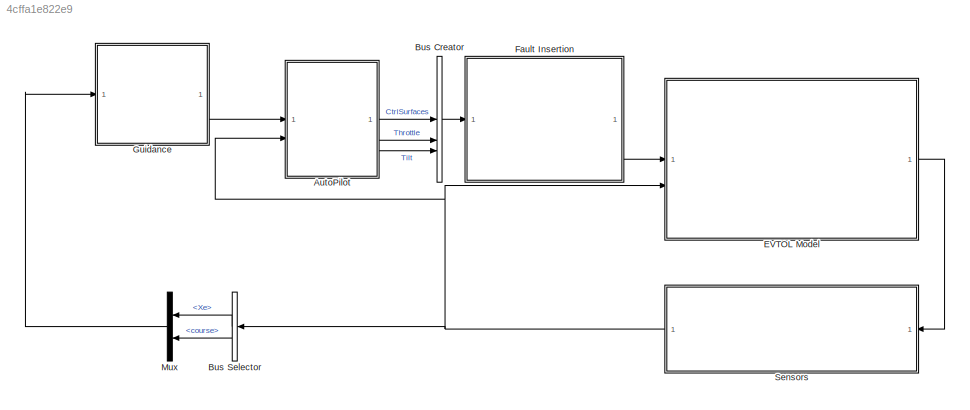
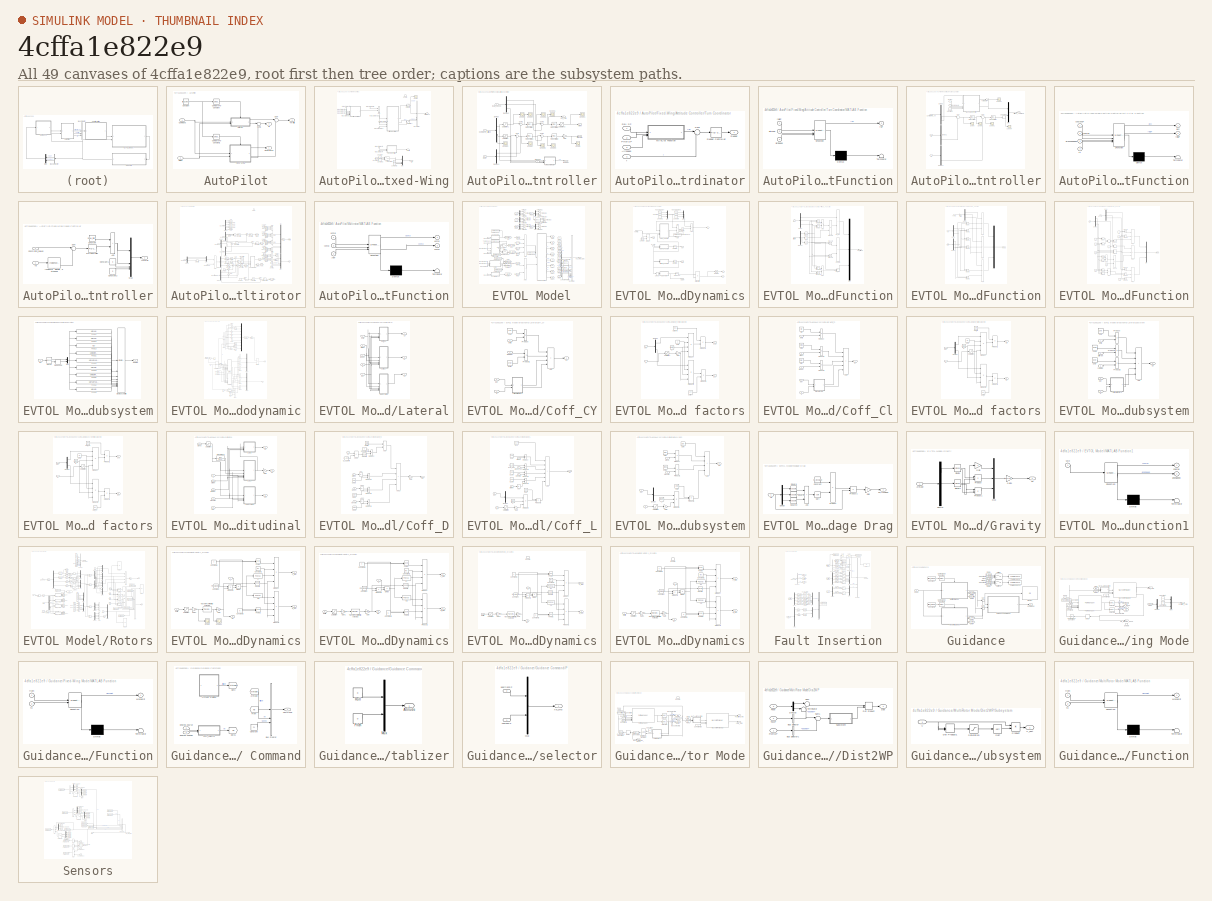
[diagram: thumbnail index - all 49 canvases of the model, root first then tree order]
MODEL slx_4cffa1e822e9
KIND model
CONFIG AbsTol = auto
CONFIG EnableMultiTasking = off
CONFIG FixedStep = 5e-3
CONFIG MaxStep = auto
CONFIG MinStep = auto
CONFIG RelTol = 1e-3
CONFIG SampleTimeConstraint = Unconstrained
CONFIG SolverName = ode4
CONFIG StartTime = 0.0
CONFIG StopTime = 100
BLOCK [SubSystem] AutoPilot
BLOCK [Inport] AutoPilot/Command
BLOCK [Reference] AutoPilot/Compare To Constant  REF=simulink/Logic and Bit
Operations/Compare
To Constant
  SourceBlock = simulink/Logic and Bit\nOperations/Compare\nTo Constant
  SourceType = Compare To Constant
BLOCK [Reference] AutoPilot/Compare To Constant1  REF=simulink/Logic and Bit
Operations/Compare
To Constant
  SourceBlock = simulink/Logic and Bit\nOperations/Compare\nTo Constant
  SourceType = Compare To Constant
BLOCK [Constant] AutoPilot/Constant
  Value = flight_mode
BLOCK [Outport] AutoPilot/CtrlSurfaces
BLOCK [SubSystem] AutoPilot/Fixed-Wing
BLOCK [Sum] AutoPilot/Fixed-Wing/Add
  IconShape = rectangular
BLOCK [SubSystem] AutoPilot/Fixed-Wing/Attitude Controller
BLOCK [Outport] AutoPilot/Fixed-Wing/Attitude Controller/Aileron
  Port = 2
BLOCK [Inport] AutoPilot/Fixed-Wing/Attitude Controller/Airspeed
  Port = 4
BLOCK [Inport] AutoPilot/Fixed-Wing/Attitude Controller/Command_Attitude
BLOCK [Demux] AutoPilot/Fixed-Wing/Attitude Controller/Demux
  Outputs = 2
BLOCK [Demux] AutoPilot/Fixed-Wing/Attitude Controller/Demux1
  Outputs = 3
BLOCK [Demux] AutoPilot/Fixed-Wing/Attitude Controller/Demux2
  Outputs = 3
BLOCK [Outport] AutoPilot/Fixed-Wing/Attitude Controller/Elevator
BLOCK [Inport] AutoPilot/Fixed-Wing/Attitude Controller/Euler
  Port = 2
BLOCK [Inport] AutoPilot/Fixed-Wing/Attitude Controller/Euler_Speed
  Port = 3
BLOCK [Gain] AutoPilot/Fixed-Wing/Attitude Controller/Gain
  Gain = -1
BLOCK [Reference] AutoPilot/Fixed-Wing/Attitude Controller/PID Controller  REF=slpidlib/PID Controller
  LibrarySourceBlock = simulink/Continuous/PID Controller
  SourceBlock = slpidlib/PID Controller
  SourceType = PID 1dof
BLOCK [Reference] AutoPilot/Fixed-Wing/Attitude Controller/PID Controller1  REF=slpidlib/PID Controller
  LibrarySourceBlock = simulink/Continuous/PID Controller
  SourceBlock = slpidlib/PID Controller
  SourceType = PID 1dof
BLOCK [Reference] AutoPilot/Fixed-Wing/Attitude Controller/PID Controller2  REF=slpidlib/PID Controller
  LibrarySourceBlock = simulink/Continuous/PID Controller
  SourceBlock = slpidlib/PID Controller
  SourceType = PID 1dof
BLOCK [Reference] AutoPilot/Fixed-Wing/Attitude Controller/PID Controller3  REF=slpidlib/PID Controller
  LibrarySourceBlock = simulink/Continuous/PID Controller
  SourceBlock = slpidlib/PID Controller
  SourceType = PID 1dof
BLOCK [Outport] AutoPilot/Fixed-Wing/Attitude Controller/Rudder
  Port = 3
BLOCK [Saturate] AutoPilot/Fixed-Wing/Attitude Controller/Saturation
  LowerLimit = -0.18
  UpperLimit = 0.18
BLOCK [Saturate] AutoPilot/Fixed-Wing/Attitude Controller/Saturation1
  LowerLimit = -0.7
  UpperLimit = 0.7
BLOCK [Saturate] AutoPilot/Fixed-Wing/Attitude Controller/Saturation2
  LowerLimit = -0.3
  UpperLimit = 0.3
BLOCK [Scope] AutoPilot/Fixed-Wing/Attitude Controller/Scope
  Floating = off
  NumInputPorts = 1
  ScopeSpecificationString = Simulink.scopes.TimeScopeBlockCfg('CurrentConfiguration', extmgr.ConfigurationSet(extmgr.Configuration('Core','General UI',true),extmgr.Configuration('Core','Source UI',true),extmgr.Configuration('Sources','WiredSimulink',true,'DataLoggingVariableName','ScopeData1'),extmgr.Configuration('Visuals','Time Domain',true,'SerializedDisplays',{struct('MinYLimReal','-0.46155','MaxYLimReal','0.18093','YLab...<+1392ch>
BLOCK [Scope] AutoPilot/Fixed-Wing/Attitude Controller/Scope1
  Floating = off
  NumInputPorts = 1
  ScopeSpecificationString = Simulink.scopes.TimeScopeBlockCfg('CurrentConfiguration', extmgr.ConfigurationSet(extmgr.Configuration('Core','General UI',true),extmgr.Configuration('Core','Source UI',true),extmgr.Configuration('Sources','WiredSimulink',true,'DataLoggingVariableName','ScopeData2'),extmgr.Configuration('Visuals','Time Domain',true,'SerializedDisplays',{struct('MinYLimReal','-0.375','MaxYLimReal','0.375','YLabelRe...<+1358ch>
BLOCK [Scope] AutoPilot/Fixed-Wing/Attitude Controller/Scope2
  Floating = off
  NumInputPorts = 1
  ScopeSpecificationString = Simulink.scopes.TimeScopeBlockCfg('CurrentConfiguration', extmgr.ConfigurationSet(extmgr.Configuration('Core','General UI',true),extmgr.Configuration('Core','Source UI',true),extmgr.Configuration('Sources','WiredSimulink',true,'DataLoggingVariableName','ScopeData7'),extmgr.Configuration('Visuals','Time Domain',true,'SerializedDisplays',{struct('MinYLimReal','-0.375','MaxYLimReal','0.375','YLabelRe...<+1401ch>
BLOCK [Scope] AutoPilot/Fixed-Wing/Attitude Controller/Scope3
  Floating = off
  NumInputPorts = 1
  ScopeSpecificationString = Simulink.scopes.TimeScopeBlockCfg('CurrentConfiguration', extmgr.ConfigurationSet(extmgr.Configuration('Core','General UI',true),extmgr.Configuration('Core','Source UI',true),extmgr.Configuration('Sources','WiredSimulink',true,'DataLoggingVariableName','ScopeData2'),extmgr.Configuration('Visuals','Time Domain',true,'SerializedDisplays',{struct('MinYLimReal','-0.522','MaxYLimReal','0.51531','YLabel...<+1409ch>
BLOCK [Scope] AutoPilot/Fixed-Wing/Attitude Controller/Scope4
  Floating = off
  NumInputPorts = 1
  ScopeSpecificationString = Simulink.scopes.TimeScopeBlockCfg('CurrentConfiguration', extmgr.ConfigurationSet(extmgr.Configuration('Core','General UI',true),extmgr.Configuration('Core','Source UI',true),extmgr.Configuration('Sources','WiredSimulink',true,'DataLoggingVariableName','ScopeData3'),extmgr.Configuration('Visuals','Time Domain',true,'SerializedDisplays',{struct('MinYLimReal','-0.522','MaxYLimReal','0.51531','YLabel...<+1402ch>
BLOCK [Scope] AutoPilot/Fixed-Wing/Attitude Controller/Scope5
  Floating = off
  NumInputPorts = 1
  ScopeSpecificationString = Simulink.scopes.TimeScopeBlockCfg('CurrentConfiguration', extmgr.ConfigurationSet(extmgr.Configuration('Core','General UI',true),extmgr.Configuration('Core','Source UI',true),extmgr.Configuration('Sources','WiredSimulink',true,'DataLoggingVariableName','ScopeData4'),extmgr.Configuration('Visuals','Time Domain',true,'SerializedDisplays',{struct('MinYLimReal','-1.53463','MaxYLimReal','1.53463','YLab...<+1420ch>
BLOCK [Scope] AutoPilot/Fixed-Wing/Attitude Controller/Scope6
  Floating = off
  NumInputPorts = 1
  ScopeSpecificationString = Simulink.scopes.TimeScopeBlockCfg('CurrentConfiguration', extmgr.ConfigurationSet(extmgr.Configuration('Core','General UI',true),extmgr.Configuration('Core','Source UI',true),extmgr.Configuration('Sources','WiredSimulink',true,'DataLoggingVariableName','ScopeData5'),extmgr.Configuration('Visuals','Time Domain',true,'SerializedDisplays',{struct('MinYLimReal','-23.42466','MaxYLimReal','13.1658','YLa...<+1414ch>
BLOCK [Scope] AutoPilot/Fixed-Wing/Attitude Controller/Scope7
  Floating = off
  NumInputPorts = 1
  ScopeSpecificationString = Simulink.scopes.TimeScopeBlockCfg('CurrentConfiguration', extmgr.ConfigurationSet(extmgr.Configuration('Core','General UI',true),extmgr.Configuration('Core','Source UI',true),extmgr.Configuration('Sources','WiredSimulink',true,'DataLoggingVariableName','ScopeData3'),extmgr.Configuration('Visuals','Time Domain',true,'SerializedDisplays',{struct('MinYLimReal','-0.375','MaxYLimReal','0.375','YLabelRe...<+1397ch>
BLOCK [Scope] AutoPilot/Fixed-Wing/Attitude Controller/Scope8
  Floating = off
  NumInputPorts = 1
  ScopeSpecificationString = Simulink.scopes.TimeScopeBlockCfg('CurrentConfiguration', extmgr.ConfigurationSet(extmgr.Configuration('Core','General UI',true),extmgr.Configuration('Core','Source UI',true),extmgr.Configuration('Sources','WiredSimulink',true,'DataLoggingVariableName','ScopeData4'),extmgr.Configuration('Visuals','Time Domain',true,'SerializedDisplays',{struct('MinYLimReal','-1.18155','MaxYLimReal','2.46778','YLab...<+1422ch>
BLOCK [Scope] AutoPilot/Fixed-Wing/Attitude Controller/Scope9
  Floating = off
  NumInputPorts = 1
  ScopeSpecificationString = Simulink.scopes.TimeScopeBlockCfg('CurrentConfiguration', extmgr.ConfigurationSet(extmgr.Configuration('Core','General UI',true),extmgr.Configuration('Core','Source UI',true),extmgr.Configuration('Sources','WiredSimulink',true,'DataLoggingVariableName','ScopeData5'),extmgr.Configuration('Visuals','Time Domain',true,'SerializedDisplays',{struct('MinYLimReal','-1.13727','MaxYLimReal','2.46286','YLab...<+1410ch>
BLOCK [Sum] AutoPilot/Fixed-Wing/Attitude Controller/Sum
  Inputs = |+-
BLOCK [Sum] AutoPilot/Fixed-Wing/Attitude Controller/Sum1
  Inputs = |+-
BLOCK [Sum] AutoPilot/Fixed-Wing/Attitude Controller/Sum2
  Inputs = |+-
BLOCK [Sum] AutoPilot/Fixed-Wing/Attitude Controller/Sum3
  Inputs = |+-
BLOCK [SubSystem] AutoPilot/Fixed-Wing/Attitude Controller/Turn Coordinator
BLOCK [Inport] AutoPilot/Fixed-Wing/Attitude Controller/Turn Coordinator/Airspeed
  Port = 3
BLOCK [SubSystem] AutoPilot/Fixed-Wing/Attitude Controller/Turn Coordinator/MATLAB Function
  ErrorFcn = Stateflow.Translate.translate
  PermitHierarchicalResolution = ExplicitOnly
  SFBlockType = MATLAB Function
  TreatAsAtomicUnit = on
BLOCK [Demux] AutoPilot/Fixed-Wing/Attitude Controller/Turn Coordinator/MATLAB Function/ Demux 
  Outputs = 1
BLOCK [S-Function] AutoPilot/Fixed-Wing/Attitude Controller/Turn Coordinator/MATLAB Function/ SFunction 
  EnableBusSupport = on
  FunctionName = sf_sfun
  PortCounts = [3 2]
  SFcnIsStateOwnerBlock = off
  SFunctionDeploymentMode = off
  Tag = Stateflow S-Function 13
BLOCK [Terminator] AutoPilot/Fixed-Wing/Attitude Controller/Turn Coordinator/MATLAB Function/ Terminator 
BLOCK [Inport] AutoPilot/Fixed-Wing/Attitude Controller/Turn Coordinator/MATLAB Function/airSpeed
  Port = 3
BLOCK [Inport] AutoPilot/Fixed-Wing/Attitude Controller/Turn Coordinator/MATLAB Function/pitchSP
  Port = 2
BLOCK [Outport] AutoPilot/Fixed-Wing/Attitude Controller/Turn Coordinator/MATLAB Function/rSP
BLOCK [Inport] AutoPilot/Fixed-Wing/Attitude Controller/Turn Coordinator/MATLAB Function/rollSP
BLOCK [Inport] AutoPilot/Fixed-Wing/Attitude Controller/Turn Coordinator/Pitch SP
  Port = 2
BLOCK [Inport] AutoPilot/Fixed-Wing/Attitude Controller/Turn Coordinator/Roll SP
BLOCK [Outport] AutoPilot/Fixed-Wing/Attitude Controller/Turn Coordinator/Rudder
BLOCK [Reference] AutoPilot/Fixed-Wing/Attitude Controller/Turn Coordinator/Rudder Controller  REF=slpidlib/PID Controller
  SourceBlock = slpidlib/PID Controller
  SourceType = PID 1dof
BLOCK [Sum] AutoPilot/Fixed-Wing/Attitude Controller/Turn Coordinator/Sum
  Inputs = |+-
BLOCK [Inport] AutoPilot/Fixed-Wing/Attitude Controller/Turn Coordinator/r
  Port = 4
BLOCK [Outport] AutoPilot/Fixed-Wing/Attitude Controller/phi_cmd
  Port = 4
BLOCK [BusCreator] AutoPilot/Fixed-Wing/Bus Creator
  DisplayOption = bar
  InheritFromInputs = on
  Inputs = 3
BLOCK [Constant] AutoPilot/Fixed-Wing/Constant
  Value = pi/2
BLOCK [Constant] AutoPilot/Fixed-Wing/Constant1
  Value = 0
BLOCK [Constant] AutoPilot/Fixed-Wing/Constant2
  Value = 0
BLOCK [Constant] AutoPilot/Fixed-Wing/Constant3
  Value = 0
BLOCK [Constant] AutoPilot/Fixed-Wing/Constant4
  Value = flight_mode
BLOCK [Outport] AutoPilot/Fixed-Wing/CtrlSurfaces
BLOCK [EnablePort] AutoPilot/Fixed-Wing/Enable
BLOCK [Inport] AutoPilot/Fixed-Wing/In Bus Element1
  Port = 2
BLOCK [Inport] AutoPilot/Fixed-Wing/In Bus Element10
  Port = 2
BLOCK [Inport] AutoPilot/Fixed-Wing/In Bus Element11
  Port = 2
BLOCK [Inport] AutoPilot/Fixed-Wing/In Bus Element2
  Port = 2
BLOCK [Inport] AutoPilot/Fixed-Wing/In Bus Element3
BLOCK [Inport] AutoPilot/Fixed-Wing/In Bus Element4
  Port = 2
BLOCK [Inport] AutoPilot/Fixed-Wing/In Bus Element5
BLOCK [Inport] AutoPilot/Fixed-Wing/In Bus Element6
  Port = 2
BLOCK [Inport] AutoPilot/Fixed-Wing/In Bus Element7
  Port = 2
BLOCK [Inport] AutoPilot/Fixed-Wing/In Bus Element8
BLOCK [Inport] AutoPilot/Fixed-Wing/In Bus Element9
  Port = 2
BLOCK [Mux] AutoPilot/Fixed-Wing/Mux
  DisplayOption = bar
BLOCK [SubSystem] AutoPilot/Fixed-Wing/Position Controller
BLOCK [Outport] AutoPilot/Fixed-Wing/Position Controller/Attitude_command
BLOCK [Inport] AutoPilot/Fixed-Wing/Position Controller/Command_Xe
BLOCK [Constant] AutoPilot/Fixed-Wing/Position Controller/Constant
  Value = 60
BLOCK [Inport] AutoPilot/Fixed-Wing/Position Controller/Course
  Port = 5
BLOCK [Demux] AutoPilot/Fixed-Wing/Position Controller/Demux
BLOCK [Demux] AutoPilot/Fixed-Wing/Position Controller/Demux1
  Outputs = 3
BLOCK [Demux] AutoPilot/Fixed-Wing/Position Controller/Demux2
  Outputs = 3
BLOCK [Inport] AutoPilot/Fixed-Wing/Position Controller/GndSpeed
  Port = 4
BLOCK [SubSystem] AutoPilot/Fixed-Wing/Position Controller/MATLAB Function
  ErrorFcn = Stateflow.Translate.translate
  PermitHierarchicalResolution = ExplicitOnly
  SFBlockType = MATLAB Function
  TreatAsAtomicUnit = on
BLOCK [Demux] AutoPilot/Fixed-Wing/Position Controller/MATLAB Function/ Demux 
  Outputs = 1
BLOCK [S-Function] AutoPilot/Fixed-Wing/Position Controller/MATLAB Function/ SFunction 
  EnableBusSupport = on
  FunctionName = sf_sfun
  PortCounts = [4 3]
  SFcnIsStateOwnerBlock = off
  SFunctionDeploymentMode = off
  Tag = Stateflow S-Function 2
BLOCK [Terminator] AutoPilot/Fixed-Wing/Position Controller/MATLAB Function/ Terminator 
BLOCK [Inport] AutoPilot/Fixed-Wing/Position Controller/MATLAB Function/L1
  Port = 4
BLOCK [Inport] AutoPilot/Fixed-Wing/Position Controller/MATLAB Function/course
  Port = 2
BLOCK [Inport] AutoPilot/Fixed-Wing/Position Controller/MATLAB Function/courseSP
BLOCK [Inport] AutoPilot/Fixed-Wing/Position Controller/MATLAB Function/groundSpeed
  Port = 3
BLOCK [Outport] AutoPilot/Fixed-Wing/Position Controller/MATLAB Function/lacc
BLOCK [Outport] AutoPilot/Fixed-Wing/Position Controller/MATLAB Function/rollSP
  Port = 2
BLOCK [Mux] AutoPilot/Fixed-Wing/Position Controller/Mux
  DisplayOption = bar
  Inputs = 2
BLOCK [Reference] AutoPilot/Fixed-Wing/Position Controller/PID Controller  REF=slpidlib/PID Controller
  LibrarySourceBlock = simulink/Continuous/PID Controller
  SourceBlock = slpidlib/PID Controller
  SourceType = PID 1dof
BLOCK [Reference] AutoPilot/Fixed-Wing/Position Controller/PID Controller1  REF=slpidlib/PID Controller
  LibrarySourceBlock = simulink/Continuous/PID Controller
  SourceBlock = slpidlib/PID Controller
  SourceType = PID 1dof
BLOCK [Scope] AutoPilot/Fixed-Wing/Position Controller/Scope
  Floating = off
  NumInputPorts = 1
  ScopeSpecificationString = Simulink.scopes.TimeScopeBlockCfg('CurrentConfiguration', extmgr.ConfigurationSet(extmgr.Configuration('Core','General UI',true),extmgr.Configuration('Core','Source UI',true),extmgr.Configuration('Sources','WiredSimulink',true,'DataLoggingVariableName','ScopeData3'),extmgr.Configuration('Visuals','Time Domain',true,'SerializedDisplays',{struct('MinYLimReal','-198.38108','MaxYLimReal','26.83558','Y...<+1403ch>
BLOCK [Scope] AutoPilot/Fixed-Wing/Position Controller/Scope1
  Floating = off
  NumInputPorts = 1
  ScopeSpecificationString = Simulink.scopes.TimeScopeBlockCfg('CurrentConfiguration', extmgr.ConfigurationSet(extmgr.Configuration('Core','General UI',true),extmgr.Configuration('Core','Source UI',true),extmgr.Configuration('Sources','WiredSimulink',true,'DataLoggingVariableName','ScopeData5'),extmgr.Configuration('Visuals','Time Domain',true,'SerializedDisplays',{struct('MinYLimReal','-0.61494','MaxYLimReal','0.59482','YLab...<+1381ch>
BLOCK [Scope] AutoPilot/Fixed-Wing/Position Controller/Scope2
  Floating = off
  NumInputPorts = 1
  ScopeSpecificationString = Simulink.scopes.TimeScopeBlockCfg('CurrentConfiguration', extmgr.ConfigurationSet(extmgr.Configuration('Core','General UI',true),extmgr.Configuration('Core','Source UI',true),extmgr.Configuration('Sources','WiredSimulink',true,'DataLoggingVariableName','ScopeData1'),extmgr.Configuration('Visuals','Time Domain',true,'SerializedDisplays',{struct('MinYLimReal','-3.71566','MaxYLimReal','2.3427','YLabe...<+1361ch>
BLOCK [Scope] AutoPilot/Fixed-Wing/Position Controller/Scope3
  Floating = off
  NumInputPorts = 1
  ScopeSpecificationString = Simulink.scopes.TimeScopeBlockCfg('CurrentConfiguration', extmgr.ConfigurationSet(extmgr.Configuration('Core','General UI',true),extmgr.Configuration('Core','Source UI',true),extmgr.Configuration('Sources','WiredSimulink',true,'DataLoggingVariableName','ScopeData1'),extmgr.Configuration('Visuals','Time Domain',true,'SerializedDisplays',{struct('MinYLimReal','-3.5907','MaxYLimReal','2.31626','YLabe...<+1398ch>
BLOCK [Scope] AutoPilot/Fixed-Wing/Position Controller/Scope4
  Floating = off
  NumInputPorts = 1
  ScopeSpecificationString = Simulink.scopes.TimeScopeBlockCfg('CurrentConfiguration', extmgr.ConfigurationSet(extmgr.Configuration('Core','General UI',true),extmgr.Configuration('Core','Source UI',true),extmgr.Configuration('Sources','WiredSimulink',true,'DataLoggingVariableName','ScopeData2'),extmgr.Configuration('Visuals','Time Domain',true,'SerializedDisplays',{struct('MinYLimReal','-0.21718','MaxYLimReal','0.2178','YLabe...<+1366ch>
BLOCK [Sum] AutoPilot/Fixed-Wing/Position Controller/Sum
  Inputs = |+-
BLOCK [Sum] AutoPilot/Fixed-Wing/Position Controller/Sum1
  Inputs = |+-
BLOCK [Terminator] AutoPilot/Fixed-Wing/Position Controller/Terminator
BLOCK [UnaryMinus] AutoPilot/Fixed-Wing/Position Controller/Unary Minus
BLOCK [Inport] AutoPilot/Fixed-Wing/Position Controller/Ve
  Port = 3
BLOCK [Inport] AutoPilot/Fixed-Wing/Position Controller/Xe
  Port = 2
BLOCK [Saturate] AutoPilot/Fixed-Wing/Saturation
  LowerLimit = -20*pi/180
  UpperLimit = 20*pi/180
BLOCK [Saturate] AutoPilot/Fixed-Wing/Saturation1
  LowerLimit = -30*pi/180
  UpperLimit = 30*pi/180
BLOCK [Scope] AutoPilot/Fixed-Wing/Scope
  Floating = off
  NumInputPorts = 1
  ScopeSpecificationString = Simulink.scopes.TimeScopeBlockCfg('CurrentConfiguration', extmgr.ConfigurationSet(extmgr.Configuration('Core','General UI',true),extmgr.Configuration('Core','Source UI',true),extmgr.Configuration('Sources','WiredSimulink',true,'DataLoggingVariableName','ScopeData4'),extmgr.Configuration('Visuals','Time Domain',true,'SerializedDisplays',{struct('MinYLimReal','-0.40728','MaxYLimReal','0.1749','YLabe...<+1365ch>
BLOCK [SubSystem] AutoPilot/Fixed-Wing/Speed Controller
BLOCK [Sum] AutoPilot/Fixed-Wing/Speed Controller/Add
  IconShape = rectangular
BLOCK [Inport] AutoPilot/Fixed-Wing/Speed Controller/Command_Speed
BLOCK [Constant] AutoPilot/Fixed-Wing/Speed Controller/Constant
  Value = RPM1_init/10000
BLOCK [Constant] AutoPilot/Fixed-Wing/Speed Controller/Constant1
  Value = 0
BLOCK [Constant] AutoPilot/Fixed-Wing/Speed Controller/Constant2
  Value = 0
BLOCK [Reference] AutoPilot/Fixed-Wing/Speed Controller/Incidence, Sideslip, & Airspeed  REF=aerolibasang/Incidence, Sideslip,
& Airspeed
  SourceBlock = aerolibasang/Incidence, Sideslip,\n& Airspeed
  SourceType = Incidence,Sideslip,&Airspeed
BLOCK [Mux] AutoPilot/Fixed-Wing/Speed Controller/Mux
  DisplayOption = bar
BLOCK [Reference] AutoPilot/Fixed-Wing/Speed Controller/PID Controller  REF=slpidlib/PID Controller
  LibrarySourceBlock = simulink/Continuous/PID Controller
  SourceBlock = slpidlib/PID Controller
  SourceType = PID 1dof
BLOCK [Sum] AutoPilot/Fixed-Wing/Speed Controller/Sum
  Inputs = |+-
BLOCK [Inport] AutoPilot/Fixed-Wing/Speed Controller/Vb
  Port = 2
BLOCK [Outport] AutoPilot/Fixed-Wing/Speed Controller/throttle
BLOCK [Switch] AutoPilot/Fixed-Wing/Switch
  Criteria = u2 > Threshold
  InputSameDT = off
  SaturateOnIntegerOverflow = off
BLOCK [Outport] AutoPilot/Fixed-Wing/Throttle
  Port = 2
BLOCK [Outport] AutoPilot/Fixed-Wing/Tilt
  Port = 3
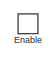
[diagram: AutoPilot/Multirotor - part 1/3, top center region]
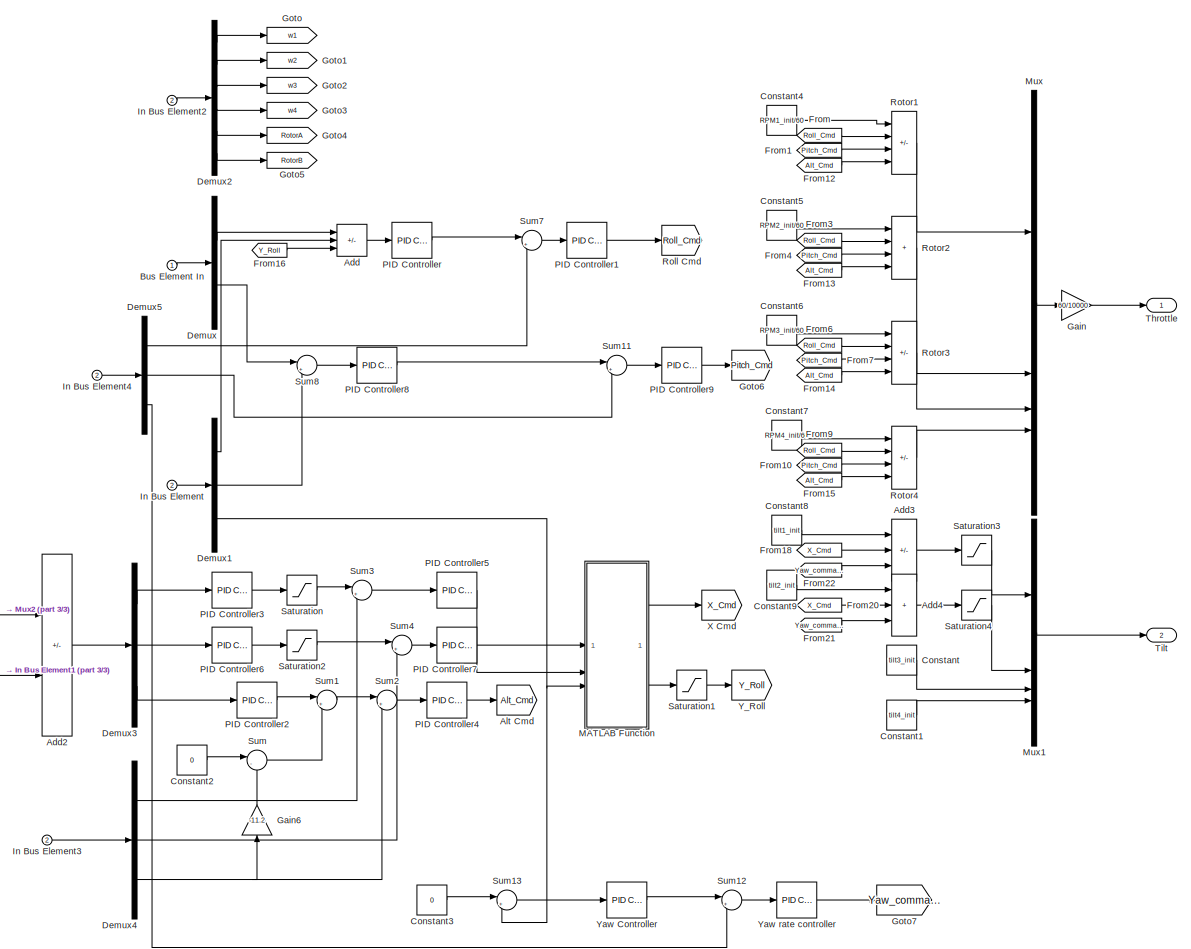
[diagram: AutoPilot/Multirotor - part 2/3, center side, full height]
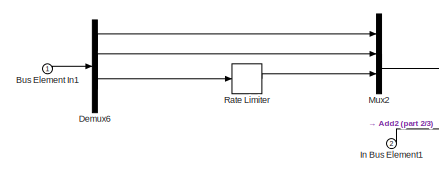
[diagram: AutoPilot/Multirotor - part 3/3, bottom left region]
BLOCK [SubSystem] AutoPilot/Multirotor
BLOCK [Sum] AutoPilot/Multirotor/Add
  IconShape = rectangular
  Inputs = +-+
BLOCK [Sum] AutoPilot/Multirotor/Add2
  IconShape = rectangular
  Inputs = +-
BLOCK [Sum] AutoPilot/Multirotor/Add3
  IconShape = rectangular
  Inputs = ++-
BLOCK [Sum] AutoPilot/Multirotor/Add4
  IconShape = rectangular
  Inputs = +++
BLOCK [Goto] AutoPilot/Multirotor/Alt Cmd
  GotoTag = Alt_Cmd
BLOCK [Inport] AutoPilot/Multirotor/Bus Element In
BLOCK [Inport] AutoPilot/Multirotor/Bus Element In1
BLOCK [Constant] AutoPilot/Multirotor/Constant
  Value = tilt3_init
BLOCK [Constant] AutoPilot/Multirotor/Constant1
  Value = tilt4_init
BLOCK [Constant] AutoPilot/Multirotor/Constant2
  Value = 0
BLOCK [Constant] AutoPilot/Multirotor/Constant3
  Value = 0
BLOCK [Constant] AutoPilot/Multirotor/Constant4
  Value = RPM1_init/60
BLOCK [Constant] AutoPilot/Multirotor/Constant5
  Value = RPM2_init/60
BLOCK [Constant] AutoPilot/Multirotor/Constant6
  Value = RPM3_init/60
BLOCK [Constant] AutoPilot/Multirotor/Constant7
  Value = RPM4_init/60
BLOCK [Constant] AutoPilot/Multirotor/Constant8
  Value = tilt1_init
BLOCK [Constant] AutoPilot/Multirotor/Constant9
  Value = tilt2_init
BLOCK [Demux] AutoPilot/Multirotor/Demux
  Outputs = 2
BLOCK [Demux] AutoPilot/Multirotor/Demux1
  Outputs = 3
BLOCK [Demux] AutoPilot/Multirotor/Demux2
  Outputs = 6
BLOCK [Demux] AutoPilot/Multirotor/Demux3
  Outputs = 3
BLOCK [Demux] AutoPilot/Multirotor/Demux4
  Outputs = 3
BLOCK [Demux] AutoPilot/Multirotor/Demux5
  Outputs = 3
BLOCK [Demux] AutoPilot/Multirotor/Demux6
BLOCK [EnablePort] AutoPilot/Multirotor/Enable
BLOCK [From] AutoPilot/Multirotor/From
  GotoTag = Roll_Cmd
BLOCK [From] AutoPilot/Multirotor/From1
  GotoTag = Pitch_Cmd
BLOCK [From] AutoPilot/Multirotor/From10
  GotoTag = Pitch_Cmd
BLOCK [From] AutoPilot/Multirotor/From12
  GotoTag = Alt_Cmd
BLOCK [From] AutoPilot/Multirotor/From13
  GotoTag = Alt_Cmd
BLOCK [From] AutoPilot/Multirotor/From14
  GotoTag = Alt_Cmd
BLOCK [From] AutoPilot/Multirotor/From15
  GotoTag = Alt_Cmd
BLOCK [From] AutoPilot/Multirotor/From16
  GotoTag = Y_Roll
BLOCK [From] AutoPilot/Multirotor/From18
  GotoTag = X_Cmd
BLOCK [From] AutoPilot/Multirotor/From20
  GotoTag = X_Cmd
BLOCK [From] AutoPilot/Multirotor/From21
  GotoTag = Yaw_command
BLOCK [From] AutoPilot/Multirotor/From22
  GotoTag = Yaw_command
BLOCK [From] AutoPilot/Multirotor/From3
  GotoTag = Roll_Cmd
BLOCK [From] AutoPilot/Multirotor/From4
  GotoTag = Pitch_Cmd
BLOCK [From] AutoPilot/Multirotor/From6
  GotoTag = Roll_Cmd
BLOCK [From] AutoPilot/Multirotor/From7
  GotoTag = Pitch_Cmd
BLOCK [From] AutoPilot/Multirotor/From9
  GotoTag = Roll_Cmd
BLOCK [Gain] AutoPilot/Multirotor/Gain
  Gain = 60/10000
BLOCK [Gain] AutoPilot/Multirotor/Gain6
  Gain = -11.2
  NameLocation = right
BLOCK [Goto] AutoPilot/Multirotor/Goto
  GotoTag = w1
BLOCK [Goto] AutoPilot/Multirotor/Goto1
  GotoTag = w2
BLOCK [Goto] AutoPilot/Multirotor/Goto2
  GotoTag = w3
BLOCK [Goto] AutoPilot/Multirotor/Goto3
  GotoTag = w4
BLOCK [Goto] AutoPilot/Multirotor/Goto4
  GotoTag = RotorA
BLOCK [Goto] AutoPilot/Multirotor/Goto5
  GotoTag = RotorB
BLOCK [Goto] AutoPilot/Multirotor/Goto6
  GotoTag = Pitch_Cmd
BLOCK [Goto] AutoPilot/Multirotor/Goto7
  GotoTag = Yaw_command
BLOCK [Inport] AutoPilot/Multirotor/In Bus Element
  Port = 2
BLOCK [Inport] AutoPilot/Multirotor/In Bus Element1
  Port = 2
BLOCK [Inport] AutoPilot/Multirotor/In Bus Element2
  Port = 2
BLOCK [Inport] AutoPilot/Multirotor/In Bus Element3
  Port = 2
BLOCK [Inport] AutoPilot/Multirotor/In Bus Element4
  Port = 2
BLOCK [SubSystem] AutoPilot/Multirotor/MATLAB Function
  ErrorFcn = Stateflow.Translate.translate
  PermitHierarchicalResolution = ExplicitOnly
  SFBlockType = MATLAB Function
  TreatAsAtomicUnit = on
BLOCK [Demux] AutoPilot/Multirotor/MATLAB Function/ Demux 
  Outputs = 1
BLOCK [S-Function] AutoPilot/Multirotor/MATLAB Function/ SFunction 
  EnableBusSupport = on
  FunctionName = sf_sfun
  PortCounts = [3 3]
  SFcnIsStateOwnerBlock = off
  SFunctionDeploymentMode = off
  Tag = Stateflow S-Function 4
BLOCK [Terminator] AutoPilot/Multirotor/MATLAB Function/ Terminator 
BLOCK [Outport] AutoPilot/Multirotor/MATLAB Function/ucmd
BLOCK [Outport] AutoPilot/Multirotor/MATLAB Function/vcmd
  Port = 2
BLOCK [Inport] AutoPilot/Multirotor/MATLAB Function/xcmd
BLOCK [Inport] AutoPilot/Multirotor/MATLAB Function/yaw
  Port = 3
BLOCK [Inport] AutoPilot/Multirotor/MATLAB Function/ycmd
  Port = 2
BLOCK [Mux] AutoPilot/Multirotor/Mux
  DisplayOption = bar
BLOCK [Mux] AutoPilot/Multirotor/Mux1
  DisplayOption = bar
BLOCK [Mux] AutoPilot/Multirotor/Mux2
  DisplayOption = bar
  Inputs = 3
BLOCK [Reference] AutoPilot/Multirotor/PID Controller  REF=slpidlib/PID Controller
  LibrarySourceBlock = simulink/Continuous/PID Controller
  SourceBlock = slpidlib/PID Controller
  SourceType = PID 1dof
BLOCK [Reference] AutoPilot/Multirotor/PID Controller1  REF=slpidlib/PID Controller
  LibrarySourceBlock = simulink/Continuous/PID Controller
  SourceBlock = slpidlib/PID Controller
  SourceType = PID 1dof
BLOCK [Reference] AutoPilot/Multirotor/PID Controller2  REF=slpidlib/PID Controller
  LibrarySourceBlock = simulink/Continuous/PID Controller
  SourceBlock = slpidlib/PID Controller
  SourceType = PID 1dof
BLOCK [Reference] AutoPilot/Multirotor/PID Controller3  REF=slpidlib/PID Controller
  LibrarySourceBlock = simulink/Continuous/PID Controller
  SourceBlock = slpidlib/PID Controller
  SourceType = PID 1dof
BLOCK [Reference] AutoPilot/Multirotor/PID Controller4  REF=slpidlib/PID Controller
  LibrarySourceBlock = simulink/Continuous/PID Controller
  SourceBlock = slpidlib/PID Controller
  SourceType = PID 1dof
BLOCK [Reference] AutoPilot/Multirotor/PID Controller5  REF=slpidlib/PID Controller
  LibrarySourceBlock = simulink/Continuous/PID Controller
  SourceBlock = slpidlib/PID Controller
  SourceType = PID 1dof
BLOCK [Reference] AutoPilot/Multirotor/PID Controller6  REF=slpidlib/PID Controller
  LibrarySourceBlock = simulink/Continuous/PID Controller
  SourceBlock = slpidlib/PID Controller
  SourceType = PID 1dof
BLOCK [Reference] AutoPilot/Multirotor/PID Controller7  REF=slpidlib/PID Controller
  LibrarySourceBlock = simulink/Continuous/PID Controller
  SourceBlock = slpidlib/PID Controller
  SourceType = PID 1dof
BLOCK [Reference] AutoPilot/Multirotor/PID Controller8  REF=slpidlib/PID Controller
  LibrarySourceBlock = simulink/Continuous/PID Controller
  SourceBlock = slpidlib/PID Controller
  SourceType = PID 1dof
BLOCK [Reference] AutoPilot/Multirotor/PID Controller9  REF=slpidlib/PID Controller
  LibrarySourceBlock = simulink/Continuous/PID Controller
  SourceBlock = slpidlib/PID Controller
  SourceType = PID 1dof
BLOCK [RateLimiter] AutoPilot/Multirotor/Rate Limiter
  FallingSlewLimit = -1000
  SampleTimeMode = inherited
BLOCK [Goto] AutoPilot/Multirotor/Roll Cmd
  GotoTag = Roll_Cmd
BLOCK [Sum] AutoPilot/Multirotor/Rotor1
  IconShape = rectangular
  Inputs = +-++
BLOCK [Sum] AutoPilot/Multirotor/Rotor2
  IconShape = rectangular
  Inputs = ++++
BLOCK [Sum] AutoPilot/Multirotor/Rotor3
  IconShape = rectangular
  Inputs = ++-+
BLOCK [Sum] AutoPilot/Multirotor/Rotor4
  IconShape = rectangular
  Inputs = +--+
BLOCK [Saturate] AutoPilot/Multirotor/Saturation
  LowerLimit = -5
  UpperLimit = 5
BLOCK [Saturate] AutoPilot/Multirotor/Saturation1
  LowerLimit = -0.4
  UpperLimit = 0.4
BLOCK [Saturate] AutoPilot/Multirotor/Saturation2
  LowerLimit = -5
  UpperLimit = 5
BLOCK [Saturate] AutoPilot/Multirotor/Saturation3
  LowerLimit = -45*pi/180
  UpperLimit = 45*pi/180
BLOCK [Saturate] AutoPilot/Multirotor/Saturation4
  LowerLimit = -45*pi/180
  UpperLimit = 45*pi/180
BLOCK [Sum] AutoPilot/Multirotor/Sum
  Inputs = |--
BLOCK [Sum] AutoPilot/Multirotor/Sum1
  Inputs = |++
BLOCK [Sum] AutoPilot/Multirotor/Sum11
  Inputs = |+-
BLOCK [Sum] AutoPilot/Multirotor/Sum12
  Inputs = |+-
BLOCK [Sum] AutoPilot/Multirotor/Sum13
  Inputs = |+-
BLOCK [Sum] AutoPilot/Multirotor/Sum2
  Inputs = |+-
BLOCK [Sum] AutoPilot/Multirotor/Sum3
  Inputs = |+-
BLOCK [Sum] AutoPilot/Multirotor/Sum4
  Inputs = |+-
BLOCK [Sum] AutoPilot/Multirotor/Sum7
  Inputs = |+-
BLOCK [Sum] AutoPilot/Multirotor/Sum8
  Inputs = |+-
BLOCK [Outport] AutoPilot/Multirotor/Throttle
BLOCK [Outport] AutoPilot/Multirotor/Tilt
  Port = 2
BLOCK [Goto] AutoPilot/Multirotor/X Cmd
  GotoTag = X_Cmd
BLOCK [Goto] AutoPilot/Multirotor/Y_Roll
  GotoTag = Y_Roll
BLOCK [Reference] AutoPilot/Multirotor/Yaw Controller  REF=slpidlib/PID Controller
  LibrarySourceBlock = simulink/Continuous/PID Controller
  SourceBlock = slpidlib/PID Controller
  SourceType = PID 1dof
BLOCK [Reference] AutoPilot/Multirotor/Yaw rate controller  REF=slpidlib/PID Controller
  LibrarySourceBlock = simulink/Continuous/PID Controller
  SourceBlock = slpidlib/PID Controller
  SourceType = PID 1dof
BLOCK [Inport] AutoPilot/States
  Port = 2
BLOCK [Sum] AutoPilot/Sum
  Inputs = |++
BLOCK [Sum] AutoPilot/Sum1
  Inputs = |++
BLOCK [Outport] AutoPilot/Throttle
  Port = 2
BLOCK [Outport] AutoPilot/Tilt
  Port = 3
BLOCK [BusCreator] Bus Creator
  DisplayOption = bar
  InheritFromInputs = on
  Inputs = 3
BLOCK [BusSelector] Bus Selector
  OutputSignals = Xe,course
BLOCK [SubSystem] EVTOL Model
BLOCK [SubSystem] EVTOL Model/6DOF Dynamics
BLOCK [Outport] EVTOL Model/6DOF Dynamics/Abb
  Port = 7
BLOCK [Outport] EVTOL Model/6DOF Dynamics/Abe
  Port = 8
BLOCK [Sum] EVTOL Model/6DOF Dynamics/Add
  IconShape = rectangular
BLOCK [Sum] EVTOL Model/6DOF Dynamics/Add1
  IconShape = rectangular
BLOCK [SubSystem] EVTOL Model/6DOF Dynamics/Attitude_Function
BLOCK [Sum] EVTOL Model/6DOF Dynamics/Attitude_Function/Add
  IconShape = rectangular
BLOCK [Sum] EVTOL Model/6DOF Dynamics/Attitude_Function/Add1
  IconShape = rectangular
BLOCK [Trigonometry] EVTOL Model/6DOF Dynamics/Attitude_Function/Cos
  Operator = cos
BLOCK [Demux] EVTOL Model/6DOF Dynamics/Attitude_Function/Demux
  Outputs = 3
BLOCK [Demux] EVTOL Model/6DOF Dynamics/Attitude_Function/Demux1
  Outputs = 3
BLOCK [Mux] EVTOL Model/6DOF Dynamics/Attitude_Function/Mux
  DisplayOption = bar
  Inputs = 3
BLOCK [Product] EVTOL Model/6DOF Dynamics/Attitude_Function/Product
BLOCK [Product] EVTOL Model/6DOF Dynamics/Attitude_Function/Product1
BLOCK [Product] EVTOL Model/6DOF Dynamics/Attitude_Function/Product2
BLOCK [Product] EVTOL Model/6DOF Dynamics/Attitude_Function/Product3
BLOCK [Product] EVTOL Model/6DOF Dynamics/Attitude_Function/Product4
BLOCK [Product] EVTOL Model/6DOF Dynamics/Attitude_Function/Product5
BLOCK [Product] EVTOL Model/6DOF Dynamics/Attitude_Function/Product6
BLOCK [Trigonometry] EVTOL Model/6DOF Dynamics/Attitude_Function/SinCos
  Operator = sincos
BLOCK [Trigonometry] EVTOL Model/6DOF Dynamics/Attitude_Function/Tan
  Operator = tan
BLOCK [Inport] EVTOL Model/6DOF Dynamics/Attitude_Function/attitude
  Port = 2
BLOCK [Outport] EVTOL Model/6DOF Dynamics/Attitude_Function/dot_attitude
BLOCK [Sum] EVTOL Model/6DOF Dynamics/Attitude_Function/dot_phi
  IconShape = rectangular
BLOCK [Product] EVTOL Model/6DOF Dynamics/Attitude_Function/dot_psi
  Inputs = /*
BLOCK [Sum] EVTOL Model/6DOF Dynamics/Attitude_Function/dot_theta
  IconShape = rectangular
  Inputs = +-
BLOCK [Inport] EVTOL Model/6DOF Dynamics/Attitude_Function/pqr
BLOCK [Constant] EVTOL Model/6DOF Dynamics/Constant
  Value = aircraft_mass
BLOCK [Constant] EVTOL Model/6DOF Dynamics/Constant1
  Value = 0
BLOCK [Constant] EVTOL Model/6DOF Dynamics/Constant2
  Value = 0
BLOCK [Constant] EVTOL Model/6DOF Dynamics/Constant3
  Value = 0
BLOCK [Constant] EVTOL Model/6DOF Dynamics/Constant4
  Value = 0
BLOCK [Outport] EVTOL Model/6DOF Dynamics/DCMbe
  Port = 4
BLOCK [Outport] EVTOL Model/6DOF Dynamics/Euler
  Port = 3
BLOCK [Inport] EVTOL Model/6DOF Dynamics/F_Total
BLOCK [SubSystem] EVTOL Model/6DOF Dynamics/Force_Function
BLOCK [Demux] EVTOL Model/6DOF Dynamics/Force_Function/Demux
  Outputs = 3
BLOCK [Demux] EVTOL Model/6DOF Dynamics/Force_Function/Demux1
  Outputs = 3
BLOCK [Demux] EVTOL Model/6DOF Dynamics/Force_Function/Demux2
  Outputs = 3
BLOCK [Inport] EVTOL Model/6DOF Dynamics/Force_Function/F_Total
  Port = 2
BLOCK [Gain] EVTOL Model/6DOF Dynamics/Force_Function/Gain
  Gain = 1/aircraft_mass
BLOCK [Mux] EVTOL Model/6DOF Dynamics/Force_Function/Mux
  DisplayOption = bar
  Inputs = 3
BLOCK [Product] EVTOL Model/6DOF Dynamics/Force_Function/Product
BLOCK [Product] EVTOL Model/6DOF Dynamics/Force_Function/Product1
BLOCK [Product] EVTOL Model/6DOF Dynamics/Force_Function/Product2
BLOCK [Product] EVTOL Model/6DOF Dynamics/Force_Function/Product3
BLOCK [Product] EVTOL Model/6DOF Dynamics/Force_Function/Product4
BLOCK [Product] EVTOL Model/6DOF Dynamics/Force_Function/Product5
BLOCK [Inport] EVTOL Model/6DOF Dynamics/Force_Function/Vb
BLOCK [Outport] EVTOL Model/6DOF Dynamics/Force_Function/dot_Vb
BLOCK [Sum] EVTOL Model/6DOF Dynamics/Force_Function/dot_u
  IconShape = rectangular
  Inputs = ++-
BLOCK [Sum] EVTOL Model/6DOF Dynamics/Force_Function/dot_v
  IconShape = rectangular
  Inputs = ++-
BLOCK [Sum] EVTOL Model/6DOF Dynamics/Force_Function/dot_w
  IconShape = rectangular
  Inputs = ++-
BLOCK [Inport] EVTOL Model/6DOF Dynamics/Force_Function/pqr
  Port = 3
BLOCK [Integrator] EVTOL Model/6DOF Dynamics/Integrator
  InitialCondition = [init_u;init_v;init_w]
BLOCK [Integrator] EVTOL Model/6DOF Dynamics/Integrator1
  InitialCondition = [init_phi;init_theta;init_psi]
  WrapState = on
BLOCK [Integrator] EVTOL Model/6DOF Dynamics/Integrator2
  InitialCondition = [init_x;init_y;-init_h]
BLOCK [Integrator] EVTOL Model/6DOF Dynamics/Integrator3
  InitialCondition = [init_p;init_q;init_r]
BLOCK [Inport] EVTOL Model/6DOF Dynamics/M_Total
  Port = 2
BLOCK [Product] EVTOL Model/6DOF Dynamics/MatrixMultiply
  Multiplication = Matrix(*)
BLOCK [SubSystem] EVTOL Model/6DOF Dynamics/Moment_Function
BLOCK [Sum] EVTOL Model/6DOF Dynamics/Moment_Function/Add
  IconShape = rectangular
BLOCK [Sum] EVTOL Model/6DOF Dynamics/Moment_Function/Add1
  IconShape = rectangular
  Inputs = +-
BLOCK [Sum] EVTOL Model/6DOF Dynamics/Moment_Function/Add2
  IconShape = rectangular
  Inputs = +-
BLOCK [Demux] EVTOL Model/6DOF Dynamics/Moment_Function/Demux
  Outputs = 3
BLOCK [Demux] EVTOL Model/6DOF Dynamics/Moment_Function/Demux1
  Outputs = 3
BLOCK [Inport] EVTOL Model/6DOF Dynamics/Moment_Function/M_Total
BLOCK [Mux] EVTOL Model/6DOF Dynamics/Moment_Function/Mux
  DisplayOption = bar
  Inputs = 3
BLOCK [Product] EVTOL Model/6DOF Dynamics/Moment_Function/Product
BLOCK [Product] EVTOL Model/6DOF Dynamics/Moment_Function/Product1
BLOCK [Product] EVTOL Model/6DOF Dynamics/Moment_Function/Product10
BLOCK [Product] EVTOL Model/6DOF Dynamics/Moment_Function/Product11
BLOCK [Product] EVTOL Model/6DOF Dynamics/Moment_Function/Product12
BLOCK [Product] EVTOL Model/6DOF Dynamics/Moment_Function/Product2
BLOCK [Product] EVTOL Model/6DOF Dynamics/Moment_Function/Product3
BLOCK [Product] EVTOL Model/6DOF Dynamics/Moment_Function/Product4
BLOCK [Product] EVTOL Model/6DOF Dynamics/Moment_Function/Product5
  Inputs = 3
BLOCK [Product] EVTOL Model/6DOF Dynamics/Moment_Function/Product6
BLOCK [Product] EVTOL Model/6DOF Dynamics/Moment_Function/Product7
BLOCK [Product] EVTOL Model/6DOF Dynamics/Moment_Function/Product8
BLOCK [Product] EVTOL Model/6DOF Dynamics/Moment_Function/Product9
BLOCK [Math] EVTOL Model/6DOF Dynamics/Moment_Function/Square
  Operator = square
BLOCK [Math] EVTOL Model/6DOF Dynamics/Moment_Function/Square1
  Operator = square
BLOCK [Constant] EVTOL Model/6DOF Dynamics/Moment_Function/c1
  Value = c1
BLOCK [Constant] EVTOL Model/6DOF Dynamics/Moment_Function/c2
  Value = c2
BLOCK [Constant] EVTOL Model/6DOF Dynamics/Moment_Function/c3
  Value = c3
BLOCK [Constant] EVTOL Model/6DOF Dynamics/Moment_Function/c4
  Value = c4
BLOCK [Constant] EVTOL Model/6DOF Dynamics/Moment_Function/c5
  Value = c5
BLOCK [Constant] EVTOL Model/6DOF Dynamics/Moment_Function/c6
  Value = c6
BLOCK [Constant] EVTOL Model/6DOF Dynamics/Moment_Function/c7
  Value = c7
BLOCK [Constant] EVTOL Model/6DOF Dynamics/Moment_Function/c8
  Value = c8
BLOCK [Constant] EVTOL Model/6DOF Dynamics/Moment_Function/c9
  Value = c9
BLOCK [Sum] EVTOL Model/6DOF Dynamics/Moment_Function/dot_p
  IconShape = rectangular
  Inputs = +++
BLOCK [Outport] EVTOL Model/6DOF Dynamics/Moment_Function/dot_pqr
BLOCK [Sum] EVTOL Model/6DOF Dynamics/Moment_Function/dot_q
  IconShape = rectangular
  Inputs = +-+
BLOCK [Sum] EVTOL Model/6DOF Dynamics/Moment_Function/dot_r
  IconShape = rectangular
  Inputs = +++
BLOCK [Inport] EVTOL Model/6DOF Dynamics/Moment_Function/pqr
  Port = 2
BLOCK [Mux] EVTOL Model/6DOF Dynamics/Mux
  DisplayOption = bar
  Inputs = 3
BLOCK [Mux] EVTOL Model/6DOF Dynamics/Mux1
  DisplayOption = bar
  Inputs = 3
BLOCK [Product] EVTOL Model/6DOF Dynamics/Product
  Inputs = */
  OutDataTypeStr = Inherit: Same as first input
  SaturateOnIntegerOverflow = on
BLOCK [RandomNumber] EVTOL Model/6DOF Dynamics/Random Number
  SampleTime = 5e-3
  Variance = 0
BLOCK [RandomNumber] EVTOL Model/6DOF Dynamics/Random Number1
  SampleTime = 5e-3
  Variance = 0
BLOCK [Selector] EVTOL Model/6DOF Dynamics/Selector
  IndexOptions = Index vector (dialog)
  Indices = [3 2 1]
  InputPortWidth = 3
  OutputSizes = 1
BLOCK [SubSystem] EVTOL Model/6DOF Dynamics/Subsystem
BLOCK [Reference] EVTOL Model/6DOF Dynamics/Subsystem/Create 3x3 Matrix  REF=sharedutil/Create 3x3 Matrix
  SourceBlock = sharedutil/Create 3x3 Matrix
  SourceType = Create 3x3 Matrix
BLOCK [Outport] EVTOL Model/6DOF Dynamics/Subsystem/DCMbe
  PortDimensions = [3,3]
  Unit = 1
  VectorParamsAs1DForOutWhenUnconnected = off
BLOCK [DeadZone] EVTOL Model/6DOF Dynamics/Subsystem/Dead Zone
  LowerValue = -cos(pi/2)
  UpperValue = cos(pi/2)
BLOCK [Fcn] EVTOL Model/6DOF Dynamics/Subsystem/Fcn11
  Expr = u(5)*u(4)
BLOCK [Fcn] EVTOL Model/6DOF Dynamics/Subsystem/Fcn12
  Expr = u(5)*u(1)
BLOCK [Fcn] EVTOL Model/6DOF Dynamics/Subsystem/Fcn13
  Expr = -u(2)
BLOCK [Fcn] EVTOL Model/6DOF Dynamics/Subsystem/Fcn21
  Expr = u(3)*u(2)*u(4) - u(6)*u(1)
BLOCK [Fcn] EVTOL Model/6DOF Dynamics/Subsystem/Fcn22
  Expr = u(3)*u(2)*u(1) + u(6)*u(4)
BLOCK [Fcn] EVTOL Model/6DOF Dynamics/Subsystem/Fcn23
  Expr = u(3)*u(5)
BLOCK [Fcn] EVTOL Model/6DOF Dynamics/Subsystem/Fcn31
  Expr = u(6)*u(2)*u(4) + u(3)*u(1)
BLOCK [Fcn] EVTOL Model/6DOF Dynamics/Subsystem/Fcn32
  Expr = u(6)*u(2)*u(1) - u(3)*u(4)
BLOCK [Fcn] EVTOL Model/6DOF Dynamics/Subsystem/Fcn33
  Expr = u(6)*u(5)
BLOCK [Inport] EVTOL Model/6DOF Dynamics/Subsystem/In2
  PortDimensions = 3
  Unit = rad
BLOCK [Mux] EVTOL Model/6DOF Dynamics/Subsystem/Mux
  DisplayOption = bar
  Inputs = 2
BLOCK [Trigonometry] EVTOL Model/6DOF Dynamics/Subsystem/sincos
  Operator = sincos
BLOCK [ToWorkspace] EVTOL Model/6DOF Dynamics/To Workspace6
  FixptAsFi = on
  MaxDataPoints = inf
  SampleTime = 0.005
  VariableName = dot_Vb
BLOCK [Math] EVTOL Model/6DOF Dynamics/Transpose
  Operator = transpose
BLOCK [Outport] EVTOL Model/6DOF Dynamics/Vb
  Port = 5
BLOCK [Outport] EVTOL Model/6DOF Dynamics/Ve
BLOCK [Outport] EVTOL Model/6DOF Dynamics/Xe
  Port = 2
BLOCK [Outport] EVTOL Model/6DOF Dynamics/pqr
  Port = 6
BLOCK [Sum] EVTOL Model/Add
  IconShape = rectangular
  Inputs = ++++
BLOCK [Sum] EVTOL Model/Add1
  IconShape = rectangular
BLOCK [SubSystem] EVTOL Model/Aerodynamic
BLOCK [Sum] EVTOL Model/Aerodynamic/Add
  IconShape = rectangular
  Inputs = -+
BLOCK [Constant] EVTOL Model/Aerodynamic/Constant
  Value = 0
BLOCK [Constant] EVTOL Model/Aerodynamic/Constant1
  Value = init_alpha
BLOCK [Reference] EVTOL Model/Aerodynamic/Dynamic Pressure  REF=aerolibasang/Dynamic Pressure
  SourceBlock = aerolibasang/Dynamic Pressure
  SourceType = Dynamic Pressure
BLOCK [Outport] EVTOL Model/Aerodynamic/Fb
BLOCK [Gain] EVTOL Model/Aerodynamic/Gain
  Gain = -1
BLOCK [Gain] EVTOL Model/Aerodynamic/Gain1
  Gain = -1
BLOCK [Gain] EVTOL Model/Aerodynamic/Gain2
BLOCK [Gain] EVTOL Model/Aerodynamic/Gain3
BLOCK [Gain] EVTOL Model/Aerodynamic/Gain4
  Gain = -1
BLOCK [Gain] EVTOL Model/Aerodynamic/Gain5
BLOCK [Inport] EVTOL Model/Aerodynamic/In Bus Element
  Port = 3
BLOCK [Inport] EVTOL Model/Aerodynamic/In Bus Element1
  Port = 3
BLOCK [Inport] EVTOL Model/Aerodynamic/In Bus Element2
  Port = 3
BLOCK [Reference] EVTOL Model/Aerodynamic/Incidence, Sideslip, & Airspeed  REF=aerolibasang/Incidence, Sideslip,
& Airspeed
  SourceBlock = aerolibasang/Incidence, Sideslip,\n& Airspeed
  SourceType = Incidence,Sideslip,&Airspeed
BLOCK [SubSystem] EVTOL Model/Aerodynamic/Lateral
BLOCK [Outport] EVTOL Model/Aerodynamic/Lateral/CY
BLOCK [Outport] EVTOL Model/Aerodynamic/Lateral/Cl
  Port = 2
BLOCK [Outport] EVTOL Model/Aerodynamic/Lateral/Cn
  Port = 3
BLOCK [SubSystem] EVTOL Model/Aerodynamic/Lateral/Coff_CY
BLOCK [Sum] EVTOL Model/Aerodynamic/Lateral/Coff_CY/Add
  IconShape = rectangular
  Inputs = ++++
BLOCK [Outport] EVTOL Model/Aerodynamic/Lateral/Coff_CY/CY
BLOCK [Constant] EVTOL Model/Aerodynamic/Lateral/Coff_CY/CYDr
  Value = CYDr
BLOCK [Constant] EVTOL Model/Aerodynamic/Lateral/Coff_CY/CYb
  Value = CYb
BLOCK [Product] EVTOL Model/Aerodynamic/Lateral/Coff_CY/Product
BLOCK [Product] EVTOL Model/Aerodynamic/Lateral/Coff_CY/Product1
BLOCK [Inport] EVTOL Model/Aerodynamic/Lateral/Coff_CY/Rudder
  Port = 2
BLOCK [Inport] EVTOL Model/Aerodynamic/Lateral/Coff_CY/V
  Port = 4
BLOCK [Inport] EVTOL Model/Aerodynamic/Lateral/Coff_CY/beta
BLOCK [Inport] EVTOL Model/Aerodynamic/Lateral/Coff_CY/pqr
  Port = 3
BLOCK [SubSystem] EVTOL Model/Aerodynamic/Lateral/Coff_CY/roll//yaw factors
BLOCK [Outport] EVTOL Model/Aerodynamic/Lateral/Coff_CY/roll//yaw factors/CYp
BLOCK [Outport] EVTOL Model/Aerodynamic/Lateral/Coff_CY/roll//yaw factors/CYr
  Port = 2
BLOCK [Constant] EVTOL Model/Aerodynamic/Lateral/Coff_CY/roll//yaw factors/Cmq
BLOCK [Constant] EVTOL Model/Aerodynamic/Lateral/Coff_CY/roll//yaw factors/Coff_Yp
  Value = CYp
BLOCK [Constant] EVTOL Model/Aerodynamic/Lateral/Coff_CY/roll//yaw factors/Coff_Yr
  Value = CYr
BLOCK [Demux] EVTOL Model/Aerodynamic/Lateral/Coff_CY/roll//yaw factors/Demux
  Outputs = 3
BLOCK [Gain] EVTOL Model/Aerodynamic/Lateral/Coff_CY/roll//yaw factors/Gain
  Gain = 2
BLOCK [Product] EVTOL Model/Aerodynamic/Lateral/Coff_CY/roll//yaw factors/Product
  Inputs = ***/
BLOCK [Product] EVTOL Model/Aerodynamic/Lateral/Coff_CY/roll//yaw factors/Product1
BLOCK [Product] EVTOL Model/Aerodynamic/Lateral/Coff_CY/roll//yaw factors/Product2
  Inputs = ***/
BLOCK [Product] EVTOL Model/Aerodynamic/Lateral/Coff_CY/roll//yaw factors/Product3
BLOCK [Saturate] EVTOL Model/Aerodynamic/Lateral/Coff_CY/roll//yaw factors/Saturation
  LowerLimit = 0.1
  UpperLimit = inf
BLOCK [Inport] EVTOL Model/Aerodynamic/Lateral/Coff_CY/roll//yaw factors/V
  Port = 2
BLOCK [Constant] EVTOL Model/Aerodynamic/Lateral/Coff_CY/roll//yaw factors/b
  Value = aircraft_b
BLOCK [Inport] EVTOL Model/Aerodynamic/Lateral/Coff_CY/roll//yaw factors/pqr
BLOCK [SubSystem] EVTOL Model/Aerodynamic/Lateral/Coff_Cl
BLOCK [Sum] EVTOL Model/Aerodynamic/Lateral/Coff_Cl/Add
  IconShape = rectangular
  Inputs = +++++
BLOCK [Outport] EVTOL Model/Aerodynamic/Lateral/Coff_Cl/Cl
BLOCK [Constant] EVTOL Model/Aerodynamic/Lateral/Coff_Cl/ClDa
  Value = ClDa
BLOCK [Constant] EVTOL Model/Aerodynamic/Lateral/Coff_Cl/ClDr
  Value = ClDr
BLOCK [Constant] EVTOL Model/Aerodynamic/Lateral/Coff_Cl/Clb
  Value = Clb
BLOCK [Product] EVTOL Model/Aerodynamic/Lateral/Coff_Cl/Product
BLOCK [Product] EVTOL Model/Aerodynamic/Lateral/Coff_Cl/Product1
BLOCK [Product] EVTOL Model/Aerodynamic/Lateral/Coff_Cl/Product2
BLOCK [Inport] EVTOL Model/Aerodynamic/Lateral/Coff_Cl/V
  Port = 4
BLOCK [Inport] EVTOL Model/Aerodynamic/Lateral/Coff_Cl/aileron
  Port = 2
BLOCK [Inport] EVTOL Model/Aerodynamic/Lateral/Coff_Cl/beta
BLOCK [Inport] EVTOL Model/Aerodynamic/Lateral/Coff_Cl/pqr
  Port = 5
BLOCK [SubSystem] EVTOL Model/Aerodynamic/Lateral/Coff_Cl/roll//yaw factors
BLOCK [Outport] EVTOL Model/Aerodynamic/Lateral/Coff_Cl/roll//yaw factors/Clp
BLOCK [Outport] EVTOL Model/Aerodynamic/Lateral/Coff_Cl/roll//yaw factors/Clr
  Port = 2
BLOCK [Constant] EVTOL Model/Aerodynamic/Lateral/Coff_Cl/roll//yaw factors/Cmq
  Value = 0.5
BLOCK [Constant] EVTOL Model/Aerodynamic/Lateral/Coff_Cl/roll//yaw factors/Coff_lp
  Value = Clp
BLOCK [Constant] EVTOL Model/Aerodynamic/Lateral/Coff_Cl/roll//yaw factors/Coff_lr
  Value = Clr
BLOCK [Demux] EVTOL Model/Aerodynamic/Lateral/Coff_Cl/roll//yaw factors/Demux
  Outputs = 3
BLOCK [Product] EVTOL Model/Aerodynamic/Lateral/Coff_Cl/roll//yaw factors/Product
  Inputs = ***/
BLOCK [Product] EVTOL Model/Aerodynamic/Lateral/Coff_Cl/roll//yaw factors/Product1
BLOCK [Product] EVTOL Model/Aerodynamic/Lateral/Coff_Cl/roll//yaw factors/Product2
  Inputs = ***/
BLOCK [Product] EVTOL Model/Aerodynamic/Lateral/Coff_Cl/roll//yaw factors/Product3
BLOCK [Saturate] EVTOL Model/Aerodynamic/Lateral/Coff_Cl/roll//yaw factors/Saturation
  LowerLimit = 0.1
  UpperLimit = inf
BLOCK [Inport] EVTOL Model/Aerodynamic/Lateral/Coff_Cl/roll//yaw factors/V
  Port = 2
BLOCK [Constant] EVTOL Model/Aerodynamic/Lateral/Coff_Cl/roll//yaw factors/b
  Value = aircraft_b
BLOCK [Inport] EVTOL Model/Aerodynamic/Lateral/Coff_Cl/roll//yaw factors/pqr
BLOCK [Inport] EVTOL Model/Aerodynamic/Lateral/Coff_Cl/rudder
  Port = 3
BLOCK [SubSystem] EVTOL Model/Aerodynamic/Lateral/Subsystem
BLOCK [Sum] EVTOL Model/Aerodynamic/Lateral/Subsystem/Add
  IconShape = rectangular
  Inputs = +++++
BLOCK [Outport] EVTOL Model/Aerodynamic/Lateral/Subsystem/Cn
BLOCK [Constant] EVTOL Model/Aerodynamic/Lateral/Subsystem/CnDa
  Value = CnDa
BLOCK [Constant] EVTOL Model/Aerodynamic/Lateral/Subsystem/CnDr
  Value = CnDr
BLOCK [Constant] EVTOL Model/Aerodynamic/Lateral/Subsystem/Cnb
  Value = Cnb
BLOCK [Product] EVTOL Model/Aerodynamic/Lateral/Subsystem/Product
BLOCK [Product] EVTOL Model/Aerodynamic/Lateral/Subsystem/Product1
BLOCK [Product] EVTOL Model/Aerodynamic/Lateral/Subsystem/Product2
BLOCK [Inport] EVTOL Model/Aerodynamic/Lateral/Subsystem/V
  Port = 5
BLOCK [Inport] EVTOL Model/Aerodynamic/Lateral/Subsystem/aileron
  Port = 2
BLOCK [Inport] EVTOL Model/Aerodynamic/Lateral/Subsystem/beta
BLOCK [Inport] EVTOL Model/Aerodynamic/Lateral/Subsystem/pqr
  Port = 4
BLOCK [SubSystem] EVTOL Model/Aerodynamic/Lateral/Subsystem/roll//yaw factors
BLOCK [Constant] EVTOL Model/Aerodynamic/Lateral/Subsystem/roll//yaw factors/Cmq
  Value = 0.5
BLOCK [Outport] EVTOL Model/Aerodynamic/Lateral/Subsystem/roll//yaw factors/Cnp
BLOCK [Outport] EVTOL Model/Aerodynamic/Lateral/Subsystem/roll//yaw factors/Cnr
  Port = 2
BLOCK [Constant] EVTOL Model/Aerodynamic/Lateral/Subsystem/roll//yaw factors/Coff_np
  Value = Cnp
BLOCK [Constant] EVTOL Model/Aerodynamic/Lateral/Subsystem/roll//yaw factors/Coff_nr
  Value = Cnr
BLOCK [Demux] EVTOL Model/Aerodynamic/Lateral/Subsystem/roll//yaw factors/Demux
  Outputs = 3
BLOCK [Product] EVTOL Model/Aerodynamic/Lateral/Subsystem/roll//yaw factors/Product
  Inputs = ***/
BLOCK [Product] EVTOL Model/Aerodynamic/Lateral/Subsystem/roll//yaw factors/Product1
BLOCK [Product] EVTOL Model/Aerodynamic/Lateral/Subsystem/roll//yaw factors/Product2
  Inputs = ***/
BLOCK [Product] EVTOL Model/Aerodynamic/Lateral/Subsystem/roll//yaw factors/Product3
BLOCK [Saturate] EVTOL Model/Aerodynamic/Lateral/Subsystem/roll//yaw factors/Saturation
  LowerLimit = 0.1
  UpperLimit = inf
BLOCK [Inport] EVTOL Model/Aerodynamic/Lateral/Subsystem/roll//yaw factors/V
  Port = 2
BLOCK [Constant] EVTOL Model/Aerodynamic/Lateral/Subsystem/roll//yaw factors/b
  Value = aircraft_b
BLOCK [Inport] EVTOL Model/Aerodynamic/Lateral/Subsystem/roll//yaw factors/pqr
BLOCK [Inport] EVTOL Model/Aerodynamic/Lateral/Subsystem/rudder
  Port = 3
BLOCK [Inport] EVTOL Model/Aerodynamic/Lateral/V
  Port = 3
BLOCK [Inport] EVTOL Model/Aerodynamic/Lateral/aileron
BLOCK [Inport] EVTOL Model/Aerodynamic/Lateral/beta
  Port = 5
BLOCK [Inport] EVTOL Model/Aerodynamic/Lateral/pqr
  Port = 4
BLOCK [Inport] EVTOL Model/Aerodynamic/Lateral/rudder
  Port = 2
BLOCK [SubSystem] EVTOL Model/Aerodynamic/Longitudinal
BLOCK [Outport] EVTOL Model/Aerodynamic/Longitudinal/CD
BLOCK [Outport] EVTOL Model/Aerodynamic/Longitudinal/CL
  Port = 2
BLOCK [Outport] EVTOL Model/Aerodynamic/Longitudinal/Cm
  Port = 3
BLOCK [SubSystem] EVTOL Model/Aerodynamic/Longitudinal/Coff_D
BLOCK [Abs] EVTOL Model/Aerodynamic/Longitudinal/Coff_D/Abs
  SaturateOnIntegerOverflow = off
BLOCK [Abs] EVTOL Model/Aerodynamic/Longitudinal/Coff_D/Abs1
  SaturateOnIntegerOverflow = off
BLOCK [Abs] EVTOL Model/Aerodynamic/Longitudinal/Coff_D/Abs2
  SaturateOnIntegerOverflow = off
BLOCK [Sum] EVTOL Model/Aerodynamic/Longitudinal/Coff_D/Add
  IconShape = rectangular
BLOCK [Sum] EVTOL Model/Aerodynamic/Longitudinal/Coff_D/Add1
  IconShape = rectangular
  Inputs = +-
BLOCK [Sum] EVTOL Model/Aerodynamic/Longitudinal/Coff_D/Add2
  IconShape = rectangular
  Inputs = ++++
BLOCK [Outport] EVTOL Model/Aerodynamic/Longitudinal/Coff_D/CD
BLOCK [Constant] EVTOL Model/Aerodynamic/Longitudinal/Coff_D/CDmin
  Value = CDmin
BLOCK [Inport] EVTOL Model/Aerodynamic/Longitudinal/Coff_D/CL
BLOCK [Constant] EVTOL Model/Aerodynamic/Longitudinal/Coff_D/CL_CDmin
  Value = CL_CDmin
BLOCK [Constant] EVTOL Model/Aerodynamic/Longitudinal/Coff_D/CdDa
  Value = CdDa
BLOCK [Constant] EVTOL Model/Aerodynamic/Longitudinal/Coff_D/CdDe
  Value = CdDe
BLOCK [Constant] EVTOL Model/Aerodynamic/Longitudinal/Coff_D/CdDr
  Value = CdDr
BLOCK [Constant] EVTOL Model/Aerodynamic/Longitudinal/Coff_D/Constant1
  Value = K
BLOCK [Gain] EVTOL Model/Aerodynamic/Longitudinal/Coff_D/Gain
  Gain = -1
BLOCK [Product] EVTOL Model/Aerodynamic/Longitudinal/Coff_D/Product
BLOCK [Product] EVTOL Model/Aerodynamic/Longitudinal/Coff_D/Product2
BLOCK [Product] EVTOL Model/Aerodynamic/Longitudinal/Coff_D/Product3
BLOCK [Product] EVTOL Model/Aerodynamic/Longitudinal/Coff_D/Product4
BLOCK [Math] EVTOL Model/Aerodynamic/Longitudinal/Coff_D/Square
  Operator = square
BLOCK [Inport] EVTOL Model/Aerodynamic/Longitudinal/Coff_D/aileron
  Port = 2
BLOCK [Inport] EVTOL Model/Aerodynamic/Longitudinal/Coff_D/elevator
  Port = 4
BLOCK [Inport] EVTOL Model/Aerodynamic/Longitudinal/Coff_D/rudder
  Port = 3
BLOCK [SubSystem] EVTOL Model/Aerodynamic/Longitudinal/Coff_L
BLOCK [Abs] EVTOL Model/Aerodynamic/Longitudinal/Coff_L/Abs
  SaturateOnIntegerOverflow = off
BLOCK [Sum] EVTOL Model/Aerodynamic/Longitudinal/Coff_L/Add
  IconShape = rectangular
  Inputs = ++++++
BLOCK [Outport] EVTOL Model/Aerodynamic/Longitudinal/Coff_L/CL
BLOCK [Constant] EVTOL Model/Aerodynamic/Longitudinal/Coff_L/CL0
  Value = CL0
BLOCK [Constant] EVTOL Model/Aerodynamic/Longitudinal/Coff_L/CLDa
  Value = CLDa
BLOCK [Constant] EVTOL Model/Aerodynamic/Longitudinal/Coff_L/CLDe
  Value = CLDe
BLOCK [Constant] EVTOL Model/Aerodynamic/Longitudinal/Coff_L/CLa
  Value = CLa
BLOCK [Constant] EVTOL Model/Aerodynamic/Longitudinal/Coff_L/CLa_dot
  Value = CLa_dot
BLOCK [Constant] EVTOL Model/Aerodynamic/Longitudinal/Coff_L/CLq
  Value = CLq
BLOCK [Demux] EVTOL Model/Aerodynamic/Longitudinal/Coff_L/Demux
  Outputs = 3
BLOCK [Gain] EVTOL Model/Aerodynamic/Longitudinal/Coff_L/Gain
  Gain = 2
BLOCK [Product] EVTOL Model/Aerodynamic/Longitudinal/Coff_L/Product
BLOCK [Product] EVTOL Model/Aerodynamic/Longitudinal/Coff_L/Product1
BLOCK [Product] EVTOL Model/Aerodynamic/Longitudinal/Coff_L/Product2
BLOCK [Product] EVTOL Model/Aerodynamic/Longitudinal/Coff_L/Product3
BLOCK [Product] EVTOL Model/Aerodynamic/Longitudinal/Coff_L/Product4
  Inputs = **/
BLOCK [Product] EVTOL Model/Aerodynamic/Longitudinal/Coff_L/Product5
BLOCK [Saturate] EVTOL Model/Aerodynamic/Longitudinal/Coff_L/Saturation
  LowerLimit = 0.1
  UpperLimit = inf
BLOCK [Inport] EVTOL Model/Aerodynamic/Longitudinal/Coff_L/V
  Port = 5
BLOCK [Inport] EVTOL Model/Aerodynamic/Longitudinal/Coff_L/aileron
  Port = 6
BLOCK [Inport] EVTOL Model/Aerodynamic/Longitudinal/Coff_L/alpha
BLOCK [Inport] EVTOL Model/Aerodynamic/Longitudinal/Coff_L/alpha_dot
  Port = 2
BLOCK [Constant] EVTOL Model/Aerodynamic/Longitudinal/Coff_L/c
  Value = aircraft_c
BLOCK [Inport] EVTOL Model/Aerodynamic/Longitudinal/Coff_L/elevator
  Port = 3
BLOCK [Inport] EVTOL Model/Aerodynamic/Longitudinal/Coff_L/pqr
  Port = 4
BLOCK [Gain] EVTOL Model/Aerodynamic/Longitudinal/Gain
  Gain = -1
BLOCK [Saturate] EVTOL Model/Aerodynamic/Longitudinal/Saturation
  LowerLimit = -14*pi/180
  UpperLimit = 14*pi/180
BLOCK [SubSystem] EVTOL Model/Aerodynamic/Longitudinal/Subsystem
BLOCK [Sum] EVTOL Model/Aerodynamic/Longitudinal/Subsystem/Add
  IconShape = rectangular
  Inputs = ++++
BLOCK [Outport] EVTOL Model/Aerodynamic/Longitudinal/Subsystem/Cm
BLOCK [Constant] EVTOL Model/Aerodynamic/Longitudinal/Subsystem/Cm0
  Value = Cm0
BLOCK [Constant] EVTOL Model/Aerodynamic/Longitudinal/Subsystem/CmDe
  Value = CmDe
BLOCK [Constant] EVTOL Model/Aerodynamic/Longitudinal/Subsystem/Cma
  Value = Cma
BLOCK [Constant] EVTOL Model/Aerodynamic/Longitudinal/Subsystem/Cmq
  Value = Cmq
BLOCK [Demux] EVTOL Model/Aerodynamic/Longitudinal/Subsystem/Demux
  Outputs = 3
BLOCK [Gain] EVTOL Model/Aerodynamic/Longitudinal/Subsystem/Gain
  Gain = 2
BLOCK [Product] EVTOL Model/Aerodynamic/Longitudinal/Subsystem/Product
BLOCK [Product] EVTOL Model/Aerodynamic/Longitudinal/Subsystem/Product1
BLOCK [Product] EVTOL Model/Aerodynamic/Longitudinal/Subsystem/Product4
  Inputs = **/
BLOCK [Product] EVTOL Model/Aerodynamic/Longitudinal/Subsystem/Product5
BLOCK [Saturate] EVTOL Model/Aerodynamic/Longitudinal/Subsystem/Saturation
  LowerLimit = 0.1
  UpperLimit = inf
BLOCK [Inport] EVTOL Model/Aerodynamic/Longitudinal/Subsystem/V
  Port = 4
BLOCK [Inport] EVTOL Model/Aerodynamic/Longitudinal/Subsystem/alpha
BLOCK [Constant] EVTOL Model/Aerodynamic/Longitudinal/Subsystem/c
  Value = aircraft_c
BLOCK [Inport] EVTOL Model/Aerodynamic/Longitudinal/Subsystem/elevator
  Port = 2
BLOCK [Inport] EVTOL Model/Aerodynamic/Longitudinal/Subsystem/pqr
  Port = 3
BLOCK [TransferFcn] EVTOL Model/Aerodynamic/Longitudinal/Transfer Fcn
  Denominator = [0.1 1]
  Numerator = [1 0]
BLOCK [Inport] EVTOL Model/Aerodynamic/Longitudinal/V
  Port = 2
BLOCK [Inport] EVTOL Model/Aerodynamic/Longitudinal/aileron
  Port = 5
BLOCK [Inport] EVTOL Model/Aerodynamic/Longitudinal/alpha
BLOCK [Inport] EVTOL Model/Aerodynamic/Longitudinal/elevator
  Port = 3
BLOCK [Inport] EVTOL Model/Aerodynamic/Longitudinal/pqr
  Port = 4
BLOCK [Inport] EVTOL Model/Aerodynamic/Longitudinal/rudder
  Port = 6
BLOCK [Product] EVTOL Model/Aerodynamic/MatrixMultiply
  Multiplication = Matrix(*)
BLOCK [Outport] EVTOL Model/Aerodynamic/Mb
  Port = 2
BLOCK [Mux] EVTOL Model/Aerodynamic/Mux
  DisplayOption = bar
  Inputs = 9
BLOCK [Mux] EVTOL Model/Aerodynamic/Mux_Fw
  DisplayOption = bar
  Inputs = 3
BLOCK [Mux] EVTOL Model/Aerodynamic/Mux_Mw
  DisplayOption = bar
  Inputs = 3
BLOCK [Product] EVTOL Model/Aerodynamic/Product
  Inputs = 3
BLOCK [Product] EVTOL Model/Aerodynamic/Product1
BLOCK [Product] EVTOL Model/Aerodynamic/Product10
BLOCK [Product] EVTOL Model/Aerodynamic/Product2
BLOCK [Product] EVTOL Model/Aerodynamic/Product3
BLOCK [Product] EVTOL Model/Aerodynamic/Product4
  Inputs = 3
BLOCK [Product] EVTOL Model/Aerodynamic/Product5
  Inputs = 3
BLOCK [Product] EVTOL Model/Aerodynamic/Product6
  Inputs = 3
BLOCK [Product] EVTOL Model/Aerodynamic/Product7
BLOCK [Product] EVTOL Model/Aerodynamic/Product8
BLOCK [Product] EVTOL Model/Aerodynamic/Product9
BLOCK [Reshape] EVTOL Model/Aerodynamic/Reshape
  OutputDimensionality = Customize
  OutputDimensions = [3,3]
BLOCK [Saturate] EVTOL Model/Aerodynamic/Saturation
  LowerLimit = -14*pi/180
  UpperLimit = 14*pi/180
BLOCK [Scope] EVTOL Model/Aerodynamic/Scope
  Floating = off
  NumInputPorts = 1
  ScopeSpecificationString = Simulink.scopes.TimeScopeBlockCfg('CurrentConfiguration', extmgr.ConfigurationSet(extmgr.Configuration('Core','General UI',true),extmgr.Configuration('Core','Source UI',true),extmgr.Configuration('Sources','WiredSimulink',true,'DataLoggingVariableName','ScopeData10'),extmgr.Configuration('Visuals','Time Domain',true,'SerializedDisplays',{struct('MinYLimReal','-0.000000007','MaxYLimReal','0.0000000...<+1395ch>
BLOCK [Trigonometry] EVTOL Model/Aerodynamic/SinCos
  Operator = sincos
BLOCK [Trigonometry] EVTOL Model/Aerodynamic/SinCos1
  Operator = sincos
BLOCK [Math] EVTOL Model/Aerodynamic/Transpose
  Operator = transpose
BLOCK [Inport] EVTOL Model/Aerodynamic/Vb
BLOCK [Constant] EVTOL Model/Aerodynamic/b
  Value = aircraft_b
BLOCK [Constant] EVTOL Model/Aerodynamic/c
  Value = aircraft_c
BLOCK [Inport] EVTOL Model/Aerodynamic/pqr
  Port = 2
BLOCK [Constant] EVTOL Model/Aerodynamic/rho
  Value = rho
BLOCK [BusCreator] EVTOL Model/Bus Creator
  DisplayOption = bar
  InheritFromInputs = on
  Inputs = 13
BLOCK [Constant] EVTOL Model/Constant
  Value = flight_mode
BLOCK [Reference] EVTOL Model/Direction Cosine Matrix to Quaternions  REF=sharedtransform/Direction Cosine Matrix 
to Quaternions
  LibrarySourceBlock = aerolibtransform2/Direction Cosine Matrix \nto Quaternions
  SourceBlock = sharedtransform/Direction Cosine Matrix \nto Quaternions
  SourceType = DCM2Quaternion
BLOCK [Demux] EVTOL Model/Euler
  Outputs = 3
BLOCK [From] EVTOL Model/From
  GotoTag = Fuselage_Drag
BLOCK [From] EVTOL Model/From1
  GotoTag = Aero_Force
BLOCK [From] EVTOL Model/From10
  GotoTag = Vb
BLOCK [From] EVTOL Model/From11
  GotoTag = pqr
BLOCK [From] EVTOL Model/From12
  GotoTag = Abb
BLOCK [From] EVTOL Model/From13
  GotoTag = RotorParameters
BLOCK [From] EVTOL Model/From14
  GotoTag = DCMbe
BLOCK [From] EVTOL Model/From15
  GotoTag = Abe
BLOCK [From] EVTOL Model/From16
  GotoTag = Ve
BLOCK [From] EVTOL Model/From17
  GotoTag = Ve
BLOCK [From] EVTOL Model/From18
  GotoTag = Xe
BLOCK [From] EVTOL Model/From19
  GotoTag = Euler
BLOCK [From] EVTOL Model/From2
  GotoTag = Rotor_Force
BLOCK [From] EVTOL Model/From20
  GotoTag = pqr
BLOCK [From] EVTOL Model/From21
  GotoTag = Vb
BLOCK [From] EVTOL Model/From3
  GotoTag = Gravity
BLOCK [From] EVTOL Model/From4
  GotoTag = Aero_Moment
BLOCK [From] EVTOL Model/From5
  GotoTag = Rotor_Moment
BLOCK [From] EVTOL Model/From6
  GotoTag = Ve
BLOCK [From] EVTOL Model/From7
  GotoTag = Xe
BLOCK [From] EVTOL Model/From8
  GotoTag = Euler
BLOCK [From] EVTOL Model/From9
  GotoTag = DCMbe
BLOCK [SubSystem] EVTOL Model/Fuselage Drag
BLOCK [Sum] EVTOL Model/Fuselage Drag/Add
  IconShape = rectangular
  Inputs = +++
BLOCK [Constant] EVTOL Model/Fuselage Drag/Constant
  Value = CD_fuselage
BLOCK [Demux] EVTOL Model/Fuselage Drag/Demux
  Outputs = 3
BLOCK [Outport] EVTOL Model/Fuselage Drag/FD,fuselage
BLOCK [Gain] EVTOL Model/Fuselage Drag/Gain
  Gain = -1
BLOCK [Product] EVTOL Model/Fuselage Drag/Product
BLOCK [Product] EVTOL Model/Fuselage Drag/Product1
BLOCK [Sqrt] EVTOL Model/Fuselage Drag/Sqrt
BLOCK [Math] EVTOL Model/Fuselage Drag/Square
  Operator = square
BLOCK [Math] EVTOL Model/Fuselage Drag/Square1
  Operator = square
BLOCK [Math] EVTOL Model/Fuselage Drag/Square2
  Operator = square
BLOCK [Inport] EVTOL Model/Fuselage Drag/Vb
BLOCK [Goto] EVTOL Model/Goto
  GotoTag = Fuselage_Drag
BLOCK [Goto] EVTOL Model/Goto1
  GotoTag = Aero_Force
BLOCK [Goto] EVTOL Model/Goto10
  GotoTag = Vb
BLOCK [Goto] EVTOL Model/Goto11
  GotoTag = pqr
BLOCK [Goto] EVTOL Model/Goto12
  GotoTag = Abb
BLOCK [Goto] EVTOL Model/Goto13
  GotoTag = Abe
BLOCK [Goto] EVTOL Model/Goto14
  GotoTag = RotorParameters
BLOCK [Goto] EVTOL Model/Goto2
  GotoTag = Aero_Moment
BLOCK [Goto] EVTOL Model/Goto3
  GotoTag = Rotor_Force
BLOCK [Goto] EVTOL Model/Goto4
  GotoTag = Rotor_Moment
BLOCK [Goto] EVTOL Model/Goto5
  GotoTag = Gravity
BLOCK [Goto] EVTOL Model/Goto6
  GotoTag = Ve
BLOCK [Goto] EVTOL Model/Goto7
  GotoTag = Xe
BLOCK [Goto] EVTOL Model/Goto8
  GotoTag = Euler
BLOCK [Goto] EVTOL Model/Goto9
  GotoTag = DCMbe
BLOCK [SubSystem] EVTOL Model/Gravity
BLOCK [Inport] EVTOL Model/Gravity/Attitude
BLOCK [Demux] EVTOL Model/Gravity/Demux
  Outputs = 3
BLOCK [Outport] EVTOL Model/Gravity/Fb
BLOCK [Gain] EVTOL Model/Gravity/Gain
  Gain = -1
BLOCK [Gain] EVTOL Model/Gravity/Gain1
  Gain = aircraft_mass*g
BLOCK [Mux] EVTOL Model/Gravity/Mux
  DisplayOption = bar
  Inputs = 3
BLOCK [Product] EVTOL Model/Gravity/Product
BLOCK [Product] EVTOL Model/Gravity/Product1
BLOCK [Trigonometry] EVTOL Model/Gravity/SinCos
  Operator = sincos
BLOCK [Trigonometry] EVTOL Model/Gravity/SinCos1
  Operator = sincos
BLOCK [Inport] EVTOL Model/In Bus Element
  Port = 2
BLOCK [Inport] EVTOL Model/In Bus Element1
  Port = 2
BLOCK [Inport] EVTOL Model/In Bus Element2
  Port = 2
BLOCK [Inport] EVTOL Model/In Bus Element3
  Port = 2
BLOCK [Inport] EVTOL Model/In Bus Element4
  Port = 2
BLOCK [Inport] EVTOL Model/In Bus Element5
BLOCK [Inport] EVTOL Model/In Bus Element6
BLOCK [Inport] EVTOL Model/In Bus Element7
BLOCK [Reference] EVTOL Model/Incidence  REF=aerolibasang/Incidence, Sideslip,
& Airspeed
  SourceBlock = aerolibasang/Incidence, Sideslip,\n& Airspeed
  SourceType = Incidence,Sideslip,&Airspeed
BLOCK [Reference] EVTOL Model/Incidence, Sideslip, & Airspeed  REF=aerolibasang/Incidence, Sideslip,
& Airspeed
  SourceBlock = aerolibasang/Incidence, Sideslip,\n& Airspeed
  SourceType = Incidence,Sideslip,&Airspeed
BLOCK [SubSystem] EVTOL Model/MATLAB Function1
  ErrorFcn = Stateflow.Translate.translate
  PermitHierarchicalResolution = ExplicitOnly
  SFBlockType = MATLAB Function
  TreatAsAtomicUnit = on
BLOCK [Demux] EVTOL Model/MATLAB Function1/ Demux 
  Outputs = 1
BLOCK [S-Function] EVTOL Model/MATLAB Function1/ SFunction 
  EnableBusSupport = on
  FunctionName = sf_sfun
  PortCounts = [1 3]
  SFcnIsStateOwnerBlock = off
  SFunctionDeploymentMode = off
  Tag = Stateflow S-Function 1
BLOCK [Terminator] EVTOL Model/MATLAB Function1/ Terminator 
BLOCK [Outport] EVTOL Model/MATLAB Function1/course
BLOCK [Outport] EVTOL Model/MATLAB Function1/gndSpeed
  Port = 2
BLOCK [Inport] EVTOL Model/MATLAB Function1/vxyz
BLOCK [Outport] EVTOL Model/Real_Time_States
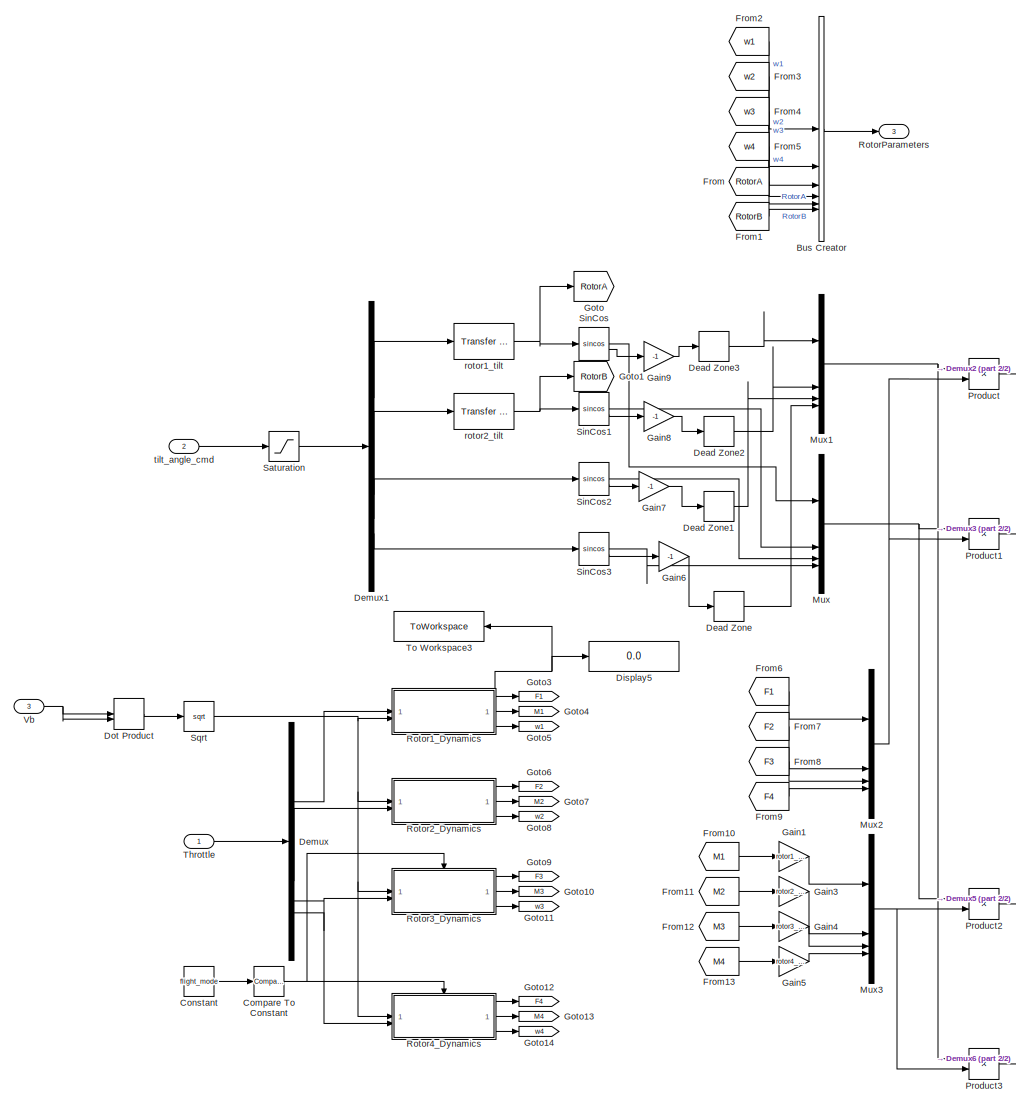
[diagram: EVTOL Model/Rotors - part 1/2, left side, full height]
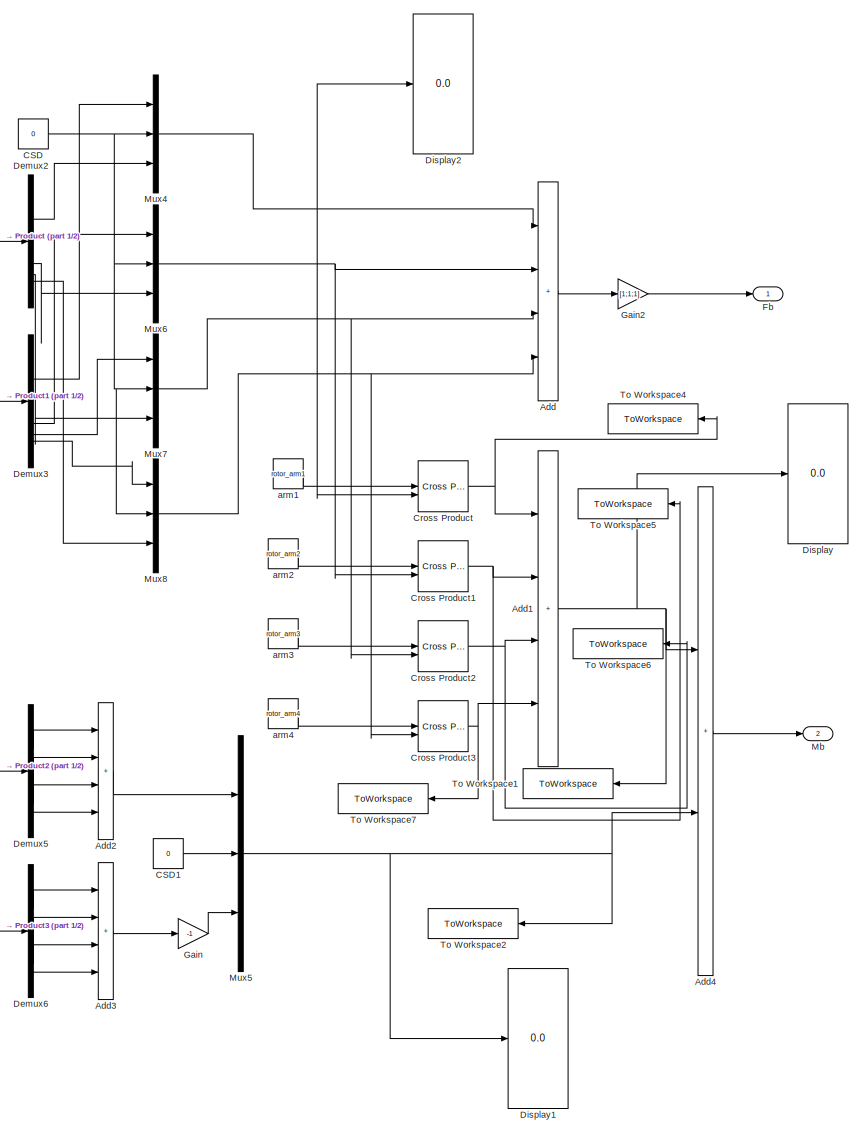
[diagram: EVTOL Model/Rotors - part 2/2, right side, full height]
BLOCK [SubSystem] EVTOL Model/Rotors
BLOCK [Sum] EVTOL Model/Rotors/Add
  IconShape = rectangular
  Inputs = ++++
BLOCK [Sum] EVTOL Model/Rotors/Add1
  IconShape = rectangular
  Inputs = ++++
BLOCK [Sum] EVTOL Model/Rotors/Add2
  IconShape = rectangular
  Inputs = ++++
BLOCK [Sum] EVTOL Model/Rotors/Add3
  IconShape = rectangular
  Inputs = ++++
BLOCK [Sum] EVTOL Model/Rotors/Add4
  IconShape = rectangular
BLOCK [BusCreator] EVTOL Model/Rotors/Bus Creator
  DisplayOption = bar
  InheritFromInputs = on
  Inputs = 6
BLOCK [Constant] EVTOL Model/Rotors/CSD
  Value = 0
BLOCK [Constant] EVTOL Model/Rotors/CSD1
  Value = 0
BLOCK [Reference] EVTOL Model/Rotors/Compare To Constant  REF=simulink/Logic and Bit
Operations/Compare
To Constant
  SourceBlock = simulink/Logic and Bit\nOperations/Compare\nTo Constant
  SourceType = Compare To Constant
BLOCK [Constant] EVTOL Model/Rotors/Constant
  Value = flight_mode
BLOCK [Reference] EVTOL Model/Rotors/Cross Product  REF=matrix_library/Cross Product
  LibrarySourceBlock = simulink/Matrix\nOperations/Cross Product
  SourceBlock = matrix_library/Cross Product
  SourceType = CrossProduct
BLOCK [Reference] EVTOL Model/Rotors/Cross Product1  REF=matrix_library/Cross Product
  LibrarySourceBlock = simulink/Matrix\nOperations/Cross Product
  SourceBlock = matrix_library/Cross Product
  SourceType = CrossProduct
BLOCK [Reference] EVTOL Model/Rotors/Cross Product2  REF=matrix_library/Cross Product
  LibrarySourceBlock = simulink/Matrix\nOperations/Cross Product
  SourceBlock = matrix_library/Cross Product
  SourceType = CrossProduct
BLOCK [Reference] EVTOL Model/Rotors/Cross Product3  REF=matrix_library/Cross Product
  LibrarySourceBlock = simulink/Matrix\nOperations/Cross Product
  SourceBlock = matrix_library/Cross Product
  SourceType = CrossProduct
BLOCK [DeadZone] EVTOL Model/Rotors/Dead Zone
  LowerValue = -cos(pi/2)
  UpperValue = cos(pi/2)
BLOCK [DeadZone] EVTOL Model/Rotors/Dead Zone1
  LowerValue = -cos(pi/2)
  UpperValue = cos(pi/2)
BLOCK [DeadZone] EVTOL Model/Rotors/Dead Zone2
  LowerValue = -cos(pi/2)
  UpperValue = cos(pi/2)
BLOCK [DeadZone] EVTOL Model/Rotors/Dead Zone3
  LowerValue = -cos(pi/2)
  UpperValue = cos(pi/2)
BLOCK [Demux] EVTOL Model/Rotors/Demux
BLOCK [Demux] EVTOL Model/Rotors/Demux1
BLOCK [Demux] EVTOL Model/Rotors/Demux2
BLOCK [Demux] EVTOL Model/Rotors/Demux3
BLOCK [Demux] EVTOL Model/Rotors/Demux5
BLOCK [Demux] EVTOL Model/Rotors/Demux6
BLOCK [Display] EVTOL Model/Rotors/Display
  Decimation = 1
BLOCK [Display] EVTOL Model/Rotors/Display1
  Decimation = 1
BLOCK [Display] EVTOL Model/Rotors/Display2
  Decimation = 1
BLOCK [Display] EVTOL Model/Rotors/Display5
  Decimation = 1
BLOCK [DotProduct] EVTOL Model/Rotors/Dot Product
  OutDataTypeStr = Inherit: Inherit via internal rule
BLOCK [Outport] EVTOL Model/Rotors/Fb
BLOCK [From] EVTOL Model/Rotors/From
  GotoTag = RotorA
BLOCK [From] EVTOL Model/Rotors/From1
  GotoTag = RotorB
BLOCK [From] EVTOL Model/Rotors/From10
  GotoTag = M1
BLOCK [From] EVTOL Model/Rotors/From11
  GotoTag = M2
BLOCK [From] EVTOL Model/Rotors/From12
  GotoTag = M3
BLOCK [From] EVTOL Model/Rotors/From13
  GotoTag = M4
BLOCK [From] EVTOL Model/Rotors/From2
  GotoTag = w1
BLOCK [From] EVTOL Model/Rotors/From3
  GotoTag = w2
BLOCK [From] EVTOL Model/Rotors/From4
  GotoTag = w3
BLOCK [From] EVTOL Model/Rotors/From5
  GotoTag = w4
BLOCK [From] EVTOL Model/Rotors/From6
  GotoTag = F1
BLOCK [From] EVTOL Model/Rotors/From7
  GotoTag = F2
BLOCK [From] EVTOL Model/Rotors/From8
  GotoTag = F3
BLOCK [From] EVTOL Model/Rotors/From9
  GotoTag = F4
BLOCK [Gain] EVTOL Model/Rotors/Gain
  Gain = -1
BLOCK [Gain] EVTOL Model/Rotors/Gain1
  Gain = rotor1_direction
BLOCK [Gain] EVTOL Model/Rotors/Gain2
  Gain = [1;1;1]
BLOCK [Gain] EVTOL Model/Rotors/Gain3
  Gain = rotor2_direction
BLOCK [Gain] EVTOL Model/Rotors/Gain4
  Gain = rotor3_direction
BLOCK [Gain] EVTOL Model/Rotors/Gain5
  Gain = rotor4_direction
BLOCK [Gain] EVTOL Model/Rotors/Gain6
  Gain = -1
BLOCK [Gain] EVTOL Model/Rotors/Gain7
  Gain = -1
BLOCK [Gain] EVTOL Model/Rotors/Gain8
  Gain = -1
BLOCK [Gain] EVTOL Model/Rotors/Gain9
  Gain = -1
BLOCK [Goto] EVTOL Model/Rotors/Goto
  GotoTag = RotorA
BLOCK [Goto] EVTOL Model/Rotors/Goto1
  GotoTag = RotorB
BLOCK [Goto] EVTOL Model/Rotors/Goto10
  GotoTag = M3
BLOCK [Goto] EVTOL Model/Rotors/Goto11
  GotoTag = w3
BLOCK [Goto] EVTOL Model/Rotors/Goto12
  GotoTag = F4
BLOCK [Goto] EVTOL Model/Rotors/Goto13
  GotoTag = M4
BLOCK [Goto] EVTOL Model/Rotors/Goto14
  GotoTag = w4
BLOCK [Goto] EVTOL Model/Rotors/Goto3
  GotoTag = F1
BLOCK [Goto] EVTOL Model/Rotors/Goto4
  GotoTag = M1
BLOCK [Goto] EVTOL Model/Rotors/Goto5
  GotoTag = w1
BLOCK [Goto] EVTOL Model/Rotors/Goto6
  GotoTag = F2
BLOCK [Goto] EVTOL Model/Rotors/Goto7
  GotoTag = M2
BLOCK [Goto] EVTOL Model/Rotors/Goto8
  GotoTag = w2
BLOCK [Goto] EVTOL Model/Rotors/Goto9
  GotoTag = F3
BLOCK [Outport] EVTOL Model/Rotors/Mb
  Port = 2
BLOCK [Mux] EVTOL Model/Rotors/Mux
  DisplayOption = bar
BLOCK [Mux] EVTOL Model/Rotors/Mux1
  DisplayOption = bar
BLOCK [Mux] EVTOL Model/Rotors/Mux2
  DisplayOption = bar
BLOCK [Mux] EVTOL Model/Rotors/Mux3
  DisplayOption = bar
BLOCK [Mux] EVTOL Model/Rotors/Mux4
  DisplayOption = bar
  Inputs = 3
BLOCK [Mux] EVTOL Model/Rotors/Mux5
  DisplayOption = bar
  Inputs = 3
BLOCK [Mux] EVTOL Model/Rotors/Mux6
  DisplayOption = bar
  Inputs = 3
BLOCK [Mux] EVTOL Model/Rotors/Mux7
  DisplayOption = bar
  Inputs = 3
BLOCK [Mux] EVTOL Model/Rotors/Mux8
  DisplayOption = bar
  Inputs = 3
BLOCK [Product] EVTOL Model/Rotors/Product
BLOCK [Product] EVTOL Model/Rotors/Product1
BLOCK [Product] EVTOL Model/Rotors/Product2
BLOCK [Product] EVTOL Model/Rotors/Product3
BLOCK [SubSystem] EVTOL Model/Rotors/Rotor1_Dynamics
BLOCK [Polyval] EVTOL Model/Rotors/Rotor1_Dynamics/CQ
  Coefs = [0.04280,-0.05046,0.005711,-0.003293, 0.007048]
BLOCK [Polyval] EVTOL Model/Rotors/Rotor1_Dynamics/CT
  Coefs = [0.03338, -0.1265,-0.1210,0.1142]
BLOCK [Constant] EVTOL Model/Rotors/Rotor1_Dynamics/Constant
  Value = PropDiameter
BLOCK [Constant] EVTOL Model/Rotors/Rotor1_Dynamics/Constant1
  Value = rho
BLOCK [Constant] EVTOL Model/Rotors/Rotor1_Dynamics/Constant2
  Value = 4
BLOCK [Constant] EVTOL Model/Rotors/Rotor1_Dynamics/Constant3
  Value = 5
BLOCK [Product] EVTOL Model/Rotors/Rotor1_Dynamics/Divide
  Inputs = */
BLOCK [Outport] EVTOL Model/Rotors/Rotor1_Dynamics/F_rotor
BLOCK [Gain] EVTOL Model/Rotors/Rotor1_Dynamics/Gain
  Gain = 1/60
BLOCK [Gain] EVTOL Model/Rotors/Rotor1_Dynamics/Gain1
  Gain = Max_RPM
BLOCK [Outport] EVTOL Model/Rotors/Rotor1_Dynamics/M_rotor
  Port = 2
BLOCK [Math] EVTOL Model/Rotors/Rotor1_Dynamics/Power
  Operator = pow
BLOCK [Math] EVTOL Model/Rotors/Rotor1_Dynamics/Power1
  Operator = pow
BLOCK [Product] EVTOL Model/Rotors/Rotor1_Dynamics/Product
  Inputs = 4
BLOCK [Product] EVTOL Model/Rotors/Rotor1_Dynamics/Product1
  Inputs = 4
BLOCK [Product] EVTOL Model/Rotors/Rotor1_Dynamics/Product2
BLOCK [Saturate] EVTOL Model/Rotors/Rotor1_Dynamics/Saturation
  LowerLimit = 0.1
  UpperLimit = 1
BLOCK [Scope] EVTOL Model/Rotors/Rotor1_Dynamics/Scope
  Floating = off
  NumInputPorts = 1
  ScopeSpecificationString = Simulink.scopes.TimeScopeBlockCfg('CurrentConfiguration', extmgr.ConfigurationSet(extmgr.Configuration('Core','General UI',true),extmgr.Configuration('Core','Source UI',true),extmgr.Configuration('Sources','WiredSimulink',true,'DataLoggingVariableName','ScopeData1'),extmgr.Configuration('Visuals','Time Domain',true,'SerializedDisplays',{struct('MinYLimReal','1115.09274','MaxYLimReal','10987.21192'...<+1390ch>
BLOCK [Scope] EVTOL Model/Rotors/Rotor1_Dynamics/Scope1
  Floating = off
  NumInputPorts = 1
  ScopeSpecificationString = Simulink.scopes.TimeScopeBlockCfg('CurrentConfiguration', extmgr.ConfigurationSet(extmgr.Configuration('Core','General UI',true),extmgr.Configuration('Core','Source UI',true),extmgr.Configuration('Sources','WiredSimulink',true,'DataLoggingVariableName','ScopeData2'),extmgr.Configuration('Visuals','Time Domain',true,'SerializedDisplays',{struct('MinYLimReal','6919.84742','MaxYLimReal','10342.23918'...<+1421ch>
BLOCK [Math] EVTOL Model/Rotors/Rotor1_Dynamics/Square
  Operator = square
BLOCK [Reference] EVTOL Model/Rotors/Rotor1_Dynamics/Transfer Fcn (with initial outputs)1  REF=simulink_extras/Additional
Linear/Transfer Fcn
(with initial outputs)
  SourceBlock = simulink_extras/Additional\nLinear/Transfer Fcn\n(with initial outputs)
  SourceType = Transfer Function with Initial Outputs
BLOCK [Inport] EVTOL Model/Rotors/Rotor1_Dynamics/V
  Port = 2
BLOCK [Inport] EVTOL Model/Rotors/Rotor1_Dynamics/throttle
BLOCK [Outport] EVTOL Model/Rotors/Rotor1_Dynamics/w1
  Port = 3
BLOCK [SubSystem] EVTOL Model/Rotors/Rotor2_Dynamics
BLOCK [Polyval] EVTOL Model/Rotors/Rotor2_Dynamics/CQ
  Coefs = [0.04280,-0.05046,0.005711,-0.003293, 0.007048]
BLOCK [Polyval] EVTOL Model/Rotors/Rotor2_Dynamics/CT
  Coefs = [0.03338, -0.1265,-0.1210,0.1142]
BLOCK [Constant] EVTOL Model/Rotors/Rotor2_Dynamics/Constant
  Value = PropDiameter
BLOCK [Constant] EVTOL Model/Rotors/Rotor2_Dynamics/Constant1
  Value = rho
BLOCK [Constant] EVTOL Model/Rotors/Rotor2_Dynamics/Constant2
  Value = 4
BLOCK [Constant] EVTOL Model/Rotors/Rotor2_Dynamics/Constant3
  Value = 5
BLOCK [Product] EVTOL Model/Rotors/Rotor2_Dynamics/Divide
  Inputs = */
BLOCK [Outport] EVTOL Model/Rotors/Rotor2_Dynamics/F_rotor
BLOCK [Gain] EVTOL Model/Rotors/Rotor2_Dynamics/Gain
  Gain = 1/60
BLOCK [Gain] EVTOL Model/Rotors/Rotor2_Dynamics/Gain1
  Gain = Max_RPM
BLOCK [Outport] EVTOL Model/Rotors/Rotor2_Dynamics/M_rotor
  Port = 2
BLOCK [Math] EVTOL Model/Rotors/Rotor2_Dynamics/Power
  Operator = pow
BLOCK [Math] EVTOL Model/Rotors/Rotor2_Dynamics/Power1
  Operator = pow
BLOCK [Product] EVTOL Model/Rotors/Rotor2_Dynamics/Product
  Inputs = 4
BLOCK [Product] EVTOL Model/Rotors/Rotor2_Dynamics/Product1
  Inputs = 4
BLOCK [Product] EVTOL Model/Rotors/Rotor2_Dynamics/Product2
BLOCK [Saturate] EVTOL Model/Rotors/Rotor2_Dynamics/Saturation
  LowerLimit = 0.1
  UpperLimit = 1
BLOCK [Math] EVTOL Model/Rotors/Rotor2_Dynamics/Square
  Operator = square
BLOCK [Reference] EVTOL Model/Rotors/Rotor2_Dynamics/Transfer Fcn (with initial outputs)1  REF=simulink_extras/Additional
Linear/Transfer Fcn
(with initial outputs)
  SourceBlock = simulink_extras/Additional\nLinear/Transfer Fcn\n(with initial outputs)
  SourceType = Transfer Function with Initial Outputs
BLOCK [Inport] EVTOL Model/Rotors/Rotor2_Dynamics/V
BLOCK [Inport] EVTOL Model/Rotors/Rotor2_Dynamics/throttle
  Port = 2
BLOCK [Outport] EVTOL Model/Rotors/Rotor2_Dynamics/w2
  Port = 3
BLOCK [SubSystem] EVTOL Model/Rotors/Rotor3_Dynamics
BLOCK [Polyval] EVTOL Model/Rotors/Rotor3_Dynamics/CQ
  Coefs = [0.04280,-0.05046,0.005711,-0.003293, 0.007048]
BLOCK [Polyval] EVTOL Model/Rotors/Rotor3_Dynamics/CT
  Coefs = [0.03338, -0.1265,-0.1210,0.1142]
BLOCK [Constant] EVTOL Model/Rotors/Rotor3_Dynamics/Constant
  Value = PropDiameter
BLOCK [Constant] EVTOL Model/Rotors/Rotor3_Dynamics/Constant1
  Value = rho
BLOCK [Constant] EVTOL Model/Rotors/Rotor3_Dynamics/Constant2
  Value = 4
BLOCK [Constant] EVTOL Model/Rotors/Rotor3_Dynamics/Constant3
  Value = 5
BLOCK [Product] EVTOL Model/Rotors/Rotor3_Dynamics/Divide
  Inputs = */
BLOCK [EnablePort] EVTOL Model/Rotors/Rotor3_Dynamics/Enable
BLOCK [Outport] EVTOL Model/Rotors/Rotor3_Dynamics/F_rotor
BLOCK [Gain] EVTOL Model/Rotors/Rotor3_Dynamics/Gain
  Gain = 1/60
BLOCK [Gain] EVTOL Model/Rotors/Rotor3_Dynamics/Gain1
  Gain = Max_RPM
BLOCK [Outport] EVTOL Model/Rotors/Rotor3_Dynamics/M_rotor
  Port = 2
BLOCK [Math] EVTOL Model/Rotors/Rotor3_Dynamics/Power
  Operator = pow
BLOCK [Math] EVTOL Model/Rotors/Rotor3_Dynamics/Power1
  Operator = pow
BLOCK [Product] EVTOL Model/Rotors/Rotor3_Dynamics/Product
  Inputs = 4
BLOCK [Product] EVTOL Model/Rotors/Rotor3_Dynamics/Product1
  Inputs = 4
BLOCK [Product] EVTOL Model/Rotors/Rotor3_Dynamics/Product2
BLOCK [Saturate] EVTOL Model/Rotors/Rotor3_Dynamics/Saturation
  LowerLimit = 0.1
  UpperLimit = 1
BLOCK [Math] EVTOL Model/Rotors/Rotor3_Dynamics/Square
  Operator = square
BLOCK [Reference] EVTOL Model/Rotors/Rotor3_Dynamics/Transfer Fcn (with initial outputs)1  REF=simulink_extras/Additional
Linear/Transfer Fcn
(with initial outputs)
  SourceBlock = simulink_extras/Additional\nLinear/Transfer Fcn\n(with initial outputs)
  SourceType = Transfer Function with Initial Outputs
BLOCK [Inport] EVTOL Model/Rotors/Rotor3_Dynamics/V
BLOCK [Inport] EVTOL Model/Rotors/Rotor3_Dynamics/throttle
  Port = 2
BLOCK [Outport] EVTOL Model/Rotors/Rotor3_Dynamics/w3
  Port = 3
BLOCK [SubSystem] EVTOL Model/Rotors/Rotor4_Dynamics
BLOCK [Polyval] EVTOL Model/Rotors/Rotor4_Dynamics/CQ
  Coefs = [0.04280,-0.05046,0.005711,-0.003293, 0.007048]
BLOCK [Polyval] EVTOL Model/Rotors/Rotor4_Dynamics/CT
  Coefs = [0.03338, -0.1265,-0.1210,0.1142]
BLOCK [Constant] EVTOL Model/Rotors/Rotor4_Dynamics/Constant
  Value = PropDiameter
BLOCK [Constant] EVTOL Model/Rotors/Rotor4_Dynamics/Constant1
  Value = rho
BLOCK [Constant] EVTOL Model/Rotors/Rotor4_Dynamics/Constant2
  Value = 4
BLOCK [Constant] EVTOL Model/Rotors/Rotor4_Dynamics/Constant3
  Value = 5
BLOCK [Product] EVTOL Model/Rotors/Rotor4_Dynamics/Divide
  Inputs = */
BLOCK [EnablePort] EVTOL Model/Rotors/Rotor4_Dynamics/Enable
BLOCK [Outport] EVTOL Model/Rotors/Rotor4_Dynamics/F_rotor
BLOCK [Gain] EVTOL Model/Rotors/Rotor4_Dynamics/Gain
  Gain = 1/60
BLOCK [Gain] EVTOL Model/Rotors/Rotor4_Dynamics/Gain1
  Gain = Max_RPM
BLOCK [Outport] EVTOL Model/Rotors/Rotor4_Dynamics/M_rotor
  Port = 2
BLOCK [Math] EVTOL Model/Rotors/Rotor4_Dynamics/Power
  Operator = pow
BLOCK [Math] EVTOL Model/Rotors/Rotor4_Dynamics/Power1
  Operator = pow
BLOCK [Product] EVTOL Model/Rotors/Rotor4_Dynamics/Product
  Inputs = 4
BLOCK [Product] EVTOL Model/Rotors/Rotor4_Dynamics/Product1
  Inputs = 4
BLOCK [Product] EVTOL Model/Rotors/Rotor4_Dynamics/Product2
BLOCK [Saturate] EVTOL Model/Rotors/Rotor4_Dynamics/Saturation
  LowerLimit = 0.1
  UpperLimit = 1
BLOCK [Math] EVTOL Model/Rotors/Rotor4_Dynamics/Square
  Operator = square
BLOCK [Reference] EVTOL Model/Rotors/Rotor4_Dynamics/Transfer Fcn (with initial outputs)1  REF=simulink_extras/Additional
Linear/Transfer Fcn
(with initial outputs)
  SourceBlock = simulink_extras/Additional\nLinear/Transfer Fcn\n(with initial outputs)
  SourceType = Transfer Function with Initial Outputs
BLOCK [Inport] EVTOL Model/Rotors/Rotor4_Dynamics/V
BLOCK [Inport] EVTOL Model/Rotors/Rotor4_Dynamics/throttle
  Port = 2
BLOCK [Outport] EVTOL Model/Rotors/Rotor4_Dynamics/w4
  Port = 3
BLOCK [Outport] EVTOL Model/Rotors/RotorParameters
  Port = 3
BLOCK [Saturate] EVTOL Model/Rotors/Saturation
  LowerLimit = -90*pi/180
  UpperLimit = 90*pi/180
BLOCK [Trigonometry] EVTOL Model/Rotors/SinCos
  Operator = sincos
BLOCK [Trigonometry] EVTOL Model/Rotors/SinCos1
  Operator = sincos
BLOCK [Trigonometry] EVTOL Model/Rotors/SinCos2
  Operator = sincos
BLOCK [Trigonometry] EVTOL Model/Rotors/SinCos3
  Operator = sincos
BLOCK [Sqrt] EVTOL Model/Rotors/Sqrt
BLOCK [Inport] EVTOL Model/Rotors/Throttle
BLOCK [ToWorkspace] EVTOL Model/Rotors/To Workspace1
  FixptAsFi = on
  MaxDataPoints = inf
  SampleTime = 0.005
  VariableName = Result_RotorBody_Moment
BLOCK [ToWorkspace] EVTOL Model/Rotors/To Workspace2
  FixptAsFi = on
  MaxDataPoints = inf
  SampleTime = 0.005
  VariableName = Result_RotorTorque_Moment
BLOCK [ToWorkspace] EVTOL Model/Rotors/To Workspace3
  FixptAsFi = on
  MaxDataPoints = inf
  SampleTime = 0.005
  VariableName = Result_Rotor1
BLOCK [ToWorkspace] EVTOL Model/Rotors/To Workspace4
  FixptAsFi = on
  MaxDataPoints = inf
  SampleTime = 0.005
  VariableName = Result_Rotor1_moment
BLOCK [ToWorkspace] EVTOL Model/Rotors/To Workspace5
  FixptAsFi = on
  MaxDataPoints = inf
  SampleTime = 0.005
  VariableName = Result_Rotor2_moment
BLOCK [ToWorkspace] EVTOL Model/Rotors/To Workspace6
  FixptAsFi = on
  MaxDataPoints = inf
  SampleTime = 0.005
  VariableName = Result_Rotor3_moment
BLOCK [ToWorkspace] EVTOL Model/Rotors/To Workspace7
  FixptAsFi = on
  MaxDataPoints = inf
  SampleTime = 0.005
  VariableName = Result_Rotor4_moment
BLOCK [Inport] EVTOL Model/Rotors/Vb
  Port = 3
BLOCK [Constant] EVTOL Model/Rotors/arm1
  Value = rotor_arm1
BLOCK [Constant] EVTOL Model/Rotors/arm2
  Value = rotor_arm2
BLOCK [Constant] EVTOL Model/Rotors/arm3
  Value = rotor_arm3
BLOCK [Constant] EVTOL Model/Rotors/arm4
  Value = rotor_arm4
BLOCK [Reference] EVTOL Model/Rotors/rotor1_tilt  REF=simulink_extras/Additional
Linear/Transfer Fcn
(with initial outputs)
  SourceBlock = simulink_extras/Additional\nLinear/Transfer Fcn\n(with initial outputs)
  SourceType = Transfer Function with Initial Outputs
BLOCK [Reference] EVTOL Model/Rotors/rotor2_tilt  REF=simulink_extras/Additional
Linear/Transfer Fcn
(with initial outputs)
  SourceBlock = simulink_extras/Additional\nLinear/Transfer Fcn\n(with initial outputs)
  SourceType = Transfer Function with Initial Outputs
BLOCK [Inport] EVTOL Model/Rotors/tilt_angle_cmd
  Port = 2
BLOCK [Switch] EVTOL Model/Switch
  Criteria = u2 > Threshold
  InputSameDT = off
  SaturateOnIntegerOverflow = off
BLOCK [Switch] EVTOL Model/Switch1
  Criteria = u2 > Threshold
  InputSameDT = off
  SaturateOnIntegerOverflow = off
BLOCK [Terminator] EVTOL Model/Terminator
BLOCK [Terminator] EVTOL Model/Terminator1
BLOCK [Terminator] EVTOL Model/Terminator10
BLOCK [Terminator] EVTOL Model/Terminator11
BLOCK [Terminator] EVTOL Model/Terminator12
BLOCK [Terminator] EVTOL Model/Terminator13
BLOCK [Terminator] EVTOL Model/Terminator14
BLOCK [Terminator] EVTOL Model/Terminator15
BLOCK [Terminator] EVTOL Model/Terminator16
BLOCK [Terminator] EVTOL Model/Terminator17
BLOCK [Terminator] EVTOL Model/Terminator2
BLOCK [Terminator] EVTOL Model/Terminator3
BLOCK [Terminator] EVTOL Model/Terminator4
BLOCK [Terminator] EVTOL Model/Terminator5
BLOCK [Terminator] EVTOL Model/Terminator6
BLOCK [Terminator] EVTOL Model/Terminator7
BLOCK [Terminator] EVTOL Model/Terminator8
BLOCK [Terminator] EVTOL Model/Terminator9
BLOCK [ToWorkspace] EVTOL Model/To Workspace1
  FixptAsFi = on
  MaxDataPoints = inf
  SampleTime = 0.005
  VariableName = Result_RotorMoment
BLOCK [ToWorkspace] EVTOL Model/To Workspace2
  FixptAsFi = on
  MaxDataPoints = inf
  SampleTime = 0.005
  VariableName = Result_Drag
BLOCK [ToWorkspace] EVTOL Model/To Workspace3
  FixptAsFi = on
  MaxDataPoints = inf
  SampleTime = 0.005
  VariableName = Result_RotorForce
BLOCK [ToWorkspace] EVTOL Model/To Workspace4
  FixptAsFi = on
  MaxDataPoints = inf
  SampleTime = 0.005
  VariableName = Aero_Force
BLOCK [ToWorkspace] EVTOL Model/To Workspace5
  FixptAsFi = on
  MaxDataPoints = inf
  SampleTime = 0.005
  VariableName = Aero_Moment
BLOCK [ToWorkspace] EVTOL Model/To Workspace6
  FixptAsFi = on
  MaxDataPoints = inf
  SampleTime = 0.005
  VariableName = Force
BLOCK [Demux] EVTOL Model/Vb
  Outputs = 3
BLOCK [Demux] EVTOL Model/Ve
  Outputs = 3
BLOCK [Demux] EVTOL Model/Xe
  Outputs = 3
BLOCK [Demux] EVTOL Model/pqr
  Outputs = 3
BLOCK [SubSystem] Fault Insertion
BLOCK [Switch] Fault Insertion/Aileron Fault
  Criteria = u2 > Threshold
  InputSameDT = off
  SaturateOnIntegerOverflow = off
BLOCK [Step] Fault Insertion/Aileron_Fault_Condition
  After = aileron_stuck
  SampleTime = 0
  Time = fault_time_start
BLOCK [BusCreator] Fault Insertion/Bus Creator
  DisplayOption = bar
  InheritFromInputs = on
  Inputs = 3
BLOCK [BusCreator] Fault Insertion/Bus Creator1
  DisplayOption = bar
  InheritFromInputs = on
  Inputs = 3
BLOCK [BusSelector] Fault Insertion/Bus Selector
  OutputSignals = CtrlSurfaces,Throttle,Tilt
BLOCK [BusSelector] Fault Insertion/Bus Selector1
  OutputSignals = Elevator,Aileron,Rudder
BLOCK [Demux] Fault Insertion/Demux
BLOCK [Demux] Fault Insertion/Demux1
  Outputs = 2
BLOCK [Demux] Fault Insertion/Demux2
BLOCK [Demux] Fault Insertion/Demux3
BLOCK [Display] Fault Insertion/Display
  Decimation = 1
BLOCK [Switch] Fault Insertion/Elevator Fault
  Criteria = u2 > Threshold
  InputSameDT = off
  SaturateOnIntegerOverflow = off
BLOCK [Step] Fault Insertion/Elevator_Fault_Condition
  After = elevator_stuck
  SampleTime = 0
  Time = fault_time_start
BLOCK [From] Fault Insertion/From
  GotoTag = CtrlSurfaces
BLOCK [From] Fault Insertion/From1
  GotoTag = Throttle
BLOCK [From] Fault Insertion/From2
  GotoTag = Tilt
BLOCK [From] Fault Insertion/From3
  GotoTag = Throttle
BLOCK [From] Fault Insertion/From4
  GotoTag = Tilt
BLOCK [Gain] Fault Insertion/Gain
  Gain = 1/60
BLOCK [Gain] Fault Insertion/Gain1
  Gain = 10000
BLOCK [Gain] Fault Insertion/Gain2
  Gain = 1/60
BLOCK [Gain] Fault Insertion/Gain3
  Gain = 10000
BLOCK [Gain] Fault Insertion/Gain4
  Gain = 1/60
BLOCK [Gain] Fault Insertion/Gain5
  Gain = 10000
BLOCK [Gain] Fault Insertion/Gain6
  Gain = 1/60
BLOCK [Gain] Fault Insertion/Gain7
  Gain = 10000
BLOCK [Goto] Fault Insertion/Goto
  GotoTag = CtrlSurfaces
BLOCK [Goto] Fault Insertion/Goto1
  GotoTag = Throttle
BLOCK [Goto] Fault Insertion/Goto2
  GotoTag = Tilt
BLOCK [Mux] Fault Insertion/Mux
  DisplayOption = bar
BLOCK [Mux] Fault Insertion/Mux1
  DisplayOption = bar
  Inputs = 2
BLOCK [Mux] Fault Insertion/Mux2
  DisplayOption = bar
BLOCK [Mux] Fault Insertion/Mux3
  DisplayOption = bar
  Inputs = 2
BLOCK [Mux] Fault Insertion/Mux4
  DisplayOption = bar
  Inputs = 2
BLOCK [Inport] Fault Insertion/Normal_Controller
BLOCK [Outport] Fault Insertion/Out_Controll
BLOCK [Switch] Fault Insertion/Rotor1 Fault
  Criteria = u2 > Threshold
  InputSameDT = off
  SaturateOnIntegerOverflow = off
BLOCK [Step] Fault Insertion/Rotor1_Fault_Condition
  After = rotor1_fail
  SampleTime = 0
  Time = fault_time_start
BLOCK [Switch] Fault Insertion/Rotor2 Fault
  Criteria = u2 > Threshold
  InputSameDT = off
  SaturateOnIntegerOverflow = off
BLOCK [Step] Fault Insertion/Rotor2_Fault_Condition
  After = rotor2_fail
  SampleTime = 0
  Time = fault_time_start
BLOCK [Switch] Fault Insertion/Rotor3 Fault
  Criteria = u2 > Threshold
  InputSameDT = off
  SaturateOnIntegerOverflow = off
BLOCK [Step] Fault Insertion/Rotor3_Fault_Condition
  After = rotor3_fail
  SampleTime = 0
  Time = fault_time_start
BLOCK [Switch] Fault Insertion/Rotor4 Fault
  Criteria = u2 > Threshold
  InputSameDT = off
  SaturateOnIntegerOverflow = off
BLOCK [Step] Fault Insertion/Rotor4_Fault_Condition
  After = rotor4_fail
  SampleTime = 0
  Time = fault_time_start
BLOCK [Switch] Fault Insertion/Rudder Fault
  Criteria = u2 > Threshold
  InputSameDT = off
  SaturateOnIntegerOverflow = off
BLOCK [Step] Fault Insertion/Rudder_Fault_Condition
  After = rudder_stuck
  SampleTime = 0
  Time = fault_time_start
BLOCK [Saturate] Fault Insertion/Saturation
  LowerLimit = 0.1
  UpperLimit = 1
BLOCK [Saturate] Fault Insertion/Saturation1
  LowerLimit = 0.1
  UpperLimit = 1
BLOCK [Saturate] Fault Insertion/Saturation2
  LowerLimit = 0.1
  UpperLimit = 1
BLOCK [Saturate] Fault Insertion/Saturation3
  LowerLimit = 0.1
  UpperLimit = 1
BLOCK [Saturate] Fault Insertion/Saturation4
  LowerLimit = -90*pi/180
  UpperLimit = 90*pi/180
BLOCK [Saturate] Fault Insertion/Saturation5
  LowerLimit = -90*pi/180
  UpperLimit = 90*pi/180
BLOCK [Scope] Fault Insertion/Scope
  Floating = off
  NumInputPorts = 1
  ScopeSpecificationString = Simulink.scopes.TimeScopeBlockCfg('CurrentConfiguration', extmgr.ConfigurationSet(extmgr.Configuration('Core','General UI',true),extmgr.Configuration('Core','Source UI',true),extmgr.Configuration('Sources','WiredSimulink',true,'DataLoggingVariableName','ScopeData1'),extmgr.Configuration('Visuals','Time Domain',true,'SerializedDisplays',{struct('MinYLimReal','-1.00000','MaxYLimReal','1.00000','YLab...<+1411ch>
BLOCK [Scope] Fault Insertion/Scope1
  Floating = off
  NumInputPorts = 1
  ScopeSpecificationString = Simulink.scopes.TimeScopeBlockCfg('CurrentConfiguration', extmgr.ConfigurationSet(extmgr.Configuration('Core','General UI',true),extmgr.Configuration('Core','Source UI',true),extmgr.Configuration('Sources','WiredSimulink',true,'DataLoggingVariableName','ScopeData2'),extmgr.Configuration('Visuals','Time Domain',true,'SerializedDisplays',{struct('MinYLimReal','-0.36937','MaxYLimReal','0.17004','YLab...<+1367ch>
BLOCK [Switch] Fault Insertion/Tilt1 Fault
  Criteria = u2 > Threshold
  InputSameDT = off
  SaturateOnIntegerOverflow = off
BLOCK [Step] Fault Insertion/Tilt1_Fault_Condition
  After = tilt1_fail
  SampleTime = 0
  Time = fault_time_start
BLOCK [Switch] Fault Insertion/Tilt2 Fault
  Criteria = u2 > Threshold
  InputSameDT = off
  SaturateOnIntegerOverflow = off
BLOCK [Step] Fault Insertion/Tilt2_Fault_Condition
  After = tilt2_fail
  SampleTime = 0
  Time = fault_time_start
BLOCK [ToWorkspace] Fault Insertion/To Workspace
  FixptAsFi = on
  MaxDataPoints = inf
  SampleTime = -1
  VariableName = Result_CtrlSurfaces2
BLOCK [ToWorkspace] Fault Insertion/To Workspace1
  FixptAsFi = on
  MaxDataPoints = inf
  SampleTime = -1
  VariableName = Result_CtrlSurfaces
BLOCK [ToWorkspace] Fault Insertion/To Workspace2
  FixptAsFi = on
  MaxDataPoints = inf
  SampleTime = 0.005
  VariableName = Result_Rotor
BLOCK [Reference] Fault Insertion/Transfer Fcn (with initial outputs)1  REF=simulink_extras/Additional
Linear/Transfer Fcn
(with initial outputs)
  SourceBlock = simulink_extras/Additional\nLinear/Transfer Fcn\n(with initial outputs)
  SourceType = Transfer Function with Initial Outputs
BLOCK [Reference] Fault Insertion/Transfer Fcn (with initial outputs)2  REF=simulink_extras/Additional
Linear/Transfer Fcn
(with initial outputs)
  SourceBlock = simulink_extras/Additional\nLinear/Transfer Fcn\n(with initial outputs)
  SourceType = Transfer Function with Initial Outputs
BLOCK [Reference] Fault Insertion/Transfer Fcn (with initial outputs)3  REF=simulink_extras/Additional
Linear/Transfer Fcn
(with initial outputs)
  SourceBlock = simulink_extras/Additional\nLinear/Transfer Fcn\n(with initial outputs)
  SourceType = Transfer Function with Initial Outputs
BLOCK [Reference] Fault Insertion/Transfer Fcn (with initial outputs)4  REF=simulink_extras/Additional
Linear/Transfer Fcn
(with initial outputs)
  SourceBlock = simulink_extras/Additional\nLinear/Transfer Fcn\n(with initial outputs)
  SourceType = Transfer Function with Initial Outputs
BLOCK [Reference] Fault Insertion/rotor1_tilt  REF=simulink_extras/Additional
Linear/Transfer Fcn
(with initial outputs)
  SourceBlock = simulink_extras/Additional\nLinear/Transfer Fcn\n(with initial outputs)
  SourceType = Transfer Function with Initial Outputs
BLOCK [Reference] Fault Insertion/rotor1_tilt1  REF=simulink_extras/Additional
Linear/Transfer Fcn
(with initial outputs)
  SourceBlock = simulink_extras/Additional\nLinear/Transfer Fcn\n(with initial outputs)
  SourceType = Transfer Function with Initial Outputs
BLOCK [SubSystem] Guidance
BLOCK [Outport] Guidance/Command
BLOCK [Reference] Guidance/Compare To Constant  REF=simulink/Logic and Bit
Operations/Compare
To Constant
  SourceBlock = simulink/Logic and Bit\nOperations/Compare\nTo Constant
  SourceType = Compare To Constant
BLOCK [Reference] Guidance/Compare To Constant1  REF=simulink/Logic and Bit
Operations/Compare
To Constant
  SourceBlock = simulink/Logic and Bit\nOperations/Compare\nTo Constant
  SourceType = Compare To Constant
BLOCK [Constant] Guidance/Constant
  Value = flight_mode
BLOCK [Constant] Guidance/Constant1
  Value = flight_mode
BLOCK [Constant] Guidance/Constant2
  Value = flight_mode
BLOCK [Constant] Guidance/Constant3
  Value = flight_mode
BLOCK [Display] Guidance/Display
  Decimation = 1
BLOCK [SubSystem] Guidance/Fixed-Wing Mode
BLOCK [BusSelector] Guidance/Fixed-Wing Mode/Bus Selector1
  OutputSignals = mode,position,params
BLOCK [BusSelector] Guidance/Fixed-Wing Mode/Bus Selector2
  OutputSignals = mode,position,params
BLOCK [Reference] Guidance/Fixed-Wing Mode/Compare To Constant  REF=simulink/Logic and Bit
Operations/Compare
To Constant
  SourceBlock = simulink/Logic and Bit\nOperations/Compare\nTo Constant
  SourceType = Compare To Constant
BLOCK [Constant] Guidance/Fixed-Wing Mode/Constant
  Value = 0
BLOCK [Constant] Guidance/Fixed-Wing Mode/Constant1
  OutDataTypeStr = uint8
  Value = 0
BLOCK [Constant] Guidance/Fixed-Wing Mode/Constant16
  Value = 60
BLOCK [Constant] Guidance/Fixed-Wing Mode/Constant2
  Value = [0 0 0]
BLOCK [Constant] Guidance/Fixed-Wing Mode/Constant3
  OutDataTypeStr = Bus: doubleUAVPathManagerBus
  Value = FixedWingMission
BLOCK [Constant] Guidance/Fixed-Wing Mode/Constant4
  Value = 0
BLOCK [Delay] Guidance/Fixed-Wing Mode/Delay
  DelayLength = 1
  InitialCondition = 0
  InputPortMap = u0
BLOCK [Demux] Guidance/Fixed-Wing Mode/Demux
  Outputs = 3
BLOCK [EnablePort] Guidance/Fixed-Wing Mode/Enable
BLOCK [Outport] Guidance/Fixed-Wing Mode/Fix_Mission_Done
  Port = 4
BLOCK [Outport] Guidance/Fixed-Wing Mode/Fix_mode
  Port = 3
BLOCK [From] Guidance/Fixed-Wing Mode/From
  GotoTag = from
BLOCK [From] Guidance/Fixed-Wing Mode/From1
  GotoTag = to
BLOCK [From] Guidance/Fixed-Wing Mode/From2
  GotoTag = to
BLOCK [Goto] Guidance/Fixed-Wing Mode/Goto
  GotoTag = from
BLOCK [Goto] Guidance/Fixed-Wing Mode/Goto1
  GotoTag = to
BLOCK [SubSystem] Guidance/Fixed-Wing Mode/MATLAB Function
  ErrorFcn = Stateflow.Translate.translate
  PermitHierarchicalResolution = ExplicitOnly
  SFBlockType = MATLAB Function
  TreatAsAtomicUnit = on
BLOCK [Demux] Guidance/Fixed-Wing Mode/MATLAB Function/ Demux 
  Outputs = 1
BLOCK [S-Function] Guidance/Fixed-Wing Mode/MATLAB Function/ SFunction 
  EnableBusSupport = on
  FunctionName = sf_sfun
  PortCounts = [2 2]
  SFcnIsStateOwnerBlock = off
  SFunctionDeploymentMode = off
  Tag = Stateflow S-Function 6
BLOCK [Terminator] Guidance/Fixed-Wing Mode/MATLAB Function/ Terminator 
BLOCK [Inport] Guidance/Fixed-Wing Mode/MATLAB Function/from
BLOCK [Inport] Guidance/Fixed-Wing Mode/MATLAB Function/to
  Port = 2
BLOCK [Outport] Guidance/Fixed-Wing Mode/MATLAB Function/waypoint
BLOCK [Mux] Guidance/Fixed-Wing Mode/Mux
  DisplayOption = bar
  Inputs = 3
BLOCK [Reference] Guidance/Fixed-Wing Mode/Path Manager  REF=uavalgslib/Path Manager
  SourceBlock = uavalgslib/Path Manager
  SourceType = Path Manager
BLOCK [Inport] Guidance/Fixed-Wing Mode/Pose
BLOCK [Outport] Guidance/Fixed-Wing Mode/Position_cmd
BLOCK [Selector] Guidance/Fixed-Wing Mode/Selector
  IndexOptions = Index vector (dialog)
  Indices = 2
  InputPortWidth = 2
  OutputSizes = 1
BLOCK [Selector] Guidance/Fixed-Wing Mode/Selector1
  IndexOptions = Index vector (dialog)
  Indices = 1
  InputPortWidth = 2
  OutputSizes = 1
BLOCK [Reference] Guidance/Fixed-Wing Mode/Waypoint Follower1  REF=uavalgslib/Waypoint Follower
  SourceBlock = uavalgslib/Waypoint Follower
  SourceType = uav.sluav.internal.system.WaypointFollower
BLOCK [Outport] Guidance/Fixed-Wing Mode/Yaw_cmd
  Port = 2
BLOCK [From] Guidance/From
  GotoTag = Hover_mode
BLOCK [From] Guidance/From1
  GotoTag = Fix_mode
BLOCK [From] Guidance/From2
  GotoTag = Hover_Mission_Done
BLOCK [From] Guidance/From3
  GotoTag = Fix_Mission_Done
BLOCK [Goto] Guidance/Goto1
  GotoTag = Fix_mode
BLOCK [Goto] Guidance/Goto2
  GotoTag = Hover_mode
BLOCK [Goto] Guidance/Goto3
  GotoTag = Hover_Mission_Done
BLOCK [Goto] Guidance/Goto4
  GotoTag = Fix_Mission_Done
BLOCK [SubSystem] Guidance/Guidance Command
BLOCK [From] Guidance/Guidance Command/Attitude
  GotoTag = Attitude
BLOCK [SubSystem] Guidance/Guidance Command/Attitude Stablizer
BLOCK [Outport] Guidance/Guidance Command/Attitude Stablizer/Attitude
BLOCK [Mux] Guidance/Guidance Command/Attitude Stablizer/Mux
  DisplayOption = bar
  Inputs = 2
BLOCK [Constant] Guidance/Guidance Command/Attitude Stablizer/Pitch
  Value = 0
BLOCK [Constant] Guidance/Guidance Command/Attitude Stablizer/Roll
  Value = 0
BLOCK [BusCreator] Guidance/Guidance Command/Bus Creator
  DisplayOption = bar
  InheritFromInputs = on
  Inputs = 3
BLOCK [Outport] Guidance/Guidance Command/Command
BLOCK [Constant] Guidance/Guidance Command/Constant
  Value = 21
BLOCK [Inport] Guidance/Guidance Command/Desired Position
BLOCK [Inport] Guidance/Guidance Command/Desired_Course
  Port = 2
BLOCK [From] Guidance/Guidance Command/From
  GotoTag = Xe
BLOCK [Goto] Guidance/Guidance Command/Goto
  GotoTag = Attitude
BLOCK [Goto] Guidance/Guidance Command/Goto1
  GotoTag = Xe
BLOCK [SubSystem] Guidance/Guidance Command/Path_selector
BLOCK [Mux] Guidance/Guidance Command/Path_selector/Mux
  DisplayOption = bar
  Inputs = 2
BLOCK [Outport] Guidance/Guidance Command/Path_selector/Xe_cmd
BLOCK [Inport] Guidance/Guidance Command/Path_selector/courseSP
BLOCK [Inport] Guidance/Guidance Command/Path_selector/positionSP
  Port = 2
BLOCK [SubSystem] Guidance/MultiRotor Mode
BLOCK [BusSelector] Guidance/MultiRotor Mode/Bus Selector1
  OutputSignals = mode,position,params
BLOCK [BusSelector] Guidance/MultiRotor Mode/Bus Selector2
  OutputSignals = mode,position,params
BLOCK [Reference] Guidance/MultiRotor Mode/Compare To Constant  REF=simulink/Logic and Bit
Operations/Compare
To Constant
  SourceBlock = simulink/Logic and Bit\nOperations/Compare\nTo Constant
  SourceType = Compare To Constant
BLOCK [Constant] Guidance/MultiRotor Mode/Constant
  Value = 5
BLOCK [Constant] Guidance/MultiRotor Mode/Constant1
  OutDataTypeStr = uint8
  Value = 0
BLOCK [Constant] Guidance/MultiRotor Mode/Constant16
  Value = 5
BLOCK [Constant] Guidance/MultiRotor Mode/Constant2
  Value = [0 0 0]
BLOCK [Constant] Guidance/MultiRotor Mode/Constant3
  OutDataTypeStr = Bus: doubleUAVPathManagerBus
  Value = HoverMission
BLOCK [DataTypeConversion] Guidance/MultiRotor Mode/Data Type Conversion
  OutDataTypeStr = uint8
  RndMeth = Floor
  SaturateOnIntegerOverflow = off
BLOCK [Delay] Guidance/MultiRotor Mode/Delay
  DelayLength = 1
  InitialCondition = 0
  InputPortMap = u0
BLOCK [SubSystem] Guidance/MultiRotor Mode/Dist2WP
BLOCK [BusSelector] Guidance/MultiRotor Mode/Dist2WP/Bus Selector
  OutputSignals = position
BLOCK [BusSelector] Guidance/MultiRotor Mode/Dist2WP/Bus Selector1
  OutputSignals = position
BLOCK [Demux] Guidance/MultiRotor Mode/Dist2WP/Demux
  Outputs = [3 1]
BLOCK [Outport] Guidance/MultiRotor Mode/Dist2WP/Dist
BLOCK [DotProduct] Guidance/MultiRotor Mode/Dist2WP/Dot Product
  OutDataTypeStr = Inherit: Inherit via internal rule
BLOCK [Inport] Guidance/MultiRotor Mode/Dist2WP/FromWP
BLOCK [Inport] Guidance/MultiRotor Mode/Dist2WP/Pose
  Port = 3
BLOCK [SubSystem] Guidance/MultiRotor Mode/Dist2WP/Subsystem
BLOCK [DotProduct] Guidance/MultiRotor Mode/Dist2WP/Subsystem/Dot Product1
  OutDataTypeStr = Inherit: Inherit via internal rule
BLOCK [Product] Guidance/MultiRotor Mode/Dist2WP/Subsystem/Product
  Inputs = */
BLOCK [Saturate] Guidance/MultiRotor Mode/Dist2WP/Subsystem/Saturation
  LowerLimit = 0.00001
  UpperLimit = inf
BLOCK [Sqrt] Guidance/MultiRotor Mode/Dist2WP/Subsystem/Sqrt
BLOCK [Inport] Guidance/MultiRotor Mode/Dist2WP/Subsystem/V
BLOCK [Outport] Guidance/MultiRotor Mode/Dist2WP/Subsystem/V_unit
BLOCK [Sum] Guidance/MultiRotor Mode/Dist2WP/Sum
  Inputs = |-+
BLOCK [Sum] Guidance/MultiRotor Mode/Dist2WP/Sum1
  Inputs = |+-
BLOCK [Terminator] Guidance/MultiRotor Mode/Dist2WP/Terminator
BLOCK [Inport] Guidance/MultiRotor Mode/Dist2WP/ToWP
  Port = 2
BLOCK [EnablePort] Guidance/MultiRotor Mode/Enable
BLOCK [From] Guidance/MultiRotor Mode/From
  GotoTag = from
BLOCK [From] Guidance/MultiRotor Mode/From1
  GotoTag = to
BLOCK [Goto] Guidance/MultiRotor Mode/Goto
  GotoTag = from
BLOCK [Goto] Guidance/MultiRotor Mode/Goto1
  GotoTag = to
BLOCK [Outport] Guidance/MultiRotor Mode/Hover_Mission_Done
  Port = 4
BLOCK [Outport] Guidance/MultiRotor Mode/Hover_mode
  Port = 3
BLOCK [SubSystem] Guidance/MultiRotor Mode/MATLAB Function
  ErrorFcn = Stateflow.Translate.translate
  PermitHierarchicalResolution = ExplicitOnly
  SFBlockType = MATLAB Function
  TreatAsAtomicUnit = on
BLOCK [Demux] Guidance/MultiRotor Mode/MATLAB Function/ Demux 
  Outputs = 1
BLOCK [S-Function] Guidance/MultiRotor Mode/MATLAB Function/ SFunction 
  EnableBusSupport = on
  FunctionName = sf_sfun
  PortCounts = [2 2]
  SFcnIsStateOwnerBlock = off
  SFunctionDeploymentMode = off
  Tag = Stateflow S-Function 5
BLOCK [Terminator] Guidance/MultiRotor Mode/MATLAB Function/ Terminator 
BLOCK [Inport] Guidance/MultiRotor Mode/MATLAB Function/from
BLOCK [Inport] Guidance/MultiRotor Mode/MATLAB Function/to
  Port = 2
BLOCK [Outport] Guidance/MultiRotor Mode/MATLAB Function/waypoint
BLOCK [Reference] Guidance/MultiRotor Mode/Path Manager  REF=uavalgslib/Path Manager
  SourceBlock = uavalgslib/Path Manager
  SourceType = Path Manager
BLOCK [Inport] Guidance/MultiRotor Mode/Pose
BLOCK [Outport] Guidance/MultiRotor Mode/Position_cmd
BLOCK [RelationalOperator] Guidance/MultiRotor Mode/Relational Operator1
  InputSameDT = off
  OutDataTypeStr = boolean
  RndMeth = Simplest
BLOCK [Selector] Guidance/MultiRotor Mode/Selector
  IndexOptions = Index vector (dialog)
  Indices = 2
  InputPortWidth = 2
  OutputSizes = 1
BLOCK [Selector] Guidance/MultiRotor Mode/Selector1
  IndexOptions = Index vector (dialog)
  Indices = 1
  InputPortWidth = 2
  OutputSizes = 1
BLOCK [Reference] Guidance/MultiRotor Mode/Waypoint Follower1  REF=uavalgslib/Waypoint Follower
  SourceBlock = uavalgslib/Waypoint Follower
  SourceType = uav.sluav.internal.system.WaypointFollower
BLOCK [Outport] Guidance/MultiRotor Mode/Yaw_cmd
  Port = 2
BLOCK [Inport] Guidance/Pose
BLOCK [Sum] Guidance/Sum
  Inputs = |++
BLOCK [Sum] Guidance/Sum1
  Inputs = |++
BLOCK [Switch] Guidance/Switch
  Criteria = u2 > Threshold
  InputSameDT = off
  SaturateOnIntegerOverflow = off
BLOCK [Switch] Guidance/Switch1
  Criteria = u2 > Threshold
  InputSameDT = off
  SaturateOnIntegerOverflow = off
BLOCK [ToWorkspace] Guidance/To Workspace
  FixptAsFi = on
  MaxDataPoints = inf
  SampleTime = 0.005
  VariableName = mission_out
BLOCK [ToWorkspace] Guidance/To Workspace1
  FixptAsFi = on
  MaxDataPoints = inf
  SampleTime = 0.005
  VariableName = mission_done
BLOCK [Mux] Mux
  DisplayOption = bar
  Inputs = 2
BLOCK [SubSystem] Sensors
BLOCK [Sum] Sensors/Add
  IconShape = rectangular
  Inputs = +++
BLOCK [Sum] Sensors/Add1
  IconShape = rectangular
  Inputs = +++
BLOCK [Sum] Sensors/Add2
  IconShape = rectangular
  Inputs = +++
BLOCK [Sum] Sensors/Add3
  IconShape = rectangular
BLOCK [Sum] Sensors/Add4
  IconShape = rectangular
BLOCK [Sum] Sensors/Add5
  IconShape = rectangular
BLOCK [BusSelector] Sensors/Bus Selector
  OutputSignals = Ve,Xe,Euler,RotorParameters,pqr,Vb
BLOCK [Constant] Sensors/Constant1
  Value = u_sensor_fault
BLOCK [Constant] Sensors/Constant2
  Value = v_sensor_fault
BLOCK [Constant] Sensors/Constant3
  Value = w_sensor_fault
BLOCK [Constant] Sensors/Constant4
  Value = phi_sensor_fault
BLOCK [Constant] Sensors/Constant5
  Value = theta_sensor_fault
BLOCK [Constant] Sensors/Constant6
  Value = psi_sensor_fault
BLOCK [Constant] Sensors/Constant7
  Value = p_sensor_fault
  VectorParams1D = off
BLOCK [Constant] Sensors/Constant8
  Value = q_sensor_fault
BLOCK [Constant] Sensors/Constant9
  Value = r_sensor_fault
BLOCK [Reference] Sensors/Incidence, Sideslip, & Airspeed  REF=aerolibasang/Incidence, Sideslip,
& Airspeed
  SourceBlock = aerolibasang/Incidence, Sideslip,\n& Airspeed
  SourceType = Incidence,Sideslip,&Airspeed
BLOCK [Mux] Sensors/Mux
  DisplayOption = bar
  Inputs = 3
BLOCK [Mux] Sensors/Mux1
  DisplayOption = bar
  Inputs = 3
BLOCK [Mux] Sensors/Mux2
  DisplayOption = bar
  Inputs = 3
BLOCK [Mux] Sensors/Mux3
  DisplayOption = bar
  Inputs = 3
BLOCK [Mux] Sensors/Mux4
  DisplayOption = bar
  Inputs = 3
BLOCK [Mux] Sensors/Mux5
  DisplayOption = bar
  Inputs = 3
BLOCK [RandomNumber] Sensors/Random Number1
  SampleTime = 5e-3
  Variance = 9e-4
BLOCK [RandomNumber] Sensors/Random Number10
  SampleTime = 5e-3
  Variance = 9e-4
BLOCK [RandomNumber] Sensors/Random Number11
  SampleTime = 5e-3
  Variance = 9e-6
BLOCK [RandomNumber] Sensors/Random Number12
  SampleTime = 5e-3
  Variance = 9e-6
BLOCK [RandomNumber] Sensors/Random Number2
  SampleTime = 5e-3
  Variance = 9e-4
BLOCK [RandomNumber] Sensors/Random Number3
  SampleTime = 5e-3
  Variance = 9e-4
BLOCK [RandomNumber] Sensors/Random Number4
  SampleTime = 5e-3
  Variance = (0.01)*(0.01)
BLOCK [RandomNumber] Sensors/Random Number5
  SampleTime = 5e-3
  Variance = (0.01)*(0.01)
BLOCK [RandomNumber] Sensors/Random Number6
  SampleTime = 5e-3
  Variance = (0.01)*(0.01)
BLOCK [RandomNumber] Sensors/Random Number7
  SampleTime = 5e-3
  Variance = (0.07*pi/180/3)^2
BLOCK [RandomNumber] Sensors/Random Number8
  SampleTime = 5e-3
  Variance = (0.07*pi/180/3)^2
BLOCK [RandomNumber] Sensors/Random Number9
  SampleTime = 5e-3
  Variance = (0.07*pi/180/3)^2
BLOCK [Inport] Sensors/Real_Time_States
BLOCK [Switch] Sensors/Rotor1 Fault1
  Criteria = u2 > Threshold
  InputSameDT = off
  SaturateOnIntegerOverflow = off
BLOCK [Switch] Sensors/Rotor1 Fault2
  Criteria = u2 > Threshold
  InputSameDT = off
  SaturateOnIntegerOverflow = off
BLOCK [Switch] Sensors/Rotor1 Fault3
  Criteria = u2 > Threshold
  InputSameDT = off
  SaturateOnIntegerOverflow = off
BLOCK [Outport] Sensors/States
BLOCK [Step] Sensors/Step
  SampleTime = 0
  Time = fault_time_start
BLOCK [Step] Sensors/Step1
  SampleTime = 0
  Time = fault_time_start
BLOCK [Step] Sensors/Step2
  SampleTime = 0
  Time = fault_time_start
BLOCK [ToWorkspace] Sensors/To Workspace
  FixptAsFi = on
  MaxDataPoints = inf
  SampleTime = 0.005
  VariableName = Result_Real_Rotor
BLOCK [ToWorkspace] Sensors/To Workspace1
  FixptAsFi = on
  MaxDataPoints = inf
  SampleTime = 0.005
  VariableName = Result_Xe
BLOCK [ToWorkspace] Sensors/To Workspace10
  FixptAsFi = on
  MaxDataPoints = inf
  SampleTime = 0.005
  VariableName = Result_Sensor_Beta
BLOCK [ToWorkspace] Sensors/To Workspace11
  FixptAsFi = on
  MaxDataPoints = inf
  SampleTime = 0.005
  VariableName = Result_Sensor_Alpha1
BLOCK [ToWorkspace] Sensors/To Workspace2
  FixptAsFi = on
  MaxDataPoints = inf
  SampleTime = 0.005
  VariableName = Result_Euler
BLOCK [ToWorkspace] Sensors/To Workspace3
  FixptAsFi = on
  MaxDataPoints = inf
  SampleTime = 0.005
  VariableName = Result_Ve
BLOCK [ToWorkspace] Sensors/To Workspace4
  FixptAsFi = on
  MaxDataPoints = inf
  SampleTime = 0.005
  VariableName = Result_pqr
BLOCK [ToWorkspace] Sensors/To Workspace5
  FixptAsFi = on
  MaxDataPoints = inf
  SampleTime = 0.005
  VariableName = Result_Vb
BLOCK [ToWorkspace] Sensors/To Workspace6
  FixptAsFi = on
  MaxDataPoints = inf
  SampleTime = 0.005
  VariableName = Result_Sensor_Vb
BLOCK [ToWorkspace] Sensors/To Workspace7
  FixptAsFi = on
  MaxDataPoints = inf
  SampleTime = 0.005
  VariableName = Result_Sensor_pqr
BLOCK [ToWorkspace] Sensors/To Workspace8
  FixptAsFi = on
  MaxDataPoints = inf
  SampleTime = 0.005
  VariableName = Result_Sensor_Euler
BLOCK [ToWorkspace] Sensors/To Workspace9
  FixptAsFi = on
  MaxDataPoints = inf
  SampleTime = 0.005
  VariableName = Result_Sensor_Velocity
NET AutoPilot/Command:1 -> AutoPilot/Fixed-Wing:1, AutoPilot/Multirotor:1
LINE AutoPilot/Compare To Constant1:1 -> AutoPilot/Fixed-Wing:enable
LINE AutoPilot/Compare To Constant:1 -> AutoPilot/Multirotor:enable
NET AutoPilot/Constant:1 -> AutoPilot/Compare To Constant1:1, AutoPilot/Compare To Constant:1
LINE AutoPilot/Fixed-Wing/Add:1 -> AutoPilot/Fixed-Wing/Attitude Controller:1
LINE AutoPilot/Fixed-Wing/Attitude Controller/Airspeed:1 -> AutoPilot/Fixed-Wing/Attitude Controller/Turn Coordinator:3
LINE AutoPilot/Fixed-Wing/Attitude Controller/Command_Attitude:1 -> AutoPilot/Fixed-Wing/Attitude Controller/Demux:1
LINE AutoPilot/Fixed-Wing/Attitude Controller/Demux1:1 -> AutoPilot/Fixed-Wing/Attitude Controller/Sum2:2
LINE AutoPilot/Fixed-Wing/Attitude Controller/Demux1:2 -> AutoPilot/Fixed-Wing/Attitude Controller/Sum:2
LINE AutoPilot/Fixed-Wing/Attitude Controller/Demux2:1 -> AutoPilot/Fixed-Wing/Attitude Controller/Sum3:2
LINE AutoPilot/Fixed-Wing/Attitude Controller/Demux2:2 -> AutoPilot/Fixed-Wing/Attitude Controller/Sum1:2
LINE AutoPilot/Fixed-Wing/Attitude Controller/Demux2:3 -> AutoPilot/Fixed-Wing/Attitude Controller/Turn Coordinator:4
NET AutoPilot/Fixed-Wing/Attitude Controller/Demux:1 -> AutoPilot/Fixed-Wing/Attitude Controller/Saturation1:1, AutoPilot/Fixed-Wing/Attitude Controller/Turn Coordinator:1
NET AutoPilot/Fixed-Wing/Attitude Controller/Demux:2 -> AutoPilot/Fixed-Wing/Attitude Controller/Saturation:1, AutoPilot/Fixed-Wing/Attitude Controller/Scope2:1
LINE AutoPilot/Fixed-Wing/Attitude Controller/Euler:1 -> AutoPilot/Fixed-Wing/Attitude Controller/Demux1:1
LINE AutoPilot/Fixed-Wing/Attitude Controller/Euler_Speed:1 -> AutoPilot/Fixed-Wing/Attitude Controller/Demux2:1
NET AutoPilot/Fixed-Wing/Attitude Controller/Gain:1 -> AutoPilot/Fixed-Wing/Attitude Controller/Elevator:1, AutoPilot/Fixed-Wing/Attitude Controller/Scope:1
NET AutoPilot/Fixed-Wing/Attitude Controller/PID Controller1:1 -> AutoPilot/Fixed-Wing/Attitude Controller/Scope8:1, AutoPilot/Fixed-Wing/Attitude Controller/Sum1:1
LINE AutoPilot/Fixed-Wing/Attitude Controller/PID Controller2:1 -> AutoPilot/Fixed-Wing/Attitude Controller/Gain:1
LINE AutoPilot/Fixed-Wing/Attitude Controller/PID Controller3:1 -> AutoPilot/Fixed-Wing/Attitude Controller/Saturation2:1
NET AutoPilot/Fixed-Wing/Attitude Controller/PID Controller:1 -> AutoPilot/Fixed-Wing/Attitude Controller/Scope5:1, AutoPilot/Fixed-Wing/Attitude Controller/Sum3:1
NET AutoPilot/Fixed-Wing/Attitude Controller/Saturation1:1 -> AutoPilot/Fixed-Wing/Attitude Controller/Scope3:1, AutoPilot/Fixed-Wing/Attitude Controller/Sum2:1
NET AutoPilot/Fixed-Wing/Attitude Controller/Saturation2:1 -> AutoPilot/Fixed-Wing/Attitude Controller/Aileron:1, AutoPilot/Fixed-Wing/Attitude Controller/Scope1:1
NET AutoPilot/Fixed-Wing/Attitude Controller/Saturation:1 -> AutoPilot/Fixed-Wing/Attitude Controller/Sum:1, AutoPilot/Fixed-Wing/Attitude Controller/Turn Coordinator:2
NET AutoPilot/Fixed-Wing/Attitude Controller/Sum1:1 -> AutoPilot/Fixed-Wing/Attitude Controller/PID Controller2:1, AutoPilot/Fixed-Wing/Attitude Controller/Scope9:1
NET AutoPilot/Fixed-Wing/Attitude Controller/Sum2:1 -> AutoPilot/Fixed-Wing/Attitude Controller/PID Controller:1, AutoPilot/Fixed-Wing/Attitude Controller/Scope4:1
NET AutoPilot/Fixed-Wing/Attitude Controller/Sum3:1 -> AutoPilot/Fixed-Wing/Attitude Controller/PID Controller3:1, AutoPilot/Fixed-Wing/Attitude Controller/Scope6:1, AutoPilot/Fixed-Wing/Attitude Controller/phi_cmd:1
NET AutoPilot/Fixed-Wing/Attitude Controller/Sum:1 -> AutoPilot/Fixed-Wing/Attitude Controller/PID Controller1:1, AutoPilot/Fixed-Wing/Attitude Controller/Scope7:1
LINE AutoPilot/Fixed-Wing/Attitude Controller/Turn Coordinator/Airspeed:1 -> AutoPilot/Fixed-Wing/Attitude Controller/Turn Coordinator/MATLAB Function:3
LINE AutoPilot/Fixed-Wing/Attitude Controller/Turn Coordinator/MATLAB Function:1 -> AutoPilot/Fixed-Wing/Attitude Controller/Turn Coordinator/Sum:1
LINE AutoPilot/Fixed-Wing/Attitude Controller/Turn Coordinator/Pitch SP:1 -> AutoPilot/Fixed-Wing/Attitude Controller/Turn Coordinator/MATLAB Function:2
LINE AutoPilot/Fixed-Wing/Attitude Controller/Turn Coordinator/Roll SP:1 -> AutoPilot/Fixed-Wing/Attitude Controller/Turn Coordinator/MATLAB Function:1
LINE AutoPilot/Fixed-Wing/Attitude Controller/Turn Coordinator/Rudder Controller:1 -> AutoPilot/Fixed-Wing/Attitude Controller/Turn Coordinator/Rudder:1
LINE AutoPilot/Fixed-Wing/Attitude Controller/Turn Coordinator/Sum:1 -> AutoPilot/Fixed-Wing/Attitude Controller/Turn Coordinator/Rudder Controller:1
LINE AutoPilot/Fixed-Wing/Attitude Controller/Turn Coordinator/r:1 -> AutoPilot/Fixed-Wing/Attitude Controller/Turn Coordinator/Sum:2
LINE AutoPilot/Fixed-Wing/Attitude Controller/Turn Coordinator:1 -> AutoPilot/Fixed-Wing/Attitude Controller/Rudder:1
LINE AutoPilot/Fixed-Wing/Attitude Controller:1 -> AutoPilot/Fixed-Wing/Saturation:1
LINE AutoPilot/Fixed-Wing/Attitude Controller:2 -> AutoPilot/Fixed-Wing/Bus Creator:2
LINE AutoPilot/Fixed-Wing/Attitude Controller:3 -> AutoPilot/Fixed-Wing/Saturation1:1
LINE AutoPilot/Fixed-Wing/Bus Creator:1 -> AutoPilot/Fixed-Wing/CtrlSurfaces:1
LINE AutoPilot/Fixed-Wing/Constant1:1 -> AutoPilot/Fixed-Wing/Switch:3
LINE AutoPilot/Fixed-Wing/Constant2:1 -> AutoPilot/Fixed-Wing/Mux:3
LINE AutoPilot/Fixed-Wing/Constant3:1 -> AutoPilot/Fixed-Wing/Mux:4
LINE AutoPilot/Fixed-Wing/Constant4:1 -> AutoPilot/Fixed-Wing/Switch:2
LINE AutoPilot/Fixed-Wing/Constant:1 -> AutoPilot/Fixed-Wing/Switch:1
LINE AutoPilot/Fixed-Wing/In Bus Element10:1 -> AutoPilot/Fixed-Wing/Position Controller:5
LINE AutoPilot/Fixed-Wing/In Bus Element11:1 -> AutoPilot/Fixed-Wing/Attitude Controller:4
LINE AutoPilot/Fixed-Wing/In Bus Element1:1 -> AutoPilot/Fixed-Wing/Attitude Controller:2
LINE AutoPilot/Fixed-Wing/In Bus Element2:1 -> AutoPilot/Fixed-Wing/Attitude Controller:3
LINE AutoPilot/Fixed-Wing/In Bus Element3:1 -> AutoPilot/Fixed-Wing/Speed Controller:1
LINE AutoPilot/Fixed-Wing/In Bus Element4:1 -> AutoPilot/Fixed-Wing/Speed Controller:2
LINE AutoPilot/Fixed-Wing/In Bus Element5:1 -> AutoPilot/Fixed-Wing/Position Controller:1
LINE AutoPilot/Fixed-Wing/In Bus Element6:1 -> AutoPilot/Fixed-Wing/Position Controller:2
LINE AutoPilot/Fixed-Wing/In Bus Element7:1 -> AutoPilot/Fixed-Wing/Position Controller:3
LINE AutoPilot/Fixed-Wing/In Bus Element8:1 -> AutoPilot/Fixed-Wing/Add:1
LINE AutoPilot/Fixed-Wing/In Bus Element9:1 -> AutoPilot/Fixed-Wing/Position Controller:4
LINE AutoPilot/Fixed-Wing/Mux:1 -> AutoPilot/Fixed-Wing/Tilt:1
LINE AutoPilot/Fixed-Wing/Position Controller/Command_Xe:1 -> AutoPilot/Fixed-Wing/Position Controller/Demux:1
LINE AutoPilot/Fixed-Wing/Position Controller/Constant:1 -> AutoPilot/Fixed-Wing/Position Controller/MATLAB Function:4
LINE AutoPilot/Fixed-Wing/Position Controller/Course:1 -> AutoPilot/Fixed-Wing/Position Controller/MATLAB Function:2
LINE AutoPilot/Fixed-Wing/Position Controller/Demux1:3 -> AutoPilot/Fixed-Wing/Position Controller/Sum:2
LINE AutoPilot/Fixed-Wing/Position Controller/Demux2:3 -> AutoPilot/Fixed-Wing/Position Controller/Sum1:2
LINE AutoPilot/Fixed-Wing/Position Controller/Demux:3 -> AutoPilot/Fixed-Wing/Position Controller/Sum:1
LINE AutoPilot/Fixed-Wing/Position Controller/Demux:4 -> AutoPilot/Fixed-Wing/Position Controller/MATLAB Function:1
LINE AutoPilot/Fixed-Wing/Position Controller/GndSpeed:1 -> AutoPilot/Fixed-Wing/Position Controller/MATLAB Function:3
LINE AutoPilot/Fixed-Wing/Position Controller/MATLAB Function:1 -> AutoPilot/Fixed-Wing/Position Controller/Terminator:1
NET AutoPilot/Fixed-Wing/Position Controller/MATLAB Function:2 -> AutoPilot/Fixed-Wing/Position Controller/Mux:1, AutoPilot/Fixed-Wing/Position Controller/Scope1:1
LINE AutoPilot/Fixed-Wing/Position Controller/Mux:1 -> AutoPilot/Fixed-Wing/Position Controller/Attitude_command:1
LINE AutoPilot/Fixed-Wing/Position Controller/PID Controller1:1 -> AutoPilot/Fixed-Wing/Position Controller/Unary Minus:1
NET AutoPilot/Fixed-Wing/Position Controller/PID Controller:1 -> AutoPilot/Fixed-Wing/Position Controller/Scope3:1, AutoPilot/Fixed-Wing/Position Controller/Sum1:1
NET AutoPilot/Fixed-Wing/Position Controller/Sum1:1 -> AutoPilot/Fixed-Wing/Position Controller/PID Controller1:1, AutoPilot/Fixed-Wing/Position Controller/Scope2:1
NET AutoPilot/Fixed-Wing/Position Controller/Sum:1 -> AutoPilot/Fixed-Wing/Position Controller/PID Controller:1, AutoPilot/Fixed-Wing/Position Controller/Scope:1
NET AutoPilot/Fixed-Wing/Position Controller/Unary Minus:1 -> AutoPilot/Fixed-Wing/Position Controller/Mux:2, AutoPilot/Fixed-Wing/Position Controller/Scope4:1
LINE AutoPilot/Fixed-Wing/Position Controller/Ve:1 -> AutoPilot/Fixed-Wing/Position Controller/Demux2:1
LINE AutoPilot/Fixed-Wing/Position Controller/Xe:1 -> AutoPilot/Fixed-Wing/Position Controller/Demux1:1
LINE AutoPilot/Fixed-Wing/Position Controller:1 -> AutoPilot/Fixed-Wing/Add:2
LINE AutoPilot/Fixed-Wing/Saturation1:1 -> AutoPilot/Fixed-Wing/Bus Creator:3
NET AutoPilot/Fixed-Wing/Saturation:1 -> AutoPilot/Fixed-Wing/Bus Creator:1, AutoPilot/Fixed-Wing/Scope:1
NET AutoPilot/Fixed-Wing/Speed Controller/Add:1 -> AutoPilot/Fixed-Wing/Speed Controller/Mux:1, AutoPilot/Fixed-Wing/Speed Controller/Mux:2
LINE AutoPilot/Fixed-Wing/Speed Controller/Command_Speed:1 -> AutoPilot/Fixed-Wing/Speed Controller/Sum:1
LINE AutoPilot/Fixed-Wing/Speed Controller/Constant1:1 -> AutoPilot/Fixed-Wing/Speed Controller/Mux:3
LINE AutoPilot/Fixed-Wing/Speed Controller/Constant2:1 -> AutoPilot/Fixed-Wing/Speed Controller/Mux:4
LINE AutoPilot/Fixed-Wing/Speed Controller/Constant:1 -> AutoPilot/Fixed-Wing/Speed Controller/Add:1
LINE AutoPilot/Fixed-Wing/Speed Controller/Incidence, Sideslip, & Airspeed:3 -> AutoPilot/Fixed-Wing/Speed Controller/Sum:2
LINE AutoPilot/Fixed-Wing/Speed Controller/Mux:1 -> AutoPilot/Fixed-Wing/Speed Controller/throttle:1
LINE AutoPilot/Fixed-Wing/Speed Controller/PID Controller:1 -> AutoPilot/Fixed-Wing/Speed Controller/Add:2
LINE AutoPilot/Fixed-Wing/Speed Controller/Sum:1 -> AutoPilot/Fixed-Wing/Speed Controller/PID Controller:1
LINE AutoPilot/Fixed-Wing/Speed Controller/Vb:1 -> AutoPilot/Fixed-Wing/Speed Controller/Incidence, Sideslip, & Airspeed:1
LINE AutoPilot/Fixed-Wing/Speed Controller:1 -> AutoPilot/Fixed-Wing/Throttle:1
NET AutoPilot/Fixed-Wing/Switch:1 -> AutoPilot/Fixed-Wing/Mux:1, AutoPilot/Fixed-Wing/Mux:2
LINE AutoPilot/Fixed-Wing:1 -> AutoPilot/CtrlSurfaces:1
LINE AutoPilot/Fixed-Wing:2 -> AutoPilot/Sum:2
LINE AutoPilot/Fixed-Wing:3 -> AutoPilot/Sum1:2
LINE AutoPilot/Multirotor/Add2:1 -> AutoPilot/Multirotor/Demux3:1
LINE AutoPilot/Multirotor/Add3:1 -> AutoPilot/Multirotor/Saturation3:1
LINE AutoPilot/Multirotor/Add4:1 -> AutoPilot/Multirotor/Saturation4:1
LINE AutoPilot/Multirotor/Add:1 -> AutoPilot/Multirotor/PID Controller:1
LINE AutoPilot/Multirotor/Bus Element In1:1 -> AutoPilot/Multirotor/Demux6:1
LINE AutoPilot/Multirotor/Bus Element In:1 -> AutoPilot/Multirotor/Demux:1
LINE AutoPilot/Multirotor/Constant1:1 -> AutoPilot/Multirotor/Mux1:4
LINE AutoPilot/Multirotor/Constant2:1 -> AutoPilot/Multirotor/Sum:1
LINE AutoPilot/Multirotor/Constant3:1 -> AutoPilot/Multirotor/Sum13:1
LINE AutoPilot/Multirotor/Constant4:1 -> AutoPilot/Multirotor/Rotor1:1
LINE AutoPilot/Multirotor/Constant5:1 -> AutoPilot/Multirotor/Rotor2:1
LINE AutoPilot/Multirotor/Constant6:1 -> AutoPilot/Multirotor/Rotor3:1
LINE AutoPilot/Multirotor/Constant7:1 -> AutoPilot/Multirotor/Rotor4:1
LINE AutoPilot/Multirotor/Constant8:1 -> AutoPilot/Multirotor/Add3:1
LINE AutoPilot/Multirotor/Constant9:1 -> AutoPilot/Multirotor/Add4:1
LINE AutoPilot/Multirotor/Constant:1 -> AutoPilot/Multirotor/Mux1:3
LINE AutoPilot/Multirotor/Demux1:1 -> AutoPilot/Multirotor/Add:2
LINE AutoPilot/Multirotor/Demux1:2 -> AutoPilot/Multirotor/Sum8:2
NET AutoPilot/Multirotor/Demux1:3 -> AutoPilot/Multirotor/MATLAB Function:3, AutoPilot/Multirotor/Sum13:2
LINE AutoPilot/Multirotor/Demux2:1 -> AutoPilot/Multirotor/Goto:1
LINE AutoPilot/Multirotor/Demux2:2 -> AutoPilot/Multirotor/Goto1:1
LINE AutoPilot/Multirotor/Demux2:3 -> AutoPilot/Multirotor/Goto2:1
LINE AutoPilot/Multirotor/Demux2:4 -> AutoPilot/Multirotor/Goto3:1
LINE AutoPilot/Multirotor/Demux2:5 -> AutoPilot/Multirotor/Goto4:1
LINE AutoPilot/Multirotor/Demux2:6 -> AutoPilot/Multirotor/Goto5:1
LINE AutoPilot/Multirotor/Demux3:1 -> AutoPilot/Multirotor/PID Controller3:1
LINE AutoPilot/Multirotor/Demux3:2 -> AutoPilot/Multirotor/PID Controller6:1
LINE AutoPilot/Multirotor/Demux3:3 -> AutoPilot/Multirotor/PID Controller2:1
LINE AutoPilot/Multirotor/Demux4:1 -> AutoPilot/Multirotor/Sum3:2
LINE AutoPilot/Multirotor/Demux4:2 -> AutoPilot/Multirotor/Sum4:2
NET AutoPilot/Multirotor/Demux4:3 -> AutoPilot/Multirotor/Gain6:1, AutoPilot/Multirotor/Sum2:2
LINE AutoPilot/Multirotor/Demux5:1 -> AutoPilot/Multirotor/Sum7:2
LINE AutoPilot/Multirotor/Demux5:2 -> AutoPilot/Multirotor/Sum11:2
LINE AutoPilot/Multirotor/Demux5:3 -> AutoPilot/Multirotor/Sum12:2
LINE AutoPilot/Multirotor/Demux6:1 -> AutoPilot/Multirotor/Mux2:1
LINE AutoPilot/Multirotor/Demux6:2 -> AutoPilot/Multirotor/Mux2:2
LINE AutoPilot/Multirotor/Demux6:3 -> AutoPilot/Multirotor/Rate Limiter:1
LINE AutoPilot/Multirotor/Demux:1 -> AutoPilot/Multirotor/Add:1
LINE AutoPilot/Multirotor/Demux:2 -> AutoPilot/Multirotor/Sum8:1
LINE AutoPilot/Multirotor/From10:1 -> AutoPilot/Multirotor/Rotor4:3
LINE AutoPilot/Multirotor/From12:1 -> AutoPilot/Multirotor/Rotor1:4
LINE AutoPilot/Multirotor/From13:1 -> AutoPilot/Multirotor/Rotor2:4
LINE AutoPilot/Multirotor/From14:1 -> AutoPilot/Multirotor/Rotor3:4
LINE AutoPilot/Multirotor/From15:1 -> AutoPilot/Multirotor/Rotor4:4
LINE AutoPilot/Multirotor/From16:1 -> AutoPilot/Multirotor/Add:3
LINE AutoPilot/Multirotor/From18:1 -> AutoPilot/Multirotor/Add3:2
LINE AutoPilot/Multirotor/From1:1 -> AutoPilot/Multirotor/Rotor1:3
LINE AutoPilot/Multirotor/From20:1 -> AutoPilot/Multirotor/Add4:2
LINE AutoPilot/Multirotor/From21:1 -> AutoPilot/Multirotor/Add4:3
LINE AutoPilot/Multirotor/From22:1 -> AutoPilot/Multirotor/Add3:3
LINE AutoPilot/Multirotor/From3:1 -> AutoPilot/Multirotor/Rotor2:2
LINE AutoPilot/Multirotor/From4:1 -> AutoPilot/Multirotor/Rotor2:3
LINE AutoPilot/Multirotor/From6:1 -> AutoPilot/Multirotor/Rotor3:2
LINE AutoPilot/Multirotor/From7:1 -> AutoPilot/Multirotor/Rotor3:3
LINE AutoPilot/Multirotor/From9:1 -> AutoPilot/Multirotor/Rotor4:2
LINE AutoPilot/Multirotor/From:1 -> AutoPilot/Multirotor/Rotor1:2
LINE AutoPilot/Multirotor/Gain6:1 -> AutoPilot/Multirotor/Sum:2
LINE AutoPilot/Multirotor/Gain:1 -> AutoPilot/Multirotor/Throttle:1
LINE AutoPilot/Multirotor/In Bus Element1:1 -> AutoPilot/Multirotor/Add2:2
LINE AutoPilot/Multirotor/In Bus Element2:1 -> AutoPilot/Multirotor/Demux2:1
LINE AutoPilot/Multirotor/In Bus Element3:1 -> AutoPilot/Multirotor/Demux4:1
LINE AutoPilot/Multirotor/In Bus Element4:1 -> AutoPilot/Multirotor/Demux5:1
LINE AutoPilot/Multirotor/In Bus Element:1 -> AutoPilot/Multirotor/Demux1:1
LINE AutoPilot/Multirotor/MATLAB Function:1 -> AutoPilot/Multirotor/X Cmd:1
LINE AutoPilot/Multirotor/MATLAB Function:2 -> AutoPilot/Multirotor/Saturation1:1
LINE AutoPilot/Multirotor/Mux1:1 -> AutoPilot/Multirotor/Tilt:1
LINE AutoPilot/Multirotor/Mux2:1 -> AutoPilot/Multirotor/Add2:1
LINE AutoPilot/Multirotor/Mux:1 -> AutoPilot/Multirotor/Gain:1
LINE AutoPilot/Multirotor/PID Controller1:1 -> AutoPilot/Multirotor/Roll Cmd:1
LINE AutoPilot/Multirotor/PID Controller2:1 -> AutoPilot/Multirotor/Sum1:1
LINE AutoPilot/Multirotor/PID Controller3:1 -> AutoPilot/Multirotor/Saturation:1
LINE AutoPilot/Multirotor/PID Controller4:1 -> AutoPilot/Multirotor/Alt Cmd:1
LINE AutoPilot/Multirotor/PID Controller5:1 -> AutoPilot/Multirotor/MATLAB Function:1
LINE AutoPilot/Multirotor/PID Controller6:1 -> AutoPilot/Multirotor/Saturation2:1
LINE AutoPilot/Multirotor/PID Controller7:1 -> AutoPilot/Multirotor/MATLAB Function:2
LINE AutoPilot/Multirotor/PID Controller8:1 -> AutoPilot/Multirotor/Sum11:1
LINE AutoPilot/Multirotor/PID Controller9:1 -> AutoPilot/Multirotor/Goto6:1
LINE AutoPilot/Multirotor/PID Controller:1 -> AutoPilot/Multirotor/Sum7:1
LINE AutoPilot/Multirotor/Rate Limiter:1 -> AutoPilot/Multirotor/Mux2:3
LINE AutoPilot/Multirotor/Rotor1:1 -> AutoPilot/Multirotor/Mux:1
LINE AutoPilot/Multirotor/Rotor2:1 -> AutoPilot/Multirotor/Mux:2
LINE AutoPilot/Multirotor/Rotor3:1 -> AutoPilot/Multirotor/Mux:3
LINE AutoPilot/Multirotor/Rotor4:1 -> AutoPilot/Multirotor/Mux:4
LINE AutoPilot/Multirotor/Saturation1:1 -> AutoPilot/Multirotor/Y_Roll:1
LINE AutoPilot/Multirotor/Saturation2:1 -> AutoPilot/Multirotor/Sum4:1
LINE AutoPilot/Multirotor/Saturation3:1 -> AutoPilot/Multirotor/Mux1:1
LINE AutoPilot/Multirotor/Saturation4:1 -> AutoPilot/Multirotor/Mux1:2
LINE AutoPilot/Multirotor/Saturation:1 -> AutoPilot/Multirotor/Sum3:1
LINE AutoPilot/Multirotor/Sum11:1 -> AutoPilot/Multirotor/PID Controller9:1
LINE AutoPilot/Multirotor/Sum12:1 -> AutoPilot/Multirotor/Yaw rate controller:1
LINE AutoPilot/Multirotor/Sum13:1 -> AutoPilot/Multirotor/Yaw Controller:1
LINE AutoPilot/Multirotor/Sum1:1 -> AutoPilot/Multirotor/Sum2:1
LINE AutoPilot/Multirotor/Sum2:1 -> AutoPilot/Multirotor/PID Controller4:1
LINE AutoPilot/Multirotor/Sum3:1 -> AutoPilot/Multirotor/PID Controller5:1
LINE AutoPilot/Multirotor/Sum4:1 -> AutoPilot/Multirotor/PID Controller7:1
LINE AutoPilot/Multirotor/Sum7:1 -> AutoPilot/Multirotor/PID Controller1:1
LINE AutoPilot/Multirotor/Sum8:1 -> AutoPilot/Multirotor/PID Controller8:1
LINE AutoPilot/Multirotor/Sum:1 -> AutoPilot/Multirotor/Sum1:2
LINE AutoPilot/Multirotor/Yaw Controller:1 -> AutoPilot/Multirotor/Sum12:1
LINE AutoPilot/Multirotor/Yaw rate controller:1 -> AutoPilot/Multirotor/Goto7:1
LINE AutoPilot/Multirotor:1 -> AutoPilot/Sum:1
LINE AutoPilot/Multirotor:2 -> AutoPilot/Sum1:1
NET AutoPilot/States:1 -> AutoPilot/Fixed-Wing:2, AutoPilot/Multirotor:2
LINE AutoPilot/Sum1:1 -> AutoPilot/Tilt:1
LINE AutoPilot/Sum:1 -> AutoPilot/Throttle:1
LINE AutoPilot:1 -> Bus Creator:1
LINE AutoPilot:2 -> Bus Creator:2
LINE AutoPilot:3 -> Bus Creator:3
LINE Bus Creator:1 -> Fault Insertion:1
LINE Bus Selector:1 -> Mux:1
LINE Bus Selector:2 -> Mux:2
NET EVTOL Model/6DOF Dynamics/Add1:1 -> EVTOL Model/6DOF Dynamics/Force_Function:1, EVTOL Model/6DOF Dynamics/MatrixMultiply:2, EVTOL Model/6DOF Dynamics/Vb:1
NET EVTOL Model/6DOF Dynamics/Add:1 -> EVTOL Model/6DOF Dynamics/Integrator:1, EVTOL Model/6DOF Dynamics/To Workspace6:1
LINE EVTOL Model/6DOF Dynamics/Attitude_Function/Add1:1 -> EVTOL Model/6DOF Dynamics/Attitude_Function/dot_psi:2
LINE EVTOL Model/6DOF Dynamics/Attitude_Function/Add:1 -> EVTOL Model/6DOF Dynamics/Attitude_Function/Product2:1
LINE EVTOL Model/6DOF Dynamics/Attitude_Function/Cos:1 -> EVTOL Model/6DOF Dynamics/Attitude_Function/dot_psi:1
LINE EVTOL Model/6DOF Dynamics/Attitude_Function/Demux1:1 -> EVTOL Model/6DOF Dynamics/Attitude_Function/SinCos:1
NET EVTOL Model/6DOF Dynamics/Attitude_Function/Demux1:2 -> EVTOL Model/6DOF Dynamics/Attitude_Function/Cos:1, EVTOL Model/6DOF Dynamics/Attitude_Function/Tan:1
LINE EVTOL Model/6DOF Dynamics/Attitude_Function/Demux:1 -> EVTOL Model/6DOF Dynamics/Attitude_Function/dot_phi:1
NET EVTOL Model/6DOF Dynamics/Attitude_Function/Demux:2 -> EVTOL Model/6DOF Dynamics/Attitude_Function/Product1:1, EVTOL Model/6DOF Dynamics/Attitude_Function/Product3:1, EVTOL Model/6DOF Dynamics/Attitude_Function/Product6:1
NET EVTOL Model/6DOF Dynamics/Attitude_Function/Demux:3 -> EVTOL Model/6DOF Dynamics/Attitude_Function/Product4:1, EVTOL Model/6DOF Dynamics/Attitude_Function/Product5:1, EVTOL Model/6DOF Dynamics/Attitude_Function/Product:1
LINE EVTOL Model/6DOF Dynamics/Attitude_Function/Mux:1 -> EVTOL Model/6DOF Dynamics/Attitude_Function/dot_attitude:1
LINE EVTOL Model/6DOF Dynamics/Attitude_Function/Product1:1 -> EVTOL Model/6DOF Dynamics/Attitude_Function/Add:1
LINE EVTOL Model/6DOF Dynamics/Attitude_Function/Product2:1 -> EVTOL Model/6DOF Dynamics/Attitude_Function/dot_phi:2
LINE EVTOL Model/6DOF Dynamics/Attitude_Function/Product3:1 -> EVTOL Model/6DOF Dynamics/Attitude_Function/dot_theta:1
LINE EVTOL Model/6DOF Dynamics/Attitude_Function/Product4:1 -> EVTOL Model/6DOF Dynamics/Attitude_Function/dot_theta:2
LINE EVTOL Model/6DOF Dynamics/Attitude_Function/Product5:1 -> EVTOL Model/6DOF Dynamics/Attitude_Function/Add1:1
LINE EVTOL Model/6DOF Dynamics/Attitude_Function/Product6:1 -> EVTOL Model/6DOF Dynamics/Attitude_Function/Add1:2
LINE EVTOL Model/6DOF Dynamics/Attitude_Function/Product:1 -> EVTOL Model/6DOF Dynamics/Attitude_Function/Add:2
NET EVTOL Model/6DOF Dynamics/Attitude_Function/SinCos:1 -> EVTOL Model/6DOF Dynamics/Attitude_Function/Product1:2, EVTOL Model/6DOF Dynamics/Attitude_Function/Product4:2, EVTOL Model/6DOF Dynamics/Attitude_Function/Product6:2
NET EVTOL Model/6DOF Dynamics/Attitude_Function/SinCos:2 -> EVTOL Model/6DOF Dynamics/Attitude_Function/Product3:2, EVTOL Model/6DOF Dynamics/Attitude_Function/Product5:2, EVTOL Model/6DOF Dynamics/Attitude_Function/Product:2
LINE EVTOL Model/6DOF Dynamics/Attitude_Function/Tan:1 -> EVTOL Model/6DOF Dynamics/Attitude_Function/Product2:2
LINE EVTOL Model/6DOF Dynamics/Attitude_Function/attitude:1 -> EVTOL Model/6DOF Dynamics/Attitude_Function/Demux1:1
LINE EVTOL Model/6DOF Dynamics/Attitude_Function/dot_phi:1 -> EVTOL Model/6DOF Dynamics/Attitude_Function/Mux:1
LINE EVTOL Model/6DOF Dynamics/Attitude_Function/dot_psi:1 -> EVTOL Model/6DOF Dynamics/Attitude_Function/Mux:3
LINE EVTOL Model/6DOF Dynamics/Attitude_Function/dot_theta:1 -> EVTOL Model/6DOF Dynamics/Attitude_Function/Mux:2
LINE EVTOL Model/6DOF Dynamics/Attitude_Function/pqr:1 -> EVTOL Model/6DOF Dynamics/Attitude_Function/Demux:1
LINE EVTOL Model/6DOF Dynamics/Attitude_Function:1 -> EVTOL Model/6DOF Dynamics/Integrator1:1
LINE EVTOL Model/6DOF Dynamics/Constant1:1 -> EVTOL Model/6DOF Dynamics/Mux:2
LINE EVTOL Model/6DOF Dynamics/Constant2:1 -> EVTOL Model/6DOF Dynamics/Mux:3
LINE EVTOL Model/6DOF Dynamics/Constant3:1 -> EVTOL Model/6DOF Dynamics/Mux1:2
LINE EVTOL Model/6DOF Dynamics/Constant4:1 -> EVTOL Model/6DOF Dynamics/Mux1:3
LINE EVTOL Model/6DOF Dynamics/Constant:1 -> EVTOL Model/6DOF Dynamics/Product:2
NET EVTOL Model/6DOF Dynamics/F_Total:1 -> EVTOL Model/6DOF Dynamics/Force_Function:2, EVTOL Model/6DOF Dynamics/Product:1
NET EVTOL Model/6DOF Dynamics/Force_Function/Demux1:1 -> EVTOL Model/6DOF Dynamics/Force_Function/Product3:2, EVTOL Model/6DOF Dynamics/Force_Function/Product5:2
NET EVTOL Model/6DOF Dynamics/Force_Function/Demux1:2 -> EVTOL Model/6DOF Dynamics/Force_Function/Product1:2, EVTOL Model/6DOF Dynamics/Force_Function/Product4:2
NET EVTOL Model/6DOF Dynamics/Force_Function/Demux1:3 -> EVTOL Model/6DOF Dynamics/Force_Function/Product2:2, EVTOL Model/6DOF Dynamics/Force_Function/Product:2
LINE EVTOL Model/6DOF Dynamics/Force_Function/Demux2:1 -> EVTOL Model/6DOF Dynamics/Force_Function/dot_u:1
LINE EVTOL Model/6DOF Dynamics/Force_Function/Demux2:2 -> EVTOL Model/6DOF Dynamics/Force_Function/dot_v:1
LINE EVTOL Model/6DOF Dynamics/Force_Function/Demux2:3 -> EVTOL Model/6DOF Dynamics/Force_Function/dot_w:1
NET EVTOL Model/6DOF Dynamics/Force_Function/Demux:1 -> EVTOL Model/6DOF Dynamics/Force_Function/Product2:1, EVTOL Model/6DOF Dynamics/Force_Function/Product4:1
NET EVTOL Model/6DOF Dynamics/Force_Function/Demux:2 -> EVTOL Model/6DOF Dynamics/Force_Function/Product5:1, EVTOL Model/6DOF Dynamics/Force_Function/Product:1
NET EVTOL Model/6DOF Dynamics/Force_Function/Demux:3 -> EVTOL Model/6DOF Dynamics/Force_Function/Product1:1, EVTOL Model/6DOF Dynamics/Force_Function/Product3:1
LINE EVTOL Model/6DOF Dynamics/Force_Function/F_Total:1 -> EVTOL Model/6DOF Dynamics/Force_Function/Gain:1
LINE EVTOL Model/6DOF Dynamics/Force_Function/Gain:1 -> EVTOL Model/6DOF Dynamics/Force_Function/Demux2:1
LINE EVTOL Model/6DOF Dynamics/Force_Function/Mux:1 -> EVTOL Model/6DOF Dynamics/Force_Function/dot_Vb:1
LINE EVTOL Model/6DOF Dynamics/Force_Function/Product1:1 -> EVTOL Model/6DOF Dynamics/Force_Function/dot_u:3
LINE EVTOL Model/6DOF Dynamics/Force_Function/Product2:1 -> EVTOL Model/6DOF Dynamics/Force_Function/dot_v:3
LINE EVTOL Model/6DOF Dynamics/Force_Function/Product3:1 -> EVTOL Model/6DOF Dynamics/Force_Function/dot_v:2
LINE EVTOL Model/6DOF Dynamics/Force_Function/Product4:1 -> EVTOL Model/6DOF Dynamics/Force_Function/dot_w:2
LINE EVTOL Model/6DOF Dynamics/Force_Function/Product5:1 -> EVTOL Model/6DOF Dynamics/Force_Function/dot_w:3
LINE EVTOL Model/6DOF Dynamics/Force_Function/Product:1 -> EVTOL Model/6DOF Dynamics/Force_Function/dot_u:2
LINE EVTOL Model/6DOF Dynamics/Force_Function/Vb:1 -> EVTOL Model/6DOF Dynamics/Force_Function/Demux:1
LINE EVTOL Model/6DOF Dynamics/Force_Function/dot_u:1 -> EVTOL Model/6DOF Dynamics/Force_Function/Mux:1
LINE EVTOL Model/6DOF Dynamics/Force_Function/dot_v:1 -> EVTOL Model/6DOF Dynamics/Force_Function/Mux:2
LINE EVTOL Model/6DOF Dynamics/Force_Function/dot_w:1 -> EVTOL Model/6DOF Dynamics/Force_Function/Mux:3
LINE EVTOL Model/6DOF Dynamics/Force_Function/pqr:1 -> EVTOL Model/6DOF Dynamics/Force_Function/Demux1:1
NET EVTOL Model/6DOF Dynamics/Force_Function:1 -> EVTOL Model/6DOF Dynamics/Abb:1, EVTOL Model/6DOF Dynamics/Add:2
NET EVTOL Model/6DOF Dynamics/Integrator1:1 -> EVTOL Model/6DOF Dynamics/Attitude_Function:2, EVTOL Model/6DOF Dynamics/Euler:1, EVTOL Model/6DOF Dynamics/Selector:1
LINE EVTOL Model/6DOF Dynamics/Integrator2:1 -> EVTOL Model/6DOF Dynamics/Xe:1
NET EVTOL Model/6DOF Dynamics/Integrator3:1 -> EVTOL Model/6DOF Dynamics/Attitude_Function:1, EVTOL Model/6DOF Dynamics/Force_Function:3, EVTOL Model/6DOF Dynamics/Moment_Function:2, EVTOL Model/6DOF Dynamics/pqr:1
LINE EVTOL Model/6DOF Dynamics/Integrator:1 -> EVTOL Model/6DOF Dynamics/Add1:2
LINE EVTOL Model/6DOF Dynamics/M_Total:1 -> EVTOL Model/6DOF Dynamics/Moment_Function:1
NET EVTOL Model/6DOF Dynamics/MatrixMultiply:1 -> EVTOL Model/6DOF Dynamics/Integrator2:1, EVTOL Model/6DOF Dynamics/Ve:1
LINE EVTOL Model/6DOF Dynamics/Moment_Function/Add1:1 -> EVTOL Model/6DOF Dynamics/Moment_Function/Product6:1
LINE EVTOL Model/6DOF Dynamics/Moment_Function/Add2:1 -> EVTOL Model/6DOF Dynamics/Moment_Function/Product10:1
LINE EVTOL Model/6DOF Dynamics/Moment_Function/Add:1 -> EVTOL Model/6DOF Dynamics/Moment_Function/Product2:2
NET EVTOL Model/6DOF Dynamics/Moment_Function/Demux1:1 -> EVTOL Model/6DOF Dynamics/Moment_Function/Product1:1, EVTOL Model/6DOF Dynamics/Moment_Function/Product5:1, EVTOL Model/6DOF Dynamics/Moment_Function/Product8:1, EVTOL Model/6DOF Dynamics/Moment_Function/Square:1
NET EVTOL Model/6DOF Dynamics/Moment_Function/Demux1:2 -> EVTOL Model/6DOF Dynamics/Moment_Function/Product10:2, EVTOL Model/6DOF Dynamics/Moment_Function/Product2:1
NET EVTOL Model/6DOF Dynamics/Moment_Function/Demux1:3 -> EVTOL Model/6DOF Dynamics/Moment_Function/Product5:2, EVTOL Model/6DOF Dynamics/Moment_Function/Product9:2, EVTOL Model/6DOF Dynamics/Moment_Function/Product:1, EVTOL Model/6DOF Dynamics/Moment_Function/Square1:1
NET EVTOL Model/6DOF Dynamics/Moment_Function/Demux:1 -> EVTOL Model/6DOF Dynamics/Moment_Function/Product11:2, EVTOL Model/6DOF Dynamics/Moment_Function/Product3:1
LINE EVTOL Model/6DOF Dynamics/Moment_Function/Demux:2 -> EVTOL Model/6DOF Dynamics/Moment_Function/Product7:1
NET EVTOL Model/6DOF Dynamics/Moment_Function/Demux:3 -> EVTOL Model/6DOF Dynamics/Moment_Function/Product12:1, EVTOL Model/6DOF Dynamics/Moment_Function/Product4:1
LINE EVTOL Model/6DOF Dynamics/Moment_Function/M_Total:1 -> EVTOL Model/6DOF Dynamics/Moment_Function/Demux:1
LINE EVTOL Model/6DOF Dynamics/Moment_Function/Mux:1 -> EVTOL Model/6DOF Dynamics/Moment_Function/dot_pqr:1
LINE EVTOL Model/6DOF Dynamics/Moment_Function/Product10:1 -> EVTOL Model/6DOF Dynamics/Moment_Function/dot_r:2
LINE EVTOL Model/6DOF Dynamics/Moment_Function/Product11:1 -> EVTOL Model/6DOF Dynamics/Moment_Function/dot_r:1
LINE EVTOL Model/6DOF Dynamics/Moment_Function/Product12:1 -> EVTOL Model/6DOF Dynamics/Moment_Function/dot_r:3
LINE EVTOL Model/6DOF Dynamics/Moment_Function/Product1:1 -> EVTOL Model/6DOF Dynamics/Moment_Function/Add:2
LINE EVTOL Model/6DOF Dynamics/Moment_Function/Product2:1 -> EVTOL Model/6DOF Dynamics/Moment_Function/dot_p:3
LINE EVTOL Model/6DOF Dynamics/Moment_Function/Product3:1 -> EVTOL Model/6DOF Dynamics/Moment_Function/dot_p:1
LINE EVTOL Model/6DOF Dynamics/Moment_Function/Product4:1 -> EVTOL Model/6DOF Dynamics/Moment_Function/dot_p:2
LINE EVTOL Model/6DOF Dynamics/Moment_Function/Product5:1 -> EVTOL Model/6DOF Dynamics/Moment_Function/dot_q:2
LINE EVTOL Model/6DOF Dynamics/Moment_Function/Product6:1 -> EVTOL Model/6DOF Dynamics/Moment_Function/dot_q:3
LINE EVTOL Model/6DOF Dynamics/Moment_Function/Product7:1 -> EVTOL Model/6DOF Dynamics/Moment_Function/dot_q:1
LINE EVTOL Model/6DOF Dynamics/Moment_Function/Product8:1 -> EVTOL Model/6DOF Dynamics/Moment_Function/Add2:1
LINE EVTOL Model/6DOF Dynamics/Moment_Function/Product9:1 -> EVTOL Model/6DOF Dynamics/Moment_Function/Add2:2
LINE EVTOL Model/6DOF Dynamics/Moment_Function/Product:1 -> EVTOL Model/6DOF Dynamics/Moment_Function/Add:1
LINE EVTOL Model/6DOF Dynamics/Moment_Function/Square1:1 -> EVTOL Model/6DOF Dynamics/Moment_Function/Add1:2
LINE EVTOL Model/6DOF Dynamics/Moment_Function/Square:1 -> EVTOL Model/6DOF Dynamics/Moment_Function/Add1:1
LINE EVTOL Model/6DOF Dynamics/Moment_Function/c1:1 -> EVTOL Model/6DOF Dynamics/Moment_Function/Product:2
NET EVTOL Model/6DOF Dynamics/Moment_Function/c2:1 -> EVTOL Model/6DOF Dynamics/Moment_Function/Product1:2, EVTOL Model/6DOF Dynamics/Moment_Function/Product9:1
LINE EVTOL Model/6DOF Dynamics/Moment_Function/c3:1 -> EVTOL Model/6DOF Dynamics/Moment_Function/Product3:2
NET EVTOL Model/6DOF Dynamics/Moment_Function/c4:1 -> EVTOL Model/6DOF Dynamics/Moment_Function/Product11:1, EVTOL Model/6DOF Dynamics/Moment_Function/Product4:2
LINE EVTOL Model/6DOF Dynamics/Moment_Function/c5:1 -> EVTOL Model/6DOF Dynamics/Moment_Function/Product5:3
LINE EVTOL Model/6DOF Dynamics/Moment_Function/c6:1 -> EVTOL Model/6DOF Dynamics/Moment_Function/Product6:2
LINE EVTOL Model/6DOF Dynamics/Moment_Function/c7:1 -> EVTOL Model/6DOF Dynamics/Moment_Function/Product7:2
LINE EVTOL Model/6DOF Dynamics/Moment_Function/c8:1 -> EVTOL Model/6DOF Dynamics/Moment_Function/Product8:2
LINE EVTOL Model/6DOF Dynamics/Moment_Function/c9:1 -> EVTOL Model/6DOF Dynamics/Moment_Function/Product12:2
LINE EVTOL Model/6DOF Dynamics/Moment_Function/dot_p:1 -> EVTOL Model/6DOF Dynamics/Moment_Function/Mux:1
LINE EVTOL Model/6DOF Dynamics/Moment_Function/dot_q:1 -> EVTOL Model/6DOF Dynamics/Moment_Function/Mux:2
LINE EVTOL Model/6DOF Dynamics/Moment_Function/dot_r:1 -> EVTOL Model/6DOF Dynamics/Moment_Function/Mux:3
LINE EVTOL Model/6DOF Dynamics/Moment_Function/pqr:1 -> EVTOL Model/6DOF Dynamics/Moment_Function/Demux1:1
LINE EVTOL Model/6DOF Dynamics/Moment_Function:1 -> EVTOL Model/6DOF Dynamics/Integrator3:1
LINE EVTOL Model/6DOF Dynamics/Mux1:1 -> EVTOL Model/6DOF Dynamics/Add1:1
LINE EVTOL Model/6DOF Dynamics/Mux:1 -> EVTOL Model/6DOF Dynamics/Add:1
LINE EVTOL Model/6DOF Dynamics/Product:1 -> EVTOL Model/6DOF Dynamics/Abe:1
LINE EVTOL Model/6DOF Dynamics/Random Number1:1 -> EVTOL Model/6DOF Dynamics/Mux1:1
LINE EVTOL Model/6DOF Dynamics/Random Number:1 -> EVTOL Model/6DOF Dynamics/Mux:1
LINE EVTOL Model/6DOF Dynamics/Selector:1 -> EVTOL Model/6DOF Dynamics/Subsystem:1
LINE EVTOL Model/6DOF Dynamics/Subsystem/Create 3x3 Matrix:1 -> EVTOL Model/6DOF Dynamics/Subsystem/DCMbe:1
LINE EVTOL Model/6DOF Dynamics/Subsystem/Dead Zone:1 -> EVTOL Model/6DOF Dynamics/Subsystem/Mux:2
LINE EVTOL Model/6DOF Dynamics/Subsystem/Fcn11:1 -> EVTOL Model/6DOF Dynamics/Subsystem/Create 3x3 Matrix:1
LINE EVTOL Model/6DOF Dynamics/Subsystem/Fcn12:1 -> EVTOL Model/6DOF Dynamics/Subsystem/Create 3x3 Matrix:2
LINE EVTOL Model/6DOF Dynamics/Subsystem/Fcn13:1 -> EVTOL Model/6DOF Dynamics/Subsystem/Create 3x3 Matrix:3
LINE EVTOL Model/6DOF Dynamics/Subsystem/Fcn21:1 -> EVTOL Model/6DOF Dynamics/Subsystem/Create 3x3 Matrix:4
LINE EVTOL Model/6DOF Dynamics/Subsystem/Fcn22:1 -> EVTOL Model/6DOF Dynamics/Subsystem/Create 3x3 Matrix:5
LINE EVTOL Model/6DOF Dynamics/Subsystem/Fcn23:1 -> EVTOL Model/6DOF Dynamics/Subsystem/Create 3x3 Matrix:6
LINE EVTOL Model/6DOF Dynamics/Subsystem/Fcn31:1 -> EVTOL Model/6DOF Dynamics/Subsystem/Create 3x3 Matrix:7
LINE EVTOL Model/6DOF Dynamics/Subsystem/Fcn32:1 -> EVTOL Model/6DOF Dynamics/Subsystem/Create 3x3 Matrix:8
LINE EVTOL Model/6DOF Dynamics/Subsystem/Fcn33:1 -> EVTOL Model/6DOF Dynamics/Subsystem/Create 3x3 Matrix:9
LINE EVTOL Model/6DOF Dynamics/Subsystem/In2:1 -> EVTOL Model/6DOF Dynamics/Subsystem/sincos:1
NET EVTOL Model/6DOF Dynamics/Subsystem/Mux:1 -> EVTOL Model/6DOF Dynamics/Subsystem/Fcn11:1, EVTOL Model/6DOF Dynamics/Subsystem/Fcn12:1, EVTOL Model/6DOF Dynamics/Subsystem/Fcn13:1, EVTOL Model/6DOF Dynamics/Subsystem/Fcn21:1, EVTOL Model/6DOF Dynamics/Subsystem/Fcn22:1, EVTOL Model/6DOF Dynamics/Subsystem/Fcn23:1, EVTOL Model/6DOF Dynamics/Subsystem/Fcn31:1, EVTOL Model/6DOF Dynamics/Subsystem/Fcn32:1, EVTOL Model/6DOF Dynamics/Subsystem/Fcn33:1
LINE EVTOL Model/6DOF Dynamics/Subsystem/sincos:1 -> EVTOL Model/6DOF Dynamics/Subsystem/Mux:1
LINE EVTOL Model/6DOF Dynamics/Subsystem/sincos:2 -> EVTOL Model/6DOF Dynamics/Subsystem/Dead Zone:1
NET EVTOL Model/6DOF Dynamics/Subsystem:1 -> EVTOL Model/6DOF Dynamics/DCMbe:1, EVTOL Model/6DOF Dynamics/Transpose:1
LINE EVTOL Model/6DOF Dynamics/Transpose:1 -> EVTOL Model/6DOF Dynamics/MatrixMultiply:1
LINE EVTOL Model/6DOF Dynamics:1 -> EVTOL Model/Goto6:1
LINE EVTOL Model/6DOF Dynamics:2 -> EVTOL Model/Goto7:1
LINE EVTOL Model/6DOF Dynamics:3 -> EVTOL Model/Goto8:1
LINE EVTOL Model/6DOF Dynamics:4 -> EVTOL Model/Goto9:1
LINE EVTOL Model/6DOF Dynamics:5 -> EVTOL Model/Goto10:1
LINE EVTOL Model/6DOF Dynamics:6 -> EVTOL Model/Goto11:1
LINE EVTOL Model/6DOF Dynamics:7 -> EVTOL Model/Goto12:1
LINE EVTOL Model/6DOF Dynamics:8 -> EVTOL Model/Goto13:1
LINE EVTOL Model/Add1:1 -> EVTOL Model/6DOF Dynamics:2
NET EVTOL Model/Add:1 -> EVTOL Model/6DOF Dynamics:1, EVTOL Model/To Workspace6:1
LINE EVTOL Model/Aerodynamic/Add:1 -> EVTOL Model/Aerodynamic/Scope:1
LINE EVTOL Model/Aerodynamic/Constant1:1 -> EVTOL Model/Aerodynamic/Add:1
LINE EVTOL Model/Aerodynamic/Constant:1 -> EVTOL Model/Aerodynamic/Mux:6
LINE EVTOL Model/Aerodynamic/Dynamic Pressure:1 -> EVTOL Model/Aerodynamic/Product:1
LINE EVTOL Model/Aerodynamic/Gain1:1 -> EVTOL Model/Aerodynamic/Mux:3
LINE EVTOL Model/Aerodynamic/Gain2:1 -> EVTOL Model/Aerodynamic/Mux:4
LINE EVTOL Model/Aerodynamic/Gain3:1 -> EVTOL Model/Aerodynamic/Mux:5
LINE EVTOL Model/Aerodynamic/Gain4:1 -> EVTOL Model/Aerodynamic/Product10:1
LINE EVTOL Model/Aerodynamic/Gain5:1 -> EVTOL Model/Aerodynamic/Mux:9
LINE EVTOL Model/Aerodynamic/Gain:1 -> EVTOL Model/Aerodynamic/Product8:1
NET EVTOL Model/Aerodynamic/In Bus Element1:1 -> EVTOL Model/Aerodynamic/Lateral:1, EVTOL Model/Aerodynamic/Longitudinal:5
NET EVTOL Model/Aerodynamic/In Bus Element2:1 -> EVTOL Model/Aerodynamic/Lateral:2, EVTOL Model/Aerodynamic/Longitudinal:6
LINE EVTOL Model/Aerodynamic/In Bus Element:1 -> EVTOL Model/Aerodynamic/Longitudinal:3
NET EVTOL Model/Aerodynamic/Incidence, Sideslip, & Airspeed:1 -> EVTOL Model/Aerodynamic/Add:2, EVTOL Model/Aerodynamic/Longitudinal:1, EVTOL Model/Aerodynamic/SinCos:1
LINE EVTOL Model/Aerodynamic/Incidence, Sideslip, & Airspeed:2 -> EVTOL Model/Aerodynamic/Saturation:1
NET EVTOL Model/Aerodynamic/Incidence, Sideslip, & Airspeed:3 -> EVTOL Model/Aerodynamic/Lateral:3, EVTOL Model/Aerodynamic/Longitudinal:2
LINE EVTOL Model/Aerodynamic/Lateral/Coff_CY/Add:1 -> EVTOL Model/Aerodynamic/Lateral/Coff_CY/CY:1
LINE EVTOL Model/Aerodynamic/Lateral/Coff_CY/CYDr:1 -> EVTOL Model/Aerodynamic/Lateral/Coff_CY/Product1:2
LINE EVTOL Model/Aerodynamic/Lateral/Coff_CY/CYb:1 -> EVTOL Model/Aerodynamic/Lateral/Coff_CY/Product:1
LINE EVTOL Model/Aerodynamic/Lateral/Coff_CY/Product1:1 -> EVTOL Model/Aerodynamic/Lateral/Coff_CY/Add:2
LINE EVTOL Model/Aerodynamic/Lateral/Coff_CY/Product:1 -> EVTOL Model/Aerodynamic/Lateral/Coff_CY/Add:1
LINE EVTOL Model/Aerodynamic/Lateral/Coff_CY/Rudder:1 -> EVTOL Model/Aerodynamic/Lateral/Coff_CY/Product1:1
LINE EVTOL Model/Aerodynamic/Lateral/Coff_CY/V:1 -> EVTOL Model/Aerodynamic/Lateral/Coff_CY/roll//yaw factors:2
LINE EVTOL Model/Aerodynamic/Lateral/Coff_CY/beta:1 -> EVTOL Model/Aerodynamic/Lateral/Coff_CY/Product:2
LINE EVTOL Model/Aerodynamic/Lateral/Coff_CY/pqr:1 -> EVTOL Model/Aerodynamic/Lateral/Coff_CY/roll//yaw factors:1
NET EVTOL Model/Aerodynamic/Lateral/Coff_CY/roll//yaw factors/Cmq:1 -> EVTOL Model/Aerodynamic/Lateral/Coff_CY/roll//yaw factors/Product2:2, EVTOL Model/Aerodynamic/Lateral/Coff_CY/roll//yaw factors/Product:2
LINE EVTOL Model/Aerodynamic/Lateral/Coff_CY/roll//yaw factors/Coff_Yp:1 -> EVTOL Model/Aerodynamic/Lateral/Coff_CY/roll//yaw factors/Product1:1
LINE EVTOL Model/Aerodynamic/Lateral/Coff_CY/roll//yaw factors/Coff_Yr:1 -> EVTOL Model/Aerodynamic/Lateral/Coff_CY/roll//yaw factors/Product3:2
LINE EVTOL Model/Aerodynamic/Lateral/Coff_CY/roll//yaw factors/Demux:1 -> EVTOL Model/Aerodynamic/Lateral/Coff_CY/roll//yaw factors/Product:1
LINE EVTOL Model/Aerodynamic/Lateral/Coff_CY/roll//yaw factors/Demux:3 -> EVTOL Model/Aerodynamic/Lateral/Coff_CY/roll//yaw factors/Product2:1
NET EVTOL Model/Aerodynamic/Lateral/Coff_CY/roll//yaw factors/Gain:1 -> EVTOL Model/Aerodynamic/Lateral/Coff_CY/roll//yaw factors/Product2:4, EVTOL Model/Aerodynamic/Lateral/Coff_CY/roll//yaw factors/Product:4
LINE EVTOL Model/Aerodynamic/Lateral/Coff_CY/roll//yaw factors/Product1:1 -> EVTOL Model/Aerodynamic/Lateral/Coff_CY/roll//yaw factors/CYp:1
LINE EVTOL Model/Aerodynamic/Lateral/Coff_CY/roll//yaw factors/Product2:1 -> EVTOL Model/Aerodynamic/Lateral/Coff_CY/roll//yaw factors/Product3:1
LINE EVTOL Model/Aerodynamic/Lateral/Coff_CY/roll//yaw factors/Product3:1 -> EVTOL Model/Aerodynamic/Lateral/Coff_CY/roll//yaw factors/CYr:1
LINE EVTOL Model/Aerodynamic/Lateral/Coff_CY/roll//yaw factors/Product:1 -> EVTOL Model/Aerodynamic/Lateral/Coff_CY/roll//yaw factors/Product1:2
LINE EVTOL Model/Aerodynamic/Lateral/Coff_CY/roll//yaw factors/Saturation:1 -> EVTOL Model/Aerodynamic/Lateral/Coff_CY/roll//yaw factors/Gain:1
LINE EVTOL Model/Aerodynamic/Lateral/Coff_CY/roll//yaw factors/V:1 -> EVTOL Model/Aerodynamic/Lateral/Coff_CY/roll//yaw factors/Saturation:1
NET EVTOL Model/Aerodynamic/Lateral/Coff_CY/roll//yaw factors/b:1 -> EVTOL Model/Aerodynamic/Lateral/Coff_CY/roll//yaw factors/Product2:3, EVTOL Model/Aerodynamic/Lateral/Coff_CY/roll//yaw factors/Product:3
LINE EVTOL Model/Aerodynamic/Lateral/Coff_CY/roll//yaw factors/pqr:1 -> EVTOL Model/Aerodynamic/Lateral/Coff_CY/roll//yaw factors/Demux:1
LINE EVTOL Model/Aerodynamic/Lateral/Coff_CY/roll//yaw factors:1 -> EVTOL Model/Aerodynamic/Lateral/Coff_CY/Add:3
LINE EVTOL Model/Aerodynamic/Lateral/Coff_CY/roll//yaw factors:2 -> EVTOL Model/Aerodynamic/Lateral/Coff_CY/Add:4
LINE EVTOL Model/Aerodynamic/Lateral/Coff_CY:1 -> EVTOL Model/Aerodynamic/Lateral/CY:1
LINE EVTOL Model/Aerodynamic/Lateral/Coff_Cl/Add:1 -> EVTOL Model/Aerodynamic/Lateral/Coff_Cl/Cl:1
LINE EVTOL Model/Aerodynamic/Lateral/Coff_Cl/ClDa:1 -> EVTOL Model/Aerodynamic/Lateral/Coff_Cl/Product1:1
LINE EVTOL Model/Aerodynamic/Lateral/Coff_Cl/ClDr:1 -> EVTOL Model/Aerodynamic/Lateral/Coff_Cl/Product2:1
LINE EVTOL Model/Aerodynamic/Lateral/Coff_Cl/Clb:1 -> EVTOL Model/Aerodynamic/Lateral/Coff_Cl/Product:1
LINE EVTOL Model/Aerodynamic/Lateral/Coff_Cl/Product1:1 -> EVTOL Model/Aerodynamic/Lateral/Coff_Cl/Add:2
LINE EVTOL Model/Aerodynamic/Lateral/Coff_Cl/Product2:1 -> EVTOL Model/Aerodynamic/Lateral/Coff_Cl/Add:3
LINE EVTOL Model/Aerodynamic/Lateral/Coff_Cl/Product:1 -> EVTOL Model/Aerodynamic/Lateral/Coff_Cl/Add:1
LINE EVTOL Model/Aerodynamic/Lateral/Coff_Cl/V:1 -> EVTOL Model/Aerodynamic/Lateral/Coff_Cl/roll//yaw factors:2
LINE EVTOL Model/Aerodynamic/Lateral/Coff_Cl/aileron:1 -> EVTOL Model/Aerodynamic/Lateral/Coff_Cl/Product1:2
LINE EVTOL Model/Aerodynamic/Lateral/Coff_Cl/beta:1 -> EVTOL Model/Aerodynamic/Lateral/Coff_Cl/Product:2
LINE EVTOL Model/Aerodynamic/Lateral/Coff_Cl/pqr:1 -> EVTOL Model/Aerodynamic/Lateral/Coff_Cl/roll//yaw factors:1
NET EVTOL Model/Aerodynamic/Lateral/Coff_Cl/roll//yaw factors/Cmq:1 -> EVTOL Model/Aerodynamic/Lateral/Coff_Cl/roll//yaw factors/Product2:2, EVTOL Model/Aerodynamic/Lateral/Coff_Cl/roll//yaw factors/Product:2
LINE EVTOL Model/Aerodynamic/Lateral/Coff_Cl/roll//yaw factors/Coff_lp:1 -> EVTOL Model/Aerodynamic/Lateral/Coff_Cl/roll//yaw factors/Product1:1
LINE EVTOL Model/Aerodynamic/Lateral/Coff_Cl/roll//yaw factors/Coff_lr:1 -> EVTOL Model/Aerodynamic/Lateral/Coff_Cl/roll//yaw factors/Product3:2
LINE EVTOL Model/Aerodynamic/Lateral/Coff_Cl/roll//yaw factors/Demux:1 -> EVTOL Model/Aerodynamic/Lateral/Coff_Cl/roll//yaw factors/Product:1
LINE EVTOL Model/Aerodynamic/Lateral/Coff_Cl/roll//yaw factors/Demux:3 -> EVTOL Model/Aerodynamic/Lateral/Coff_Cl/roll//yaw factors/Product2:1
LINE EVTOL Model/Aerodynamic/Lateral/Coff_Cl/roll//yaw factors/Product1:1 -> EVTOL Model/Aerodynamic/Lateral/Coff_Cl/roll//yaw factors/Clp:1
LINE EVTOL Model/Aerodynamic/Lateral/Coff_Cl/roll//yaw factors/Product2:1 -> EVTOL Model/Aerodynamic/Lateral/Coff_Cl/roll//yaw factors/Product3:1
LINE EVTOL Model/Aerodynamic/Lateral/Coff_Cl/roll//yaw factors/Product3:1 -> EVTOL Model/Aerodynamic/Lateral/Coff_Cl/roll//yaw factors/Clr:1
LINE EVTOL Model/Aerodynamic/Lateral/Coff_Cl/roll//yaw factors/Product:1 -> EVTOL Model/Aerodynamic/Lateral/Coff_Cl/roll//yaw factors/Product1:2
NET EVTOL Model/Aerodynamic/Lateral/Coff_Cl/roll//yaw factors/Saturation:1 -> EVTOL Model/Aerodynamic/Lateral/Coff_Cl/roll//yaw factors/Product2:4, EVTOL Model/Aerodynamic/Lateral/Coff_Cl/roll//yaw factors/Product:4
LINE EVTOL Model/Aerodynamic/Lateral/Coff_Cl/roll//yaw factors/V:1 -> EVTOL Model/Aerodynamic/Lateral/Coff_Cl/roll//yaw factors/Saturation:1
NET EVTOL Model/Aerodynamic/Lateral/Coff_Cl/roll//yaw factors/b:1 -> EVTOL Model/Aerodynamic/Lateral/Coff_Cl/roll//yaw factors/Product2:3, EVTOL Model/Aerodynamic/Lateral/Coff_Cl/roll//yaw factors/Product:3
LINE EVTOL Model/Aerodynamic/Lateral/Coff_Cl/roll//yaw factors/pqr:1 -> EVTOL Model/Aerodynamic/Lateral/Coff_Cl/roll//yaw factors/Demux:1
LINE EVTOL Model/Aerodynamic/Lateral/Coff_Cl/roll//yaw factors:1 -> EVTOL Model/Aerodynamic/Lateral/Coff_Cl/Add:4
LINE EVTOL Model/Aerodynamic/Lateral/Coff_Cl/roll//yaw factors:2 -> EVTOL Model/Aerodynamic/Lateral/Coff_Cl/Add:5
LINE EVTOL Model/Aerodynamic/Lateral/Coff_Cl/rudder:1 -> EVTOL Model/Aerodynamic/Lateral/Coff_Cl/Product2:2
LINE EVTOL Model/Aerodynamic/Lateral/Coff_Cl:1 -> EVTOL Model/Aerodynamic/Lateral/Cl:1
LINE EVTOL Model/Aerodynamic/Lateral/Subsystem/Add:1 -> EVTOL Model/Aerodynamic/Lateral/Subsystem/Cn:1
LINE EVTOL Model/Aerodynamic/Lateral/Subsystem/CnDa:1 -> EVTOL Model/Aerodynamic/Lateral/Subsystem/Product1:1
LINE EVTOL Model/Aerodynamic/Lateral/Subsystem/CnDr:1 -> EVTOL Model/Aerodynamic/Lateral/Subsystem/Product2:1
LINE EVTOL Model/Aerodynamic/Lateral/Subsystem/Cnb:1 -> EVTOL Model/Aerodynamic/Lateral/Subsystem/Product:1
LINE EVTOL Model/Aerodynamic/Lateral/Subsystem/Product1:1 -> EVTOL Model/Aerodynamic/Lateral/Subsystem/Add:2
LINE EVTOL Model/Aerodynamic/Lateral/Subsystem/Product2:1 -> EVTOL Model/Aerodynamic/Lateral/Subsystem/Add:3
LINE EVTOL Model/Aerodynamic/Lateral/Subsystem/Product:1 -> EVTOL Model/Aerodynamic/Lateral/Subsystem/Add:1
LINE EVTOL Model/Aerodynamic/Lateral/Subsystem/V:1 -> EVTOL Model/Aerodynamic/Lateral/Subsystem/roll//yaw factors:2
LINE EVTOL Model/Aerodynamic/Lateral/Subsystem/aileron:1 -> EVTOL Model/Aerodynamic/Lateral/Subsystem/Product1:2
LINE EVTOL Model/Aerodynamic/Lateral/Subsystem/beta:1 -> EVTOL Model/Aerodynamic/Lateral/Subsystem/Product:2
LINE EVTOL Model/Aerodynamic/Lateral/Subsystem/pqr:1 -> EVTOL Model/Aerodynamic/Lateral/Subsystem/roll//yaw factors:1
NET EVTOL Model/Aerodynamic/Lateral/Subsystem/roll//yaw factors/Cmq:1 -> EVTOL Model/Aerodynamic/Lateral/Subsystem/roll//yaw factors/Product2:2, EVTOL Model/Aerodynamic/Lateral/Subsystem/roll//yaw factors/Product:2
LINE EVTOL Model/Aerodynamic/Lateral/Subsystem/roll//yaw factors/Coff_np:1 -> EVTOL Model/Aerodynamic/Lateral/Subsystem/roll//yaw factors/Product1:1
LINE EVTOL Model/Aerodynamic/Lateral/Subsystem/roll//yaw factors/Coff_nr:1 -> EVTOL Model/Aerodynamic/Lateral/Subsystem/roll//yaw factors/Product3:2
LINE EVTOL Model/Aerodynamic/Lateral/Subsystem/roll//yaw factors/Demux:1 -> EVTOL Model/Aerodynamic/Lateral/Subsystem/roll//yaw factors/Product:1
LINE EVTOL Model/Aerodynamic/Lateral/Subsystem/roll//yaw factors/Demux:3 -> EVTOL Model/Aerodynamic/Lateral/Subsystem/roll//yaw factors/Product2:1
LINE EVTOL Model/Aerodynamic/Lateral/Subsystem/roll//yaw factors/Product1:1 -> EVTOL Model/Aerodynamic/Lateral/Subsystem/roll//yaw factors/Cnp:1
LINE EVTOL Model/Aerodynamic/Lateral/Subsystem/roll//yaw factors/Product2:1 -> EVTOL Model/Aerodynamic/Lateral/Subsystem/roll//yaw factors/Product3:1
LINE EVTOL Model/Aerodynamic/Lateral/Subsystem/roll//yaw factors/Product3:1 -> EVTOL Model/Aerodynamic/Lateral/Subsystem/roll//yaw factors/Cnr:1
LINE EVTOL Model/Aerodynamic/Lateral/Subsystem/roll//yaw factors/Product:1 -> EVTOL Model/Aerodynamic/Lateral/Subsystem/roll//yaw factors/Product1:2
NET EVTOL Model/Aerodynamic/Lateral/Subsystem/roll//yaw factors/Saturation:1 -> EVTOL Model/Aerodynamic/Lateral/Subsystem/roll//yaw factors/Product2:4, EVTOL Model/Aerodynamic/Lateral/Subsystem/roll//yaw factors/Product:4
LINE EVTOL Model/Aerodynamic/Lateral/Subsystem/roll//yaw factors/V:1 -> EVTOL Model/Aerodynamic/Lateral/Subsystem/roll//yaw factors/Saturation:1
NET EVTOL Model/Aerodynamic/Lateral/Subsystem/roll//yaw factors/b:1 -> EVTOL Model/Aerodynamic/Lateral/Subsystem/roll//yaw factors/Product2:3, EVTOL Model/Aerodynamic/Lateral/Subsystem/roll//yaw factors/Product:3
LINE EVTOL Model/Aerodynamic/Lateral/Subsystem/roll//yaw factors/pqr:1 -> EVTOL Model/Aerodynamic/Lateral/Subsystem/roll//yaw factors/Demux:1
LINE EVTOL Model/Aerodynamic/Lateral/Subsystem/roll//yaw factors:1 -> EVTOL Model/Aerodynamic/Lateral/Subsystem/Add:4
LINE EVTOL Model/Aerodynamic/Lateral/Subsystem/roll//yaw factors:2 -> EVTOL Model/Aerodynamic/Lateral/Subsystem/Add:5
LINE EVTOL Model/Aerodynamic/Lateral/Subsystem/rudder:1 -> EVTOL Model/Aerodynamic/Lateral/Subsystem/Product2:2
LINE EVTOL Model/Aerodynamic/Lateral/Subsystem:1 -> EVTOL Model/Aerodynamic/Lateral/Cn:1
NET EVTOL Model/Aerodynamic/Lateral/V:1 -> EVTOL Model/Aerodynamic/Lateral/Coff_CY:4, EVTOL Model/Aerodynamic/Lateral/Coff_Cl:4, EVTOL Model/Aerodynamic/Lateral/Subsystem:5
NET EVTOL Model/Aerodynamic/Lateral/aileron:1 -> EVTOL Model/Aerodynamic/Lateral/Coff_Cl:2, EVTOL Model/Aerodynamic/Lateral/Subsystem:2
NET EVTOL Model/Aerodynamic/Lateral/beta:1 -> EVTOL Model/Aerodynamic/Lateral/Coff_CY:1, EVTOL Model/Aerodynamic/Lateral/Coff_Cl:1, EVTOL Model/Aerodynamic/Lateral/Subsystem:1
NET EVTOL Model/Aerodynamic/Lateral/pqr:1 -> EVTOL Model/Aerodynamic/Lateral/Coff_CY:3, EVTOL Model/Aerodynamic/Lateral/Coff_Cl:5, EVTOL Model/Aerodynamic/Lateral/Subsystem:4
NET EVTOL Model/Aerodynamic/Lateral/rudder:1 -> EVTOL Model/Aerodynamic/Lateral/Coff_CY:2, EVTOL Model/Aerodynamic/Lateral/Coff_Cl:3, EVTOL Model/Aerodynamic/Lateral/Subsystem:3
LINE EVTOL Model/Aerodynamic/Lateral:1 -> EVTOL Model/Aerodynamic/Product3:1
LINE EVTOL Model/Aerodynamic/Lateral:2 -> EVTOL Model/Aerodynamic/Product5:1
LINE EVTOL Model/Aerodynamic/Lateral:3 -> EVTOL Model/Aerodynamic/Product6:1
LINE EVTOL Model/Aerodynamic/Longitudinal/Coff_D/Abs1:1 -> EVTOL Model/Aerodynamic/Longitudinal/Coff_D/Product3:1
LINE EVTOL Model/Aerodynamic/Longitudinal/Coff_D/Abs2:1 -> EVTOL Model/Aerodynamic/Longitudinal/Coff_D/Product4:1
LINE EVTOL Model/Aerodynamic/Longitudinal/Coff_D/Abs:1 -> EVTOL Model/Aerodynamic/Longitudinal/Coff_D/Product2:1
LINE EVTOL Model/Aerodynamic/Longitudinal/Coff_D/Add1:1 -> EVTOL Model/Aerodynamic/Longitudinal/Coff_D/Square:1
LINE EVTOL Model/Aerodynamic/Longitudinal/Coff_D/Add2:1 -> EVTOL Model/Aerodynamic/Longitudinal/Coff_D/Gain:1
LINE EVTOL Model/Aerodynamic/Longitudinal/Coff_D/Add:1 -> EVTOL Model/Aerodynamic/Longitudinal/Coff_D/Add2:1
LINE EVTOL Model/Aerodynamic/Longitudinal/Coff_D/CDmin:1 -> EVTOL Model/Aerodynamic/Longitudinal/Coff_D/Add:1
LINE EVTOL Model/Aerodynamic/Longitudinal/Coff_D/CL:1 -> EVTOL Model/Aerodynamic/Longitudinal/Coff_D/Add1:1
LINE EVTOL Model/Aerodynamic/Longitudinal/Coff_D/CL_CDmin:1 -> EVTOL Model/Aerodynamic/Longitudinal/Coff_D/Add1:2
LINE EVTOL Model/Aerodynamic/Longitudinal/Coff_D/CdDa:1 -> EVTOL Model/Aerodynamic/Longitudinal/Coff_D/Product2:2
LINE EVTOL Model/Aerodynamic/Longitudinal/Coff_D/CdDe:1 -> EVTOL Model/Aerodynamic/Longitudinal/Coff_D/Product4:2
LINE EVTOL Model/Aerodynamic/Longitudinal/Coff_D/CdDr:1 -> EVTOL Model/Aerodynamic/Longitudinal/Coff_D/Product3:2
LINE EVTOL Model/Aerodynamic/Longitudinal/Coff_D/Constant1:1 -> EVTOL Model/Aerodynamic/Longitudinal/Coff_D/Product:1
LINE EVTOL Model/Aerodynamic/Longitudinal/Coff_D/Gain:1 -> EVTOL Model/Aerodynamic/Longitudinal/Coff_D/CD:1
LINE EVTOL Model/Aerodynamic/Longitudinal/Coff_D/Product2:1 -> EVTOL Model/Aerodynamic/Longitudinal/Coff_D/Add2:2
LINE EVTOL Model/Aerodynamic/Longitudinal/Coff_D/Product3:1 -> EVTOL Model/Aerodynamic/Longitudinal/Coff_D/Add2:3
LINE EVTOL Model/Aerodynamic/Longitudinal/Coff_D/Product4:1 -> EVTOL Model/Aerodynamic/Longitudinal/Coff_D/Add2:4
LINE EVTOL Model/Aerodynamic/Longitudinal/Coff_D/Product:1 -> EVTOL Model/Aerodynamic/Longitudinal/Coff_D/Add:2
LINE EVTOL Model/Aerodynamic/Longitudinal/Coff_D/Square:1 -> EVTOL Model/Aerodynamic/Longitudinal/Coff_D/Product:2
LINE EVTOL Model/Aerodynamic/Longitudinal/Coff_D/aileron:1 -> EVTOL Model/Aerodynamic/Longitudinal/Coff_D/Abs:1
LINE EVTOL Model/Aerodynamic/Longitudinal/Coff_D/elevator:1 -> EVTOL Model/Aerodynamic/Longitudinal/Coff_D/Abs2:1
LINE EVTOL Model/Aerodynamic/Longitudinal/Coff_D/rudder:1 -> EVTOL Model/Aerodynamic/Longitudinal/Coff_D/Abs1:1
LINE EVTOL Model/Aerodynamic/Longitudinal/Coff_D:1 -> EVTOL Model/Aerodynamic/Longitudinal/CD:1
LINE EVTOL Model/Aerodynamic/Longitudinal/Coff_L/Abs:1 -> EVTOL Model/Aerodynamic/Longitudinal/Coff_L/Product3:2
LINE EVTOL Model/Aerodynamic/Longitudinal/Coff_L/Add:1 -> EVTOL Model/Aerodynamic/Longitudinal/Coff_L/CL:1
LINE EVTOL Model/Aerodynamic/Longitudinal/Coff_L/CL0:1 -> EVTOL Model/Aerodynamic/Longitudinal/Coff_L/Add:1
LINE EVTOL Model/Aerodynamic/Longitudinal/Coff_L/CLDa:1 -> EVTOL Model/Aerodynamic/Longitudinal/Coff_L/Product3:1
LINE EVTOL Model/Aerodynamic/Longitudinal/Coff_L/CLDe:1 -> EVTOL Model/Aerodynamic/Longitudinal/Coff_L/Product2:1
LINE EVTOL Model/Aerodynamic/Longitudinal/Coff_L/CLa:1 -> EVTOL Model/Aerodynamic/Longitudinal/Coff_L/Product:1
LINE EVTOL Model/Aerodynamic/Longitudinal/Coff_L/CLa_dot:1 -> EVTOL Model/Aerodynamic/Longitudinal/Coff_L/Product1:1
LINE EVTOL Model/Aerodynamic/Longitudinal/Coff_L/CLq:1 -> EVTOL Model/Aerodynamic/Longitudinal/Coff_L/Product5:1
LINE EVTOL Model/Aerodynamic/Longitudinal/Coff_L/Demux:2 -> EVTOL Model/Aerodynamic/Longitudinal/Coff_L/Product4:1
LINE EVTOL Model/Aerodynamic/Longitudinal/Coff_L/Gain:1 -> EVTOL Model/Aerodynamic/Longitudinal/Coff_L/Product4:3
LINE EVTOL Model/Aerodynamic/Longitudinal/Coff_L/Product1:1 -> EVTOL Model/Aerodynamic/Longitudinal/Coff_L/Add:3
LINE EVTOL Model/Aerodynamic/Longitudinal/Coff_L/Product2:1 -> EVTOL Model/Aerodynamic/Longitudinal/Coff_L/Add:4
LINE EVTOL Model/Aerodynamic/Longitudinal/Coff_L/Product3:1 -> EVTOL Model/Aerodynamic/Longitudinal/Coff_L/Add:5
LINE EVTOL Model/Aerodynamic/Longitudinal/Coff_L/Product4:1 -> EVTOL Model/Aerodynamic/Longitudinal/Coff_L/Product5:2
LINE EVTOL Model/Aerodynamic/Longitudinal/Coff_L/Product5:1 -> EVTOL Model/Aerodynamic/Longitudinal/Coff_L/Add:6
LINE EVTOL Model/Aerodynamic/Longitudinal/Coff_L/Product:1 -> EVTOL Model/Aerodynamic/Longitudinal/Coff_L/Add:2
LINE EVTOL Model/Aerodynamic/Longitudinal/Coff_L/Saturation:1 -> EVTOL Model/Aerodynamic/Longitudinal/Coff_L/Gain:1
LINE EVTOL Model/Aerodynamic/Longitudinal/Coff_L/V:1 -> EVTOL Model/Aerodynamic/Longitudinal/Coff_L/Saturation:1
LINE EVTOL Model/Aerodynamic/Longitudinal/Coff_L/aileron:1 -> EVTOL Model/Aerodynamic/Longitudinal/Coff_L/Abs:1
LINE EVTOL Model/Aerodynamic/Longitudinal/Coff_L/alpha:1 -> EVTOL Model/Aerodynamic/Longitudinal/Coff_L/Product:2
LINE EVTOL Model/Aerodynamic/Longitudinal/Coff_L/alpha_dot:1 -> EVTOL Model/Aerodynamic/Longitudinal/Coff_L/Product1:2
LINE EVTOL Model/Aerodynamic/Longitudinal/Coff_L/c:1 -> EVTOL Model/Aerodynamic/Longitudinal/Coff_L/Product4:2
LINE EVTOL Model/Aerodynamic/Longitudinal/Coff_L/elevator:1 -> EVTOL Model/Aerodynamic/Longitudinal/Coff_L/Product2:2
LINE EVTOL Model/Aerodynamic/Longitudinal/Coff_L/pqr:1 -> EVTOL Model/Aerodynamic/Longitudinal/Coff_L/Demux:1
NET EVTOL Model/Aerodynamic/Longitudinal/Coff_L:1 -> EVTOL Model/Aerodynamic/Longitudinal/Coff_D:1, EVTOL Model/Aerodynamic/Longitudinal/Gain:1
LINE EVTOL Model/Aerodynamic/Longitudinal/Gain:1 -> EVTOL Model/Aerodynamic/Longitudinal/CL:1
NET EVTOL Model/Aerodynamic/Longitudinal/Saturation:1 -> EVTOL Model/Aerodynamic/Longitudinal/Coff_L:1, EVTOL Model/Aerodynamic/Longitudinal/Subsystem:1, EVTOL Model/Aerodynamic/Longitudinal/Transfer Fcn:1
LINE EVTOL Model/Aerodynamic/Longitudinal/Subsystem/Add:1 -> EVTOL Model/Aerodynamic/Longitudinal/Subsystem/Cm:1
LINE EVTOL Model/Aerodynamic/Longitudinal/Subsystem/Cm0:1 -> EVTOL Model/Aerodynamic/Longitudinal/Subsystem/Add:1
LINE EVTOL Model/Aerodynamic/Longitudinal/Subsystem/CmDe:1 -> EVTOL Model/Aerodynamic/Longitudinal/Subsystem/Product1:1
LINE EVTOL Model/Aerodynamic/Longitudinal/Subsystem/Cma:1 -> EVTOL Model/Aerodynamic/Longitudinal/Subsystem/Product:1
LINE EVTOL Model/Aerodynamic/Longitudinal/Subsystem/Cmq:1 -> EVTOL Model/Aerodynamic/Longitudinal/Subsystem/Product5:1
LINE EVTOL Model/Aerodynamic/Longitudinal/Subsystem/Demux:2 -> EVTOL Model/Aerodynamic/Longitudinal/Subsystem/Product4:1
LINE EVTOL Model/Aerodynamic/Longitudinal/Subsystem/Gain:1 -> EVTOL Model/Aerodynamic/Longitudinal/Subsystem/Product4:3
LINE EVTOL Model/Aerodynamic/Longitudinal/Subsystem/Product1:1 -> EVTOL Model/Aerodynamic/Longitudinal/Subsystem/Add:3
LINE EVTOL Model/Aerodynamic/Longitudinal/Subsystem/Product4:1 -> EVTOL Model/Aerodynamic/Longitudinal/Subsystem/Product5:2
LINE EVTOL Model/Aerodynamic/Longitudinal/Subsystem/Product5:1 -> EVTOL Model/Aerodynamic/Longitudinal/Subsystem/Add:4
LINE EVTOL Model/Aerodynamic/Longitudinal/Subsystem/Product:1 -> EVTOL Model/Aerodynamic/Longitudinal/Subsystem/Add:2
LINE EVTOL Model/Aerodynamic/Longitudinal/Subsystem/Saturation:1 -> EVTOL Model/Aerodynamic/Longitudinal/Subsystem/Gain:1
LINE EVTOL Model/Aerodynamic/Longitudinal/Subsystem/V:1 -> EVTOL Model/Aerodynamic/Longitudinal/Subsystem/Saturation:1
LINE EVTOL Model/Aerodynamic/Longitudinal/Subsystem/alpha:1 -> EVTOL Model/Aerodynamic/Longitudinal/Subsystem/Product:2
LINE EVTOL Model/Aerodynamic/Longitudinal/Subsystem/c:1 -> EVTOL Model/Aerodynamic/Longitudinal/Subsystem/Product4:2
LINE EVTOL Model/Aerodynamic/Longitudinal/Subsystem/elevator:1 -> EVTOL Model/Aerodynamic/Longitudinal/Subsystem/Product1:2
LINE EVTOL Model/Aerodynamic/Longitudinal/Subsystem/pqr:1 -> EVTOL Model/Aerodynamic/Longitudinal/Subsystem/Demux:1
LINE EVTOL Model/Aerodynamic/Longitudinal/Subsystem:1 -> EVTOL Model/Aerodynamic/Longitudinal/Cm:1
LINE EVTOL Model/Aerodynamic/Longitudinal/Transfer Fcn:1 -> EVTOL Model/Aerodynamic/Longitudinal/Coff_L:2
NET EVTOL Model/Aerodynamic/Longitudinal/V:1 -> EVTOL Model/Aerodynamic/Longitudinal/Coff_L:5, EVTOL Model/Aerodynamic/Longitudinal/Subsystem:4
NET EVTOL Model/Aerodynamic/Longitudinal/aileron:1 -> EVTOL Model/Aerodynamic/Longitudinal/Coff_D:2, EVTOL Model/Aerodynamic/Longitudinal/Coff_L:6
LINE EVTOL Model/Aerodynamic/Longitudinal/alpha:1 -> EVTOL Model/Aerodynamic/Longitudinal/Saturation:1
NET EVTOL Model/Aerodynamic/Longitudinal/elevator:1 -> EVTOL Model/Aerodynamic/Longitudinal/Coff_D:4, EVTOL Model/Aerodynamic/Longitudinal/Coff_L:3, EVTOL Model/Aerodynamic/Longitudinal/Subsystem:2
NET EVTOL Model/Aerodynamic/Longitudinal/pqr:1 -> EVTOL Model/Aerodynamic/Longitudinal/Coff_L:4, EVTOL Model/Aerodynamic/Longitudinal/Subsystem:3
LINE EVTOL Model/Aerodynamic/Longitudinal/rudder:1 -> EVTOL Model/Aerodynamic/Longitudinal/Coff_D:3
LINE EVTOL Model/Aerodynamic/Longitudinal:1 -> EVTOL Model/Aerodynamic/Product1:1
LINE EVTOL Model/Aerodynamic/Longitudinal:2 -> EVTOL Model/Aerodynamic/Product2:1
LINE EVTOL Model/Aerodynamic/Longitudinal:3 -> EVTOL Model/Aerodynamic/Product4:1
LINE EVTOL Model/Aerodynamic/MatrixMultiply:1 -> EVTOL Model/Aerodynamic/Fb:1
LINE EVTOL Model/Aerodynamic/Mux:1 -> EVTOL Model/Aerodynamic/Reshape:1
LINE EVTOL Model/Aerodynamic/Mux_Fw:1 -> EVTOL Model/Aerodynamic/MatrixMultiply:2
LINE EVTOL Model/Aerodynamic/Mux_Mw:1 -> EVTOL Model/Aerodynamic/Mb:1
LINE EVTOL Model/Aerodynamic/Product10:1 -> EVTOL Model/Aerodynamic/Mux:8
LINE EVTOL Model/Aerodynamic/Product1:1 -> EVTOL Model/Aerodynamic/Mux_Fw:1
LINE EVTOL Model/Aerodynamic/Product2:1 -> EVTOL Model/Aerodynamic/Mux_Fw:3
LINE EVTOL Model/Aerodynamic/Product3:1 -> EVTOL Model/Aerodynamic/Mux_Fw:2
LINE EVTOL Model/Aerodynamic/Product4:1 -> EVTOL Model/Aerodynamic/Mux_Mw:2
LINE EVTOL Model/Aerodynamic/Product5:1 -> EVTOL Model/Aerodynamic/Mux_Mw:1
LINE EVTOL Model/Aerodynamic/Product6:1 -> EVTOL Model/Aerodynamic/Mux_Mw:3
LINE EVTOL Model/Aerodynamic/Product7:1 -> EVTOL Model/Aerodynamic/Mux:1
LINE EVTOL Model/Aerodynamic/Product8:1 -> EVTOL Model/Aerodynamic/Mux:2
LINE EVTOL Model/Aerodynamic/Product9:1 -> EVTOL Model/Aerodynamic/Mux:7
NET EVTOL Model/Aerodynamic/Product:1 -> EVTOL Model/Aerodynamic/Product1:2, EVTOL Model/Aerodynamic/Product2:2, EVTOL Model/Aerodynamic/Product3:2, EVTOL Model/Aerodynamic/Product4:2, EVTOL Model/Aerodynamic/Product5:2, EVTOL Model/Aerodynamic/Product6:2
LINE EVTOL Model/Aerodynamic/Reshape:1 -> EVTOL Model/Aerodynamic/Transpose:1
NET EVTOL Model/Aerodynamic/Saturation:1 -> EVTOL Model/Aerodynamic/Lateral:5, EVTOL Model/Aerodynamic/SinCos1:1
NET EVTOL Model/Aerodynamic/SinCos1:1 -> EVTOL Model/Aerodynamic/Gain2:1, EVTOL Model/Aerodynamic/Product10:2, EVTOL Model/Aerodynamic/Product8:2
NET EVTOL Model/Aerodynamic/SinCos1:2 -> EVTOL Model/Aerodynamic/Gain3:1, EVTOL Model/Aerodynamic/Product7:2, EVTOL Model/Aerodynamic/Product9:2
NET EVTOL Model/Aerodynamic/SinCos:1 -> EVTOL Model/Aerodynamic/Gain1:1, EVTOL Model/Aerodynamic/Gain4:1, EVTOL Model/Aerodynamic/Product9:1
NET EVTOL Model/Aerodynamic/SinCos:2 -> EVTOL Model/Aerodynamic/Gain5:1, EVTOL Model/Aerodynamic/Gain:1, EVTOL Model/Aerodynamic/Product7:1
LINE EVTOL Model/Aerodynamic/Transpose:1 -> EVTOL Model/Aerodynamic/MatrixMultiply:1
NET EVTOL Model/Aerodynamic/Vb:1 -> EVTOL Model/Aerodynamic/Dynamic Pressure:1, EVTOL Model/Aerodynamic/Incidence, Sideslip, & Airspeed:1
NET EVTOL Model/Aerodynamic/b:1 -> EVTOL Model/Aerodynamic/Product5:3, EVTOL Model/Aerodynamic/Product6:3, EVTOL Model/Aerodynamic/Product:2
NET EVTOL Model/Aerodynamic/c:1 -> EVTOL Model/Aerodynamic/Product4:3, EVTOL Model/Aerodynamic/Product:3
NET EVTOL Model/Aerodynamic/pqr:1 -> EVTOL Model/Aerodynamic/Lateral:4, EVTOL Model/Aerodynamic/Longitudinal:4
LINE EVTOL Model/Aerodynamic/rho:1 -> EVTOL Model/Aerodynamic/Dynamic Pressure:2
LINE EVTOL Model/Aerodynamic:1 -> EVTOL Model/Switch:1
LINE EVTOL Model/Aerodynamic:2 -> EVTOL Model/Switch1:1
LINE EVTOL Model/Bus Creator:1 -> EVTOL Model/Real_Time_States:1
NET EVTOL Model/Constant:1 -> EVTOL Model/Switch1:2, EVTOL Model/Switch:2
LINE EVTOL Model/Direction Cosine Matrix to Quaternions:1 -> EVTOL Model/Bus Creator:10
LINE EVTOL Model/Euler:1 -> EVTOL Model/Terminator6:1
LINE EVTOL Model/Euler:2 -> EVTOL Model/Terminator7:1
LINE EVTOL Model/Euler:3 -> EVTOL Model/Terminator8:1
NET EVTOL Model/From10:1 -> EVTOL Model/Bus Creator:5, EVTOL Model/Incidence, Sideslip, & Airspeed:1
LINE EVTOL Model/From11:1 -> EVTOL Model/Bus Creator:6
LINE EVTOL Model/From12:1 -> EVTOL Model/Bus Creator:7
LINE EVTOL Model/From13:1 -> EVTOL Model/Bus Creator:8
LINE EVTOL Model/From14:1 -> EVTOL Model/Direction Cosine Matrix to Quaternions:1
LINE EVTOL Model/From15:1 -> EVTOL Model/Bus Creator:11
LINE EVTOL Model/From16:1 -> EVTOL Model/MATLAB Function1:1
LINE EVTOL Model/From17:1 -> EVTOL Model/Ve:1
LINE EVTOL Model/From18:1 -> EVTOL Model/Xe:1
LINE EVTOL Model/From19:1 -> EVTOL Model/Euler:1
LINE EVTOL Model/From1:1 -> EVTOL Model/Add:2
LINE EVTOL Model/From20:1 -> EVTOL Model/pqr:1
NET EVTOL Model/From21:1 -> EVTOL Model/Incidence:1, EVTOL Model/Vb:1
LINE EVTOL Model/From2:1 -> EVTOL Model/Add:3
LINE EVTOL Model/From3:1 -> EVTOL Model/Add:4
LINE EVTOL Model/From4:1 -> EVTOL Model/Add1:1
LINE EVTOL Model/From5:1 -> EVTOL Model/Add1:2
LINE EVTOL Model/From6:1 -> EVTOL Model/Bus Creator:1
LINE EVTOL Model/From7:1 -> EVTOL Model/Bus Creator:2
LINE EVTOL Model/From8:1 -> EVTOL Model/Bus Creator:3
LINE EVTOL Model/From9:1 -> EVTOL Model/Bus Creator:4
LINE EVTOL Model/From:1 -> EVTOL Model/Add:1
LINE EVTOL Model/Fuselage Drag/Add:1 -> EVTOL Model/Fuselage Drag/Sqrt:1
LINE EVTOL Model/Fuselage Drag/Constant:1 -> EVTOL Model/Fuselage Drag/Product:1
LINE EVTOL Model/Fuselage Drag/Demux:1 -> EVTOL Model/Fuselage Drag/Square:1
LINE EVTOL Model/Fuselage Drag/Demux:2 -> EVTOL Model/Fuselage Drag/Square1:1
LINE EVTOL Model/Fuselage Drag/Demux:3 -> EVTOL Model/Fuselage Drag/Square2:1
LINE EVTOL Model/Fuselage Drag/Gain:1 -> EVTOL Model/Fuselage Drag/FD,fuselage:1
LINE EVTOL Model/Fuselage Drag/Product1:1 -> EVTOL Model/Fuselage Drag/Gain:1
LINE EVTOL Model/Fuselage Drag/Product:1 -> EVTOL Model/Fuselage Drag/Product1:1
LINE EVTOL Model/Fuselage Drag/Sqrt:1 -> EVTOL Model/Fuselage Drag/Product:2
LINE EVTOL Model/Fuselage Drag/Square1:1 -> EVTOL Model/Fuselage Drag/Add:2
LINE EVTOL Model/Fuselage Drag/Square2:1 -> EVTOL Model/Fuselage Drag/Add:3
LINE EVTOL Model/Fuselage Drag/Square:1 -> EVTOL Model/Fuselage Drag/Add:1
NET EVTOL Model/Fuselage Drag/Vb:1 -> EVTOL Model/Fuselage Drag/Demux:1, EVTOL Model/Fuselage Drag/Product1:2
NET EVTOL Model/Fuselage Drag:1 -> EVTOL Model/Goto:1, EVTOL Model/To Workspace2:1
LINE EVTOL Model/Gravity/Attitude:1 -> EVTOL Model/Gravity/Demux:1
LINE EVTOL Model/Gravity/Demux:1 -> EVTOL Model/Gravity/SinCos:1
LINE EVTOL Model/Gravity/Demux:2 -> EVTOL Model/Gravity/SinCos1:1
LINE EVTOL Model/Gravity/Gain1:1 -> EVTOL Model/Gravity/Fb:1
LINE EVTOL Model/Gravity/Gain:1 -> EVTOL Model/Gravity/Mux:1
LINE EVTOL Model/Gravity/Mux:1 -> EVTOL Model/Gravity/Gain1:1
LINE EVTOL Model/Gravity/Product1:1 -> EVTOL Model/Gravity/Mux:3
LINE EVTOL Model/Gravity/Product:1 -> EVTOL Model/Gravity/Mux:2
LINE EVTOL Model/Gravity/SinCos1:1 -> EVTOL Model/Gravity/Gain:1
NET EVTOL Model/Gravity/SinCos1:2 -> EVTOL Model/Gravity/Product1:1, EVTOL Model/Gravity/Product:2
LINE EVTOL Model/Gravity/SinCos:1 -> EVTOL Model/Gravity/Product:1
LINE EVTOL Model/Gravity/SinCos:2 -> EVTOL Model/Gravity/Product1:2
LINE EVTOL Model/Gravity:1 -> EVTOL Model/Goto5:1
LINE EVTOL Model/In Bus Element1:1 -> EVTOL Model/Aerodynamic:1
LINE EVTOL Model/In Bus Element2:1 -> EVTOL Model/Rotors:3
LINE EVTOL Model/In Bus Element3:1 -> EVTOL Model/Gravity:1
LINE EVTOL Model/In Bus Element4:1 -> EVTOL Model/Aerodynamic:2
LINE EVTOL Model/In Bus Element5:1 -> EVTOL Model/Aerodynamic:3
LINE EVTOL Model/In Bus Element6:1 -> EVTOL Model/Rotors:1
LINE EVTOL Model/In Bus Element7:1 -> EVTOL Model/Rotors:2
LINE EVTOL Model/In Bus Element:1 -> EVTOL Model/Fuselage Drag:1
LINE EVTOL Model/Incidence, Sideslip, & Airspeed:3 -> EVTOL Model/Bus Creator:9
LINE EVTOL Model/Incidence:1 -> EVTOL Model/Terminator17:1
LINE EVTOL Model/Incidence:2 -> EVTOL Model/Terminator16:1
LINE EVTOL Model/Incidence:3 -> EVTOL Model/Terminator15:1
LINE EVTOL Model/MATLAB Function1:1 -> EVTOL Model/Bus Creator:12
LINE EVTOL Model/MATLAB Function1:2 -> EVTOL Model/Bus Creator:13
NET EVTOL Model/Rotors/Add1:1 -> EVTOL Model/Rotors/Add4:1, EVTOL Model/Rotors/Display:1, EVTOL Model/Rotors/To Workspace1:1
LINE EVTOL Model/Rotors/Add2:1 -> EVTOL Model/Rotors/Mux5:1
LINE EVTOL Model/Rotors/Add3:1 -> EVTOL Model/Rotors/Gain:1
LINE EVTOL Model/Rotors/Add4:1 -> EVTOL Model/Rotors/Mb:1
LINE EVTOL Model/Rotors/Add:1 -> EVTOL Model/Rotors/Gain2:1
LINE EVTOL Model/Rotors/Bus Creator:1 -> EVTOL Model/Rotors/RotorParameters:1
LINE EVTOL Model/Rotors/CSD1:1 -> EVTOL Model/Rotors/Mux5:2
NET EVTOL Model/Rotors/CSD:1 -> EVTOL Model/Rotors/Mux4:2, EVTOL Model/Rotors/Mux6:2, EVTOL Model/Rotors/Mux7:2, EVTOL Model/Rotors/Mux8:2
NET EVTOL Model/Rotors/Compare To Constant:1 -> EVTOL Model/Rotors/Rotor3_Dynamics:enable, EVTOL Model/Rotors/Rotor4_Dynamics:enable
LINE EVTOL Model/Rotors/Constant:1 -> EVTOL Model/Rotors/Compare To Constant:1
NET EVTOL Model/Rotors/Cross Product1:1 -> EVTOL Model/Rotors/Add1:2, EVTOL Model/Rotors/To Workspace5:1
NET EVTOL Model/Rotors/Cross Product2:1 -> EVTOL Model/Rotors/Add1:3, EVTOL Model/Rotors/To Workspace6:1
NET EVTOL Model/Rotors/Cross Product3:1 -> EVTOL Model/Rotors/Add1:4, EVTOL Model/Rotors/To Workspace7:1
NET EVTOL Model/Rotors/Cross Product:1 -> EVTOL Model/Rotors/Add1:1, EVTOL Model/Rotors/To Workspace4:1
LINE EVTOL Model/Rotors/Dead Zone1:1 -> EVTOL Model/Rotors/Mux1:3
LINE EVTOL Model/Rotors/Dead Zone2:1 -> EVTOL Model/Rotors/Mux1:2
LINE EVTOL Model/Rotors/Dead Zone3:1 -> EVTOL Model/Rotors/Mux1:1
LINE EVTOL Model/Rotors/Dead Zone:1 -> EVTOL Model/Rotors/Mux1:4
LINE EVTOL Model/Rotors/Demux1:1 -> EVTOL Model/Rotors/rotor1_tilt:1
LINE EVTOL Model/Rotors/Demux1:2 -> EVTOL Model/Rotors/rotor2_tilt:1
LINE EVTOL Model/Rotors/Demux1:3 -> EVTOL Model/Rotors/SinCos2:1
LINE EVTOL Model/Rotors/Demux1:4 -> EVTOL Model/Rotors/SinCos3:1
LINE EVTOL Model/Rotors/Demux2:1 -> EVTOL Model/Rotors/Mux4:3
LINE EVTOL Model/Rotors/Demux2:2 -> EVTOL Model/Rotors/Mux6:3
LINE EVTOL Model/Rotors/Demux2:3 -> EVTOL Model/Rotors/Mux7:3
LINE EVTOL Model/Rotors/Demux2:4 -> EVTOL Model/Rotors/Mux8:3
LINE EVTOL Model/Rotors/Demux3:1 -> EVTOL Model/Rotors/Mux4:1
LINE EVTOL Model/Rotors/Demux3:2 -> EVTOL Model/Rotors/Mux6:1
LINE EVTOL Model/Rotors/Demux3:3 -> EVTOL Model/Rotors/Mux7:1
LINE EVTOL Model/Rotors/Demux3:4 -> EVTOL Model/Rotors/Mux8:1
LINE EVTOL Model/Rotors/Demux5:1 -> EVTOL Model/Rotors/Add2:1
LINE EVTOL Model/Rotors/Demux5:2 -> EVTOL Model/Rotors/Add2:2
LINE EVTOL Model/Rotors/Demux5:3 -> EVTOL Model/Rotors/Add2:3
LINE EVTOL Model/Rotors/Demux5:4 -> EVTOL Model/Rotors/Add2:4
LINE EVTOL Model/Rotors/Demux6:1 -> EVTOL Model/Rotors/Add3:1
LINE EVTOL Model/Rotors/Demux6:2 -> EVTOL Model/Rotors/Add3:2
LINE EVTOL Model/Rotors/Demux6:3 -> EVTOL Model/Rotors/Add3:3
LINE EVTOL Model/Rotors/Demux6:4 -> EVTOL Model/Rotors/Add3:4
LINE EVTOL Model/Rotors/Demux:1 -> EVTOL Model/Rotors/Rotor1_Dynamics:1
LINE EVTOL Model/Rotors/Demux:2 -> EVTOL Model/Rotors/Rotor2_Dynamics:2
LINE EVTOL Model/Rotors/Demux:3 -> EVTOL Model/Rotors/Rotor3_Dynamics:2
LINE EVTOL Model/Rotors/Demux:4 -> EVTOL Model/Rotors/Rotor4_Dynamics:2
LINE EVTOL Model/Rotors/Dot Product:1 -> EVTOL Model/Rotors/Sqrt:1
LINE EVTOL Model/Rotors/From10:1 -> EVTOL Model/Rotors/Gain1:1
LINE EVTOL Model/Rotors/From11:1 -> EVTOL Model/Rotors/Gain3:1
LINE EVTOL Model/Rotors/From12:1 -> EVTOL Model/Rotors/Gain4:1
LINE EVTOL Model/Rotors/From13:1 -> EVTOL Model/Rotors/Gain5:1
LINE EVTOL Model/Rotors/From1:1 -> EVTOL Model/Rotors/Bus Creator:6
LINE EVTOL Model/Rotors/From2:1 -> EVTOL Model/Rotors/Bus Creator:1
LINE EVTOL Model/Rotors/From3:1 -> EVTOL Model/Rotors/Bus Creator:2
LINE EVTOL Model/Rotors/From4:1 -> EVTOL Model/Rotors/Bus Creator:3
LINE EVTOL Model/Rotors/From5:1 -> EVTOL Model/Rotors/Bus Creator:4
LINE EVTOL Model/Rotors/From6:1 -> EVTOL Model/Rotors/Mux2:1
LINE EVTOL Model/Rotors/From7:1 -> EVTOL Model/Rotors/Mux2:2
LINE EVTOL Model/Rotors/From8:1 -> EVTOL Model/Rotors/Mux2:3
LINE EVTOL Model/Rotors/From9:1 -> EVTOL Model/Rotors/Mux2:4
LINE EVTOL Model/Rotors/From:1 -> EVTOL Model/Rotors/Bus Creator:5
LINE EVTOL Model/Rotors/Gain1:1 -> EVTOL Model/Rotors/Mux3:1
LINE EVTOL Model/Rotors/Gain2:1 -> EVTOL Model/Rotors/Fb:1
LINE EVTOL Model/Rotors/Gain3:1 -> EVTOL Model/Rotors/Mux3:2
LINE EVTOL Model/Rotors/Gain4:1 -> EVTOL Model/Rotors/Mux3:3
LINE EVTOL Model/Rotors/Gain5:1 -> EVTOL Model/Rotors/Mux3:4
LINE EVTOL Model/Rotors/Gain6:1 -> EVTOL Model/Rotors/Dead Zone:1
LINE EVTOL Model/Rotors/Gain7:1 -> EVTOL Model/Rotors/Dead Zone1:1
LINE EVTOL Model/Rotors/Gain8:1 -> EVTOL Model/Rotors/Dead Zone2:1
LINE EVTOL Model/Rotors/Gain9:1 -> EVTOL Model/Rotors/Dead Zone3:1
LINE EVTOL Model/Rotors/Gain:1 -> EVTOL Model/Rotors/Mux5:3
NET EVTOL Model/Rotors/Mux1:1 -> EVTOL Model/Rotors/Product3:1, EVTOL Model/Rotors/Product:1
NET EVTOL Model/Rotors/Mux2:1 -> EVTOL Model/Rotors/Product1:2, EVTOL Model/Rotors/Product:2
NET EVTOL Model/Rotors/Mux3:1 -> EVTOL Model/Rotors/Product2:2, EVTOL Model/Rotors/Product3:2
NET EVTOL Model/Rotors/Mux4:1 -> EVTOL Model/Rotors/Add:1, EVTOL Model/Rotors/Cross Product:2, EVTOL Model/Rotors/Display2:1
NET EVTOL Model/Rotors/Mux5:1 -> EVTOL Model/Rotors/Add4:2, EVTOL Model/Rotors/Display1:1, EVTOL Model/Rotors/To Workspace2:1
NET EVTOL Model/Rotors/Mux6:1 -> EVTOL Model/Rotors/Add:2, EVTOL Model/Rotors/Cross Product1:2
NET EVTOL Model/Rotors/Mux7:1 -> EVTOL Model/Rotors/Add:3, EVTOL Model/Rotors/Cross Product2:2
NET EVTOL Model/Rotors/Mux8:1 -> EVTOL Model/Rotors/Add:4, EVTOL Model/Rotors/Cross Product3:2
NET EVTOL Model/Rotors/Mux:1 -> EVTOL Model/Rotors/Product1:1, EVTOL Model/Rotors/Product2:1
LINE EVTOL Model/Rotors/Product1:1 -> EVTOL Model/Rotors/Demux3:1
LINE EVTOL Model/Rotors/Product2:1 -> EVTOL Model/Rotors/Demux5:1
LINE EVTOL Model/Rotors/Product3:1 -> EVTOL Model/Rotors/Demux6:1
LINE EVTOL Model/Rotors/Product:1 -> EVTOL Model/Rotors/Demux2:1
LINE EVTOL Model/Rotors/Rotor1_Dynamics/CQ:1 -> EVTOL Model/Rotors/Rotor1_Dynamics/Product1:1
LINE EVTOL Model/Rotors/Rotor1_Dynamics/CT:1 -> EVTOL Model/Rotors/Rotor1_Dynamics/Product:3
NET EVTOL Model/Rotors/Rotor1_Dynamics/Constant1:1 -> EVTOL Model/Rotors/Rotor1_Dynamics/Product1:2, EVTOL Model/Rotors/Rotor1_Dynamics/Product:2
LINE EVTOL Model/Rotors/Rotor1_Dynamics/Constant2:1 -> EVTOL Model/Rotors/Rotor1_Dynamics/Power:2
LINE EVTOL Model/Rotors/Rotor1_Dynamics/Constant3:1 -> EVTOL Model/Rotors/Rotor1_Dynamics/Power1:2
NET EVTOL Model/Rotors/Rotor1_Dynamics/Constant:1 -> EVTOL Model/Rotors/Rotor1_Dynamics/Power1:1, EVTOL Model/Rotors/Rotor1_Dynamics/Power:1, EVTOL Model/Rotors/Rotor1_Dynamics/Product2:1
NET EVTOL Model/Rotors/Rotor1_Dynamics/Divide:1 -> EVTOL Model/Rotors/Rotor1_Dynamics/CQ:1, EVTOL Model/Rotors/Rotor1_Dynamics/CT:1
NET EVTOL Model/Rotors/Rotor1_Dynamics/Gain1:1 -> EVTOL Model/Rotors/Rotor1_Dynamics/Scope:1, EVTOL Model/Rotors/Rotor1_Dynamics/Transfer Fcn (with initial outputs)1:1
NET EVTOL Model/Rotors/Rotor1_Dynamics/Gain:1 -> EVTOL Model/Rotors/Rotor1_Dynamics/Product2:2, EVTOL Model/Rotors/Rotor1_Dynamics/Square:1, EVTOL Model/Rotors/Rotor1_Dynamics/w1:1
LINE EVTOL Model/Rotors/Rotor1_Dynamics/Power1:1 -> EVTOL Model/Rotors/Rotor1_Dynamics/Product1:3
LINE EVTOL Model/Rotors/Rotor1_Dynamics/Power:1 -> EVTOL Model/Rotors/Rotor1_Dynamics/Product:1
LINE EVTOL Model/Rotors/Rotor1_Dynamics/Product1:1 -> EVTOL Model/Rotors/Rotor1_Dynamics/M_rotor:1
LINE EVTOL Model/Rotors/Rotor1_Dynamics/Product2:1 -> EVTOL Model/Rotors/Rotor1_Dynamics/Divide:2
LINE EVTOL Model/Rotors/Rotor1_Dynamics/Product:1 -> EVTOL Model/Rotors/Rotor1_Dynamics/F_rotor:1
LINE EVTOL Model/Rotors/Rotor1_Dynamics/Saturation:1 -> EVTOL Model/Rotors/Rotor1_Dynamics/Gain1:1
NET EVTOL Model/Rotors/Rotor1_Dynamics/Square:1 -> EVTOL Model/Rotors/Rotor1_Dynamics/Product1:4, EVTOL Model/Rotors/Rotor1_Dynamics/Product:4
NET EVTOL Model/Rotors/Rotor1_Dynamics/Transfer Fcn (with initial outputs)1:1 -> EVTOL Model/Rotors/Rotor1_Dynamics/Gain:1, EVTOL Model/Rotors/Rotor1_Dynamics/Scope1:1
LINE EVTOL Model/Rotors/Rotor1_Dynamics/V:1 -> EVTOL Model/Rotors/Rotor1_Dynamics/Divide:1
LINE EVTOL Model/Rotors/Rotor1_Dynamics/throttle:1 -> EVTOL Model/Rotors/Rotor1_Dynamics/Saturation:1
NET EVTOL Model/Rotors/Rotor1_Dynamics:1 -> EVTOL Model/Rotors/Display5:1, EVTOL Model/Rotors/Goto3:1, EVTOL Model/Rotors/To Workspace3:1
LINE EVTOL Model/Rotors/Rotor1_Dynamics:2 -> EVTOL Model/Rotors/Goto4:1
LINE EVTOL Model/Rotors/Rotor1_Dynamics:3 -> EVTOL Model/Rotors/Goto5:1
LINE EVTOL Model/Rotors/Rotor2_Dynamics/CQ:1 -> EVTOL Model/Rotors/Rotor2_Dynamics/Product1:1
LINE EVTOL Model/Rotors/Rotor2_Dynamics/CT:1 -> EVTOL Model/Rotors/Rotor2_Dynamics/Product:3
NET EVTOL Model/Rotors/Rotor2_Dynamics/Constant1:1 -> EVTOL Model/Rotors/Rotor2_Dynamics/Product1:2, EVTOL Model/Rotors/Rotor2_Dynamics/Product:2
LINE EVTOL Model/Rotors/Rotor2_Dynamics/Constant2:1 -> EVTOL Model/Rotors/Rotor2_Dynamics/Power:2
LINE EVTOL Model/Rotors/Rotor2_Dynamics/Constant3:1 -> EVTOL Model/Rotors/Rotor2_Dynamics/Power1:2
NET EVTOL Model/Rotors/Rotor2_Dynamics/Constant:1 -> EVTOL Model/Rotors/Rotor2_Dynamics/Power1:1, EVTOL Model/Rotors/Rotor2_Dynamics/Power:1, EVTOL Model/Rotors/Rotor2_Dynamics/Product2:1
NET EVTOL Model/Rotors/Rotor2_Dynamics/Divide:1 -> EVTOL Model/Rotors/Rotor2_Dynamics/CQ:1, EVTOL Model/Rotors/Rotor2_Dynamics/CT:1
LINE EVTOL Model/Rotors/Rotor2_Dynamics/Gain1:1 -> EVTOL Model/Rotors/Rotor2_Dynamics/Transfer Fcn (with initial outputs)1:1
NET EVTOL Model/Rotors/Rotor2_Dynamics/Gain:1 -> EVTOL Model/Rotors/Rotor2_Dynamics/Product2:2, EVTOL Model/Rotors/Rotor2_Dynamics/Square:1, EVTOL Model/Rotors/Rotor2_Dynamics/w2:1
LINE EVTOL Model/Rotors/Rotor2_Dynamics/Power1:1 -> EVTOL Model/Rotors/Rotor2_Dynamics/Product1:3
LINE EVTOL Model/Rotors/Rotor2_Dynamics/Power:1 -> EVTOL Model/Rotors/Rotor2_Dynamics/Product:1
LINE EVTOL Model/Rotors/Rotor2_Dynamics/Product1:1 -> EVTOL Model/Rotors/Rotor2_Dynamics/M_rotor:1
LINE EVTOL Model/Rotors/Rotor2_Dynamics/Product2:1 -> EVTOL Model/Rotors/Rotor2_Dynamics/Divide:2
LINE EVTOL Model/Rotors/Rotor2_Dynamics/Product:1 -> EVTOL Model/Rotors/Rotor2_Dynamics/F_rotor:1
LINE EVTOL Model/Rotors/Rotor2_Dynamics/Saturation:1 -> EVTOL Model/Rotors/Rotor2_Dynamics/Gain1:1
NET EVTOL Model/Rotors/Rotor2_Dynamics/Square:1 -> EVTOL Model/Rotors/Rotor2_Dynamics/Product1:4, EVTOL Model/Rotors/Rotor2_Dynamics/Product:4
LINE EVTOL Model/Rotors/Rotor2_Dynamics/Transfer Fcn (with initial outputs)1:1 -> EVTOL Model/Rotors/Rotor2_Dynamics/Gain:1
LINE EVTOL Model/Rotors/Rotor2_Dynamics/V:1 -> EVTOL Model/Rotors/Rotor2_Dynamics/Divide:1
LINE EVTOL Model/Rotors/Rotor2_Dynamics/throttle:1 -> EVTOL Model/Rotors/Rotor2_Dynamics/Saturation:1
LINE EVTOL Model/Rotors/Rotor2_Dynamics:1 -> EVTOL Model/Rotors/Goto6:1
LINE EVTOL Model/Rotors/Rotor2_Dynamics:2 -> EVTOL Model/Rotors/Goto7:1
LINE EVTOL Model/Rotors/Rotor2_Dynamics:3 -> EVTOL Model/Rotors/Goto8:1
LINE EVTOL Model/Rotors/Rotor3_Dynamics/CQ:1 -> EVTOL Model/Rotors/Rotor3_Dynamics/Product1:1
LINE EVTOL Model/Rotors/Rotor3_Dynamics/CT:1 -> EVTOL Model/Rotors/Rotor3_Dynamics/Product:3
NET EVTOL Model/Rotors/Rotor3_Dynamics/Constant1:1 -> EVTOL Model/Rotors/Rotor3_Dynamics/Product1:2, EVTOL Model/Rotors/Rotor3_Dynamics/Product:2
LINE EVTOL Model/Rotors/Rotor3_Dynamics/Constant2:1 -> EVTOL Model/Rotors/Rotor3_Dynamics/Power:2
LINE EVTOL Model/Rotors/Rotor3_Dynamics/Constant3:1 -> EVTOL Model/Rotors/Rotor3_Dynamics/Power1:2
NET EVTOL Model/Rotors/Rotor3_Dynamics/Constant:1 -> EVTOL Model/Rotors/Rotor3_Dynamics/Power1:1, EVTOL Model/Rotors/Rotor3_Dynamics/Power:1, EVTOL Model/Rotors/Rotor3_Dynamics/Product2:1
NET EVTOL Model/Rotors/Rotor3_Dynamics/Divide:1 -> EVTOL Model/Rotors/Rotor3_Dynamics/CQ:1, EVTOL Model/Rotors/Rotor3_Dynamics/CT:1
LINE EVTOL Model/Rotors/Rotor3_Dynamics/Gain1:1 -> EVTOL Model/Rotors/Rotor3_Dynamics/Transfer Fcn (with initial outputs)1:1
NET EVTOL Model/Rotors/Rotor3_Dynamics/Gain:1 -> EVTOL Model/Rotors/Rotor3_Dynamics/Product2:2, EVTOL Model/Rotors/Rotor3_Dynamics/Square:1, EVTOL Model/Rotors/Rotor3_Dynamics/w3:1
LINE EVTOL Model/Rotors/Rotor3_Dynamics/Power1:1 -> EVTOL Model/Rotors/Rotor3_Dynamics/Product1:3
LINE EVTOL Model/Rotors/Rotor3_Dynamics/Power:1 -> EVTOL Model/Rotors/Rotor3_Dynamics/Product:1
LINE EVTOL Model/Rotors/Rotor3_Dynamics/Product1:1 -> EVTOL Model/Rotors/Rotor3_Dynamics/M_rotor:1
LINE EVTOL Model/Rotors/Rotor3_Dynamics/Product2:1 -> EVTOL Model/Rotors/Rotor3_Dynamics/Divide:2
LINE EVTOL Model/Rotors/Rotor3_Dynamics/Product:1 -> EVTOL Model/Rotors/Rotor3_Dynamics/F_rotor:1
LINE EVTOL Model/Rotors/Rotor3_Dynamics/Saturation:1 -> EVTOL Model/Rotors/Rotor3_Dynamics/Gain1:1
NET EVTOL Model/Rotors/Rotor3_Dynamics/Square:1 -> EVTOL Model/Rotors/Rotor3_Dynamics/Product1:4, EVTOL Model/Rotors/Rotor3_Dynamics/Product:4
LINE EVTOL Model/Rotors/Rotor3_Dynamics/Transfer Fcn (with initial outputs)1:1 -> EVTOL Model/Rotors/Rotor3_Dynamics/Gain:1
LINE EVTOL Model/Rotors/Rotor3_Dynamics/V:1 -> EVTOL Model/Rotors/Rotor3_Dynamics/Divide:1
LINE EVTOL Model/Rotors/Rotor3_Dynamics/throttle:1 -> EVTOL Model/Rotors/Rotor3_Dynamics/Saturation:1
LINE EVTOL Model/Rotors/Rotor3_Dynamics:1 -> EVTOL Model/Rotors/Goto9:1
LINE EVTOL Model/Rotors/Rotor3_Dynamics:2 -> EVTOL Model/Rotors/Goto10:1
LINE EVTOL Model/Rotors/Rotor3_Dynamics:3 -> EVTOL Model/Rotors/Goto11:1
LINE EVTOL Model/Rotors/Rotor4_Dynamics/CQ:1 -> EVTOL Model/Rotors/Rotor4_Dynamics/Product1:1
LINE EVTOL Model/Rotors/Rotor4_Dynamics/CT:1 -> EVTOL Model/Rotors/Rotor4_Dynamics/Product:3
NET EVTOL Model/Rotors/Rotor4_Dynamics/Constant1:1 -> EVTOL Model/Rotors/Rotor4_Dynamics/Product1:2, EVTOL Model/Rotors/Rotor4_Dynamics/Product:2
LINE EVTOL Model/Rotors/Rotor4_Dynamics/Constant2:1 -> EVTOL Model/Rotors/Rotor4_Dynamics/Power:2
LINE EVTOL Model/Rotors/Rotor4_Dynamics/Constant3:1 -> EVTOL Model/Rotors/Rotor4_Dynamics/Power1:2
NET EVTOL Model/Rotors/Rotor4_Dynamics/Constant:1 -> EVTOL Model/Rotors/Rotor4_Dynamics/Power1:1, EVTOL Model/Rotors/Rotor4_Dynamics/Power:1, EVTOL Model/Rotors/Rotor4_Dynamics/Product2:1
NET EVTOL Model/Rotors/Rotor4_Dynamics/Divide:1 -> EVTOL Model/Rotors/Rotor4_Dynamics/CQ:1, EVTOL Model/Rotors/Rotor4_Dynamics/CT:1
LINE EVTOL Model/Rotors/Rotor4_Dynamics/Gain1:1 -> EVTOL Model/Rotors/Rotor4_Dynamics/Transfer Fcn (with initial outputs)1:1
NET EVTOL Model/Rotors/Rotor4_Dynamics/Gain:1 -> EVTOL Model/Rotors/Rotor4_Dynamics/Product2:2, EVTOL Model/Rotors/Rotor4_Dynamics/Square:1, EVTOL Model/Rotors/Rotor4_Dynamics/w4:1
LINE EVTOL Model/Rotors/Rotor4_Dynamics/Power1:1 -> EVTOL Model/Rotors/Rotor4_Dynamics/Product1:3
LINE EVTOL Model/Rotors/Rotor4_Dynamics/Power:1 -> EVTOL Model/Rotors/Rotor4_Dynamics/Product:1
LINE EVTOL Model/Rotors/Rotor4_Dynamics/Product1:1 -> EVTOL Model/Rotors/Rotor4_Dynamics/M_rotor:1
LINE EVTOL Model/Rotors/Rotor4_Dynamics/Product2:1 -> EVTOL Model/Rotors/Rotor4_Dynamics/Divide:2
LINE EVTOL Model/Rotors/Rotor4_Dynamics/Product:1 -> EVTOL Model/Rotors/Rotor4_Dynamics/F_rotor:1
LINE EVTOL Model/Rotors/Rotor4_Dynamics/Saturation:1 -> EVTOL Model/Rotors/Rotor4_Dynamics/Gain1:1
NET EVTOL Model/Rotors/Rotor4_Dynamics/Square:1 -> EVTOL Model/Rotors/Rotor4_Dynamics/Product1:4, EVTOL Model/Rotors/Rotor4_Dynamics/Product:4
LINE EVTOL Model/Rotors/Rotor4_Dynamics/Transfer Fcn (with initial outputs)1:1 -> EVTOL Model/Rotors/Rotor4_Dynamics/Gain:1
LINE EVTOL Model/Rotors/Rotor4_Dynamics/V:1 -> EVTOL Model/Rotors/Rotor4_Dynamics/Divide:1
LINE EVTOL Model/Rotors/Rotor4_Dynamics/throttle:1 -> EVTOL Model/Rotors/Rotor4_Dynamics/Saturation:1
LINE EVTOL Model/Rotors/Rotor4_Dynamics:1 -> EVTOL Model/Rotors/Goto12:1
LINE EVTOL Model/Rotors/Rotor4_Dynamics:2 -> EVTOL Model/Rotors/Goto13:1
LINE EVTOL Model/Rotors/Rotor4_Dynamics:3 -> EVTOL Model/Rotors/Goto14:1
LINE EVTOL Model/Rotors/Saturation:1 -> EVTOL Model/Rotors/Demux1:1
LINE EVTOL Model/Rotors/SinCos1:1 -> EVTOL Model/Rotors/Mux:2
LINE EVTOL Model/Rotors/SinCos1:2 -> EVTOL Model/Rotors/Gain8:1
LINE EVTOL Model/Rotors/SinCos2:1 -> EVTOL Model/Rotors/Mux:3
LINE EVTOL Model/Rotors/SinCos2:2 -> EVTOL Model/Rotors/Gain7:1
LINE EVTOL Model/Rotors/SinCos3:1 -> EVTOL Model/Rotors/Mux:4
LINE EVTOL Model/Rotors/SinCos3:2 -> EVTOL Model/Rotors/Gain6:1
LINE EVTOL Model/Rotors/SinCos:1 -> EVTOL Model/Rotors/Mux:1
LINE EVTOL Model/Rotors/SinCos:2 -> EVTOL Model/Rotors/Gain9:1
NET EVTOL Model/Rotors/Sqrt:1 -> EVTOL Model/Rotors/Rotor1_Dynamics:2, EVTOL Model/Rotors/Rotor2_Dynamics:1, EVTOL Model/Rotors/Rotor3_Dynamics:1, EVTOL Model/Rotors/Rotor4_Dynamics:1
LINE EVTOL Model/Rotors/Throttle:1 -> EVTOL Model/Rotors/Demux:1
NET EVTOL Model/Rotors/Vb:1 -> EVTOL Model/Rotors/Dot Product:1, EVTOL Model/Rotors/Dot Product:2
LINE EVTOL Model/Rotors/arm1:1 -> EVTOL Model/Rotors/Cross Product:1
LINE EVTOL Model/Rotors/arm2:1 -> EVTOL Model/Rotors/Cross Product1:1
LINE EVTOL Model/Rotors/arm3:1 -> EVTOL Model/Rotors/Cross Product2:1
LINE EVTOL Model/Rotors/arm4:1 -> EVTOL Model/Rotors/Cross Product3:1
NET EVTOL Model/Rotors/rotor1_tilt:1 -> EVTOL Model/Rotors/Goto:1, EVTOL Model/Rotors/SinCos:1
NET EVTOL Model/Rotors/rotor2_tilt:1 -> EVTOL Model/Rotors/Goto1:1, EVTOL Model/Rotors/SinCos1:1
LINE EVTOL Model/Rotors/tilt_angle_cmd:1 -> EVTOL Model/Rotors/Saturation:1
NET EVTOL Model/Rotors:1 -> EVTOL Model/Goto3:1, EVTOL Model/To Workspace3:1
NET EVTOL Model/Rotors:2 -> EVTOL Model/Goto4:1, EVTOL Model/To Workspace1:1
LINE EVTOL Model/Rotors:3 -> EVTOL Model/Goto14:1
NET EVTOL Model/Switch1:1 -> EVTOL Model/Goto2:1, EVTOL Model/To Workspace5:1
NET EVTOL Model/Switch:1 -> EVTOL Model/Goto1:1, EVTOL Model/To Workspace4:1
LINE EVTOL Model/Vb:1 -> EVTOL Model/Terminator12:1
LINE EVTOL Model/Vb:2 -> EVTOL Model/Terminator13:1
LINE EVTOL Model/Vb:3 -> EVTOL Model/Terminator14:1
LINE EVTOL Model/Ve:1 -> EVTOL Model/Terminator:1
LINE EVTOL Model/Ve:2 -> EVTOL Model/Terminator1:1
LINE EVTOL Model/Ve:3 -> EVTOL Model/Terminator2:1
LINE EVTOL Model/Xe:1 -> EVTOL Model/Terminator3:1
LINE EVTOL Model/Xe:2 -> EVTOL Model/Terminator4:1
LINE EVTOL Model/Xe:3 -> EVTOL Model/Terminator5:1
LINE EVTOL Model/pqr:1 -> EVTOL Model/Terminator9:1
LINE EVTOL Model/pqr:2 -> EVTOL Model/Terminator10:1
LINE EVTOL Model/pqr:3 -> EVTOL Model/Terminator11:1
LINE EVTOL Model:1 -> Sensors:1
LINE Fault Insertion/Aileron Fault:1 -> Fault Insertion/Bus Creator:2
NET Fault Insertion/Aileron_Fault_Condition:1 -> Fault Insertion/Aileron Fault:1, Fault Insertion/Aileron Fault:2, Fault Insertion/Display:1
LINE Fault Insertion/Bus Creator1:1 -> Fault Insertion/Out_Controll:1
NET Fault Insertion/Bus Creator:1 -> Fault Insertion/Bus Creator1:1, Fault Insertion/To Workspace:1
LINE Fault Insertion/Bus Selector1:1 -> Fault Insertion/Elevator Fault:3
LINE Fault Insertion/Bus Selector1:2 -> Fault Insertion/Aileron Fault:3
LINE Fault Insertion/Bus Selector1:3 -> Fault Insertion/Rudder Fault:3
LINE Fault Insertion/Bus Selector:1 -> Fault Insertion/Goto:1
LINE Fault Insertion/Bus Selector:2 -> Fault Insertion/Goto1:1
LINE Fault Insertion/Bus Selector:3 -> Fault Insertion/Goto2:1
LINE Fault Insertion/Demux1:1 -> Fault Insertion/Tilt1 Fault:3
LINE Fault Insertion/Demux1:2 -> Fault Insertion/Tilt2 Fault:3
LINE Fault Insertion/Demux2:1 -> Fault Insertion/Saturation:1
LINE Fault Insertion/Demux2:2 -> Fault Insertion/Saturation1:1
LINE Fault Insertion/Demux2:3 -> Fault Insertion/Saturation2:1
LINE Fault Insertion/Demux2:4 -> Fault Insertion/Saturation3:1
LINE Fault Insertion/Demux3:1 -> Fault Insertion/Saturation4:1
LINE Fault Insertion/Demux3:2 -> Fault Insertion/Saturation5:1
LINE Fault Insertion/Demux:1 -> Fault Insertion/Rotor1 Fault:3
LINE Fault Insertion/Demux:2 -> Fault Insertion/Rotor2 Fault:3
LINE Fault Insertion/Demux:3 -> Fault Insertion/Rotor3 Fault:3
LINE Fault Insertion/Demux:4 -> Fault Insertion/Rotor4 Fault:3
NET Fault Insertion/Elevator Fault:1 -> Fault Insertion/Bus Creator:1, Fault Insertion/Scope1:1
NET Fault Insertion/Elevator_Fault_Condition:1 -> Fault Insertion/Elevator Fault:1, Fault Insertion/Elevator Fault:2, Fault Insertion/Scope:1
LINE Fault Insertion/From1:1 -> Fault Insertion/Demux:1
LINE Fault Insertion/From2:1 -> Fault Insertion/Demux1:1
LINE Fault Insertion/From3:1 -> Fault Insertion/Demux2:1
LINE Fault Insertion/From4:1 -> Fault Insertion/Demux3:1
NET Fault Insertion/From:1 -> Fault Insertion/Bus Selector1:1, Fault Insertion/To Workspace1:1
LINE Fault Insertion/Gain1:1 -> Fault Insertion/Transfer Fcn (with initial outputs)1:1
LINE Fault Insertion/Gain2:1 -> Fault Insertion/Mux2:2
LINE Fault Insertion/Gain3:1 -> Fault Insertion/Transfer Fcn (with initial outputs)2:1
LINE Fault Insertion/Gain4:1 -> Fault Insertion/Mux2:3
LINE Fault Insertion/Gain5:1 -> Fault Insertion/Transfer Fcn (with initial outputs)3:1
LINE Fault Insertion/Gain6:1 -> Fault Insertion/Mux2:4
LINE Fault Insertion/Gain7:1 -> Fault Insertion/Transfer Fcn (with initial outputs)4:1
LINE Fault Insertion/Gain:1 -> Fault Insertion/Mux2:1
LINE Fault Insertion/Mux1:1 -> Fault Insertion/Bus Creator1:3
LINE Fault Insertion/Mux2:1 -> Fault Insertion/Mux4:1
LINE Fault Insertion/Mux3:1 -> Fault Insertion/Mux4:2
LINE Fault Insertion/Mux4:1 -> Fault Insertion/To Workspace2:1
LINE Fault Insertion/Mux:1 -> Fault Insertion/Bus Creator1:2
LINE Fault Insertion/Normal_Controller:1 -> Fault Insertion/Bus Selector:1
LINE Fault Insertion/Rotor1 Fault:1 -> Fault Insertion/Mux:1
NET Fault Insertion/Rotor1_Fault_Condition:1 -> Fault Insertion/Rotor1 Fault:1, Fault Insertion/Rotor1 Fault:2
LINE Fault Insertion/Rotor2 Fault:1 -> Fault Insertion/Mux:2
NET Fault Insertion/Rotor2_Fault_Condition:1 -> Fault Insertion/Rotor2 Fault:1, Fault Insertion/Rotor2 Fault:2
LINE Fault Insertion/Rotor3 Fault:1 -> Fault Insertion/Mux:3
NET Fault Insertion/Rotor3_Fault_Condition:1 -> Fault Insertion/Rotor3 Fault:1, Fault Insertion/Rotor3 Fault:2
LINE Fault Insertion/Rotor4 Fault:1 -> Fault Insertion/Mux:4
NET Fault Insertion/Rotor4_Fault_Condition:1 -> Fault Insertion/Rotor4 Fault:1, Fault Insertion/Rotor4 Fault:2
LINE Fault Insertion/Rudder Fault:1 -> Fault Insertion/Bus Creator:3
NET Fault Insertion/Rudder_Fault_Condition:1 -> Fault Insertion/Rudder Fault:1, Fault Insertion/Rudder Fault:2
LINE Fault Insertion/Saturation1:1 -> Fault Insertion/Gain3:1
LINE Fault Insertion/Saturation2:1 -> Fault Insertion/Gain5:1
LINE Fault Insertion/Saturation3:1 -> Fault Insertion/Gain7:1
LINE Fault Insertion/Saturation4:1 -> Fault Insertion/rotor1_tilt:1
LINE Fault Insertion/Saturation5:1 -> Fault Insertion/rotor1_tilt1:1
LINE Fault Insertion/Saturation:1 -> Fault Insertion/Gain1:1
LINE Fault Insertion/Tilt1 Fault:1 -> Fault Insertion/Mux1:1
NET Fault Insertion/Tilt1_Fault_Condition:1 -> Fault Insertion/Tilt1 Fault:1, Fault Insertion/Tilt1 Fault:2
LINE Fault Insertion/Tilt2 Fault:1 -> Fault Insertion/Mux1:2
NET Fault Insertion/Tilt2_Fault_Condition:1 -> Fault Insertion/Tilt2 Fault:1, Fault Insertion/Tilt2 Fault:2
LINE Fault Insertion/Transfer Fcn (with initial outputs)1:1 -> Fault Insertion/Gain:1
LINE Fault Insertion/Transfer Fcn (with initial outputs)2:1 -> Fault Insertion/Gain2:1
LINE Fault Insertion/Transfer Fcn (with initial outputs)3:1 -> Fault Insertion/Gain4:1
LINE Fault Insertion/Transfer Fcn (with initial outputs)4:1 -> Fault Insertion/Gain6:1
LINE Fault Insertion/rotor1_tilt1:1 -> Fault Insertion/Mux3:2
LINE Fault Insertion/rotor1_tilt:1 -> Fault Insertion/Mux3:1
LINE Fault Insertion:1 -> EVTOL Model:1
LINE Guidance/Compare To Constant1:1 -> Guidance/Fixed-Wing Mode:enable
LINE Guidance/Compare To Constant:1 -> Guidance/MultiRotor Mode:enable
LINE Guidance/Constant1:1 -> Guidance/Compare To Constant1:1
LINE Guidance/Constant2:1 -> Guidance/Switch:2
LINE Guidance/Constant3:1 -> Guidance/Switch1:2
LINE Guidance/Constant:1 -> Guidance/Compare To Constant:1
LINE Guidance/Fixed-Wing Mode/Bus Selector1:2 -> Guidance/Fixed-Wing Mode/Goto:1
LINE Guidance/Fixed-Wing Mode/Bus Selector2:1 -> Guidance/Fixed-Wing Mode/Fix_mode:1
LINE Guidance/Fixed-Wing Mode/Bus Selector2:2 -> Guidance/Fixed-Wing Mode/Goto1:1
LINE Guidance/Fixed-Wing Mode/Compare To Constant:1 -> Guidance/Fixed-Wing Mode/Path Manager:3
LINE Guidance/Fixed-Wing Mode/Constant16:1 -> Guidance/Fixed-Wing Mode/Waypoint Follower1:3
LINE Guidance/Fixed-Wing Mode/Constant1:1 -> Guidance/Fixed-Wing Mode/Path Manager:4
LINE Guidance/Fixed-Wing Mode/Constant2:1 -> Guidance/Fixed-Wing Mode/Path Manager:5
LINE Guidance/Fixed-Wing Mode/Constant3:1 -> Guidance/Fixed-Wing Mode/Path Manager:2
LINE Guidance/Fixed-Wing Mode/Constant4:1 -> Guidance/Fixed-Wing Mode/Mux:2
LINE Guidance/Fixed-Wing Mode/Constant:1 -> Guidance/Fixed-Wing Mode/Mux:1
LINE Guidance/Fixed-Wing Mode/Delay:1 -> Guidance/Fixed-Wing Mode/Compare To Constant:1
LINE Guidance/Fixed-Wing Mode/Demux:3 -> Guidance/Fixed-Wing Mode/Mux:3
LINE Guidance/Fixed-Wing Mode/From1:1 -> Guidance/Fixed-Wing Mode/MATLAB Function:2
LINE Guidance/Fixed-Wing Mode/From2:1 -> Guidance/Fixed-Wing Mode/Demux:1
LINE Guidance/Fixed-Wing Mode/From:1 -> Guidance/Fixed-Wing Mode/MATLAB Function:1
LINE Guidance/Fixed-Wing Mode/MATLAB Function:1 -> Guidance/Fixed-Wing Mode/Waypoint Follower1:2
LINE Guidance/Fixed-Wing Mode/Mux:1 -> Guidance/Fixed-Wing Mode/Position_cmd:1
NET Guidance/Fixed-Wing Mode/Path Manager:1 -> Guidance/Fixed-Wing Mode/Selector1:1, Guidance/Fixed-Wing Mode/Selector:1
NET Guidance/Fixed-Wing Mode/Pose:1 -> Guidance/Fixed-Wing Mode/Path Manager:1, Guidance/Fixed-Wing Mode/Waypoint Follower1:1
LINE Guidance/Fixed-Wing Mode/Selector1:1 -> Guidance/Fixed-Wing Mode/Bus Selector2:1
LINE Guidance/Fixed-Wing Mode/Selector:1 -> Guidance/Fixed-Wing Mode/Bus Selector1:1
LINE Guidance/Fixed-Wing Mode/Waypoint Follower1:2 -> Guidance/Fixed-Wing Mode/Yaw_cmd:1
NET Guidance/Fixed-Wing Mode/Waypoint Follower1:5 -> Guidance/Fixed-Wing Mode/Delay:1, Guidance/Fixed-Wing Mode/Fix_Mission_Done:1
LINE Guidance/Fixed-Wing Mode:1 -> Guidance/Sum:2
LINE Guidance/Fixed-Wing Mode:2 -> Guidance/Sum1:2
LINE Guidance/Fixed-Wing Mode:3 -> Guidance/Goto1:1
LINE Guidance/Fixed-Wing Mode:4 -> Guidance/Goto4:1
LINE Guidance/From1:1 -> Guidance/Switch:1
LINE Guidance/From2:1 -> Guidance/Switch1:3
LINE Guidance/From3:1 -> Guidance/Switch1:1
LINE Guidance/From:1 -> Guidance/Switch:3
LINE Guidance/Guidance Command/Attitude Stablizer/Mux:1 -> Guidance/Guidance Command/Attitude Stablizer/Attitude:1
LINE Guidance/Guidance Command/Attitude Stablizer/Pitch:1 -> Guidance/Guidance Command/Attitude Stablizer/Mux:2
LINE Guidance/Guidance Command/Attitude Stablizer/Roll:1 -> Guidance/Guidance Command/Attitude Stablizer/Mux:1
LINE Guidance/Guidance Command/Attitude Stablizer:1 -> Guidance/Guidance Command/Goto:1
LINE Guidance/Guidance Command/Attitude:1 -> Guidance/Guidance Command/Bus Creator:1
LINE Guidance/Guidance Command/Bus Creator:1 -> Guidance/Guidance Command/Command:1
LINE Guidance/Guidance Command/Constant:1 -> Guidance/Guidance Command/Bus Creator:3
LINE Guidance/Guidance Command/Desired Position:1 -> Guidance/Guidance Command/Path_selector:2
LINE Guidance/Guidance Command/Desired_Course:1 -> Guidance/Guidance Command/Path_selector:1
LINE Guidance/Guidance Command/From:1 -> Guidance/Guidance Command/Bus Creator:2
LINE Guidance/Guidance Command/Path_selector/Mux:1 -> Guidance/Guidance Command/Path_selector/Xe_cmd:1
LINE Guidance/Guidance Command/Path_selector/courseSP:1 -> Guidance/Guidance Command/Path_selector/Mux:2
LINE Guidance/Guidance Command/Path_selector/positionSP:1 -> Guidance/Guidance Command/Path_selector/Mux:1
LINE Guidance/Guidance Command/Path_selector:1 -> Guidance/Guidance Command/Goto1:1
LINE Guidance/Guidance Command:1 -> Guidance/Command:1
LINE Guidance/MultiRotor Mode/Bus Selector1:2 -> Guidance/MultiRotor Mode/Goto:1
LINE Guidance/MultiRotor Mode/Bus Selector2:1 -> Guidance/MultiRotor Mode/Hover_mode:1
LINE Guidance/MultiRotor Mode/Bus Selector2:2 -> Guidance/MultiRotor Mode/Goto1:1
LINE Guidance/MultiRotor Mode/Compare To Constant:1 -> Guidance/MultiRotor Mode/Path Manager:3
LINE Guidance/MultiRotor Mode/Constant16:1 -> Guidance/MultiRotor Mode/Waypoint Follower1:3
LINE Guidance/MultiRotor Mode/Constant1:1 -> Guidance/MultiRotor Mode/Path Manager:4
LINE Guidance/MultiRotor Mode/Constant2:1 -> Guidance/MultiRotor Mode/Path Manager:5
LINE Guidance/MultiRotor Mode/Constant3:1 -> Guidance/MultiRotor Mode/Path Manager:2
LINE Guidance/MultiRotor Mode/Constant:1 -> Guidance/MultiRotor Mode/Relational Operator1:1
NET Guidance/MultiRotor Mode/Data Type Conversion:1 -> Guidance/MultiRotor Mode/Delay:1, Guidance/MultiRotor Mode/Hover_Mission_Done:1
LINE Guidance/MultiRotor Mode/Delay:1 -> Guidance/MultiRotor Mode/Compare To Constant:1
LINE Guidance/MultiRotor Mode/Dist2WP/Bus Selector1:1 -> Guidance/MultiRotor Mode/Dist2WP/Sum1:2
NET Guidance/MultiRotor Mode/Dist2WP/Bus Selector:1 -> Guidance/MultiRotor Mode/Dist2WP/Sum1:1, Guidance/MultiRotor Mode/Dist2WP/Sum:2
LINE Guidance/MultiRotor Mode/Dist2WP/Demux:1 -> Guidance/MultiRotor Mode/Dist2WP/Sum:1
LINE Guidance/MultiRotor Mode/Dist2WP/Demux:2 -> Guidance/MultiRotor Mode/Dist2WP/Terminator:1
LINE Guidance/MultiRotor Mode/Dist2WP/Dot Product:1 -> Guidance/MultiRotor Mode/Dist2WP/Dist:1
LINE Guidance/MultiRotor Mode/Dist2WP/FromWP:1 -> Guidance/MultiRotor Mode/Dist2WP/Bus Selector1:1
LINE Guidance/MultiRotor Mode/Dist2WP/Pose:1 -> Guidance/MultiRotor Mode/Dist2WP/Demux:1
LINE Guidance/MultiRotor Mode/Dist2WP/Subsystem/Dot Product1:1 -> Guidance/MultiRotor Mode/Dist2WP/Subsystem/Saturation:1
LINE Guidance/MultiRotor Mode/Dist2WP/Subsystem/Product:1 -> Guidance/MultiRotor Mode/Dist2WP/Subsystem/V_unit:1
LINE Guidance/MultiRotor Mode/Dist2WP/Subsystem/Saturation:1 -> Guidance/MultiRotor Mode/Dist2WP/Subsystem/Sqrt:1
LINE Guidance/MultiRotor Mode/Dist2WP/Subsystem/Sqrt:1 -> Guidance/MultiRotor Mode/Dist2WP/Subsystem/Product:2
NET Guidance/MultiRotor Mode/Dist2WP/Subsystem/V:1 -> Guidance/MultiRotor Mode/Dist2WP/Subsystem/Dot Product1:1, Guidance/MultiRotor Mode/Dist2WP/Subsystem/Dot Product1:2, Guidance/MultiRotor Mode/Dist2WP/Subsystem/Product:1
LINE Guidance/MultiRotor Mode/Dist2WP/Subsystem:1 -> Guidance/MultiRotor Mode/Dist2WP/Dot Product:2
LINE Guidance/MultiRotor Mode/Dist2WP/Sum1:1 -> Guidance/MultiRotor Mode/Dist2WP/Subsystem:1
LINE Guidance/MultiRotor Mode/Dist2WP/Sum:1 -> Guidance/MultiRotor Mode/Dist2WP/Dot Product:1
LINE Guidance/MultiRotor Mode/Dist2WP/ToWP:1 -> Guidance/MultiRotor Mode/Dist2WP/Bus Selector:1
LINE Guidance/MultiRotor Mode/Dist2WP:1 -> Guidance/MultiRotor Mode/Relational Operator1:2
LINE Guidance/MultiRotor Mode/From1:1 -> Guidance/MultiRotor Mode/MATLAB Function:2
LINE Guidance/MultiRotor Mode/From:1 -> Guidance/MultiRotor Mode/MATLAB Function:1
LINE Guidance/MultiRotor Mode/MATLAB Function:1 -> Guidance/MultiRotor Mode/Waypoint Follower1:2
NET Guidance/MultiRotor Mode/Path Manager:1 -> Guidance/MultiRotor Mode/Selector1:1, Guidance/MultiRotor Mode/Selector:1
NET Guidance/MultiRotor Mode/Pose:1 -> Guidance/MultiRotor Mode/Dist2WP:3, Guidance/MultiRotor Mode/Path Manager:1, Guidance/MultiRotor Mode/Waypoint Follower1:1
LINE Guidance/MultiRotor Mode/Relational Operator1:1 -> Guidance/MultiRotor Mode/Data Type Conversion:1
NET Guidance/MultiRotor Mode/Selector1:1 -> Guidance/MultiRotor Mode/Bus Selector2:1, Guidance/MultiRotor Mode/Dist2WP:2
NET Guidance/MultiRotor Mode/Selector:1 -> Guidance/MultiRotor Mode/Bus Selector1:1, Guidance/MultiRotor Mode/Dist2WP:1
LINE Guidance/MultiRotor Mode/Waypoint Follower1:1 -> Guidance/MultiRotor Mode/Position_cmd:1
LINE Guidance/MultiRotor Mode/Waypoint Follower1:3 -> Guidance/MultiRotor Mode/Yaw_cmd:1
LINE Guidance/MultiRotor Mode:1 -> Guidance/Sum:1
LINE Guidance/MultiRotor Mode:2 -> Guidance/Sum1:1
LINE Guidance/MultiRotor Mode:3 -> Guidance/Goto2:1
LINE Guidance/MultiRotor Mode:4 -> Guidance/Goto3:1
NET Guidance/Pose:1 -> Guidance/Fixed-Wing Mode:1, Guidance/MultiRotor Mode:1
LINE Guidance/Sum1:1 -> Guidance/Guidance Command:2
NET Guidance/Sum:1 -> Guidance/Display:1, Guidance/Guidance Command:1
LINE Guidance/Switch1:1 -> Guidance/To Workspace1:1
LINE Guidance/Switch:1 -> Guidance/To Workspace:1
LINE Guidance:1 -> AutoPilot:1
LINE Mux:1 -> Guidance:1
LINE Sensors/Add1:1 -> Sensors/To Workspace7:1
LINE Sensors/Add2:1 -> Sensors/To Workspace8:1
LINE Sensors/Add3:1 -> Sensors/To Workspace9:1
LINE Sensors/Add4:1 -> Sensors/To Workspace10:1
LINE Sensors/Add5:1 -> Sensors/To Workspace11:1
LINE Sensors/Add:1 -> Sensors/To Workspace6:1
LINE Sensors/Bus Selector:1 -> Sensors/To Workspace3:1
LINE Sensors/Bus Selector:2 -> Sensors/To Workspace1:1
NET Sensors/Bus Selector:3 -> Sensors/Add2:2, Sensors/To Workspace2:1
LINE Sensors/Bus Selector:4 -> Sensors/To Workspace:1
NET Sensors/Bus Selector:5 -> Sensors/Add1:2, Sensors/To Workspace4:1
NET Sensors/Bus Selector:6 -> Sensors/Add:2, Sensors/Incidence, Sideslip, & Airspeed:1, Sensors/To Workspace5:1
LINE Sensors/Constant1:1 -> Sensors/Mux3:1
LINE Sensors/Constant2:1 -> Sensors/Mux3:2
LINE Sensors/Constant3:1 -> Sensors/Mux3:3
LINE Sensors/Constant4:1 -> Sensors/Mux4:1
LINE Sensors/Constant5:1 -> Sensors/Mux4:2
LINE Sensors/Constant6:1 -> Sensors/Mux4:3
LINE Sensors/Constant7:1 -> Sensors/Mux5:1
LINE Sensors/Constant8:1 -> Sensors/Mux5:2
LINE Sensors/Constant9:1 -> Sensors/Mux5:3
LINE Sensors/Incidence, Sideslip, & Airspeed:1 -> Sensors/Add5:1
LINE Sensors/Incidence, Sideslip, & Airspeed:2 -> Sensors/Add4:1
LINE Sensors/Incidence, Sideslip, & Airspeed:3 -> Sensors/Add3:1
LINE Sensors/Mux1:1 -> Sensors/Add1:1
LINE Sensors/Mux2:1 -> Sensors/Add2:1
LINE Sensors/Mux3:1 -> Sensors/Rotor1 Fault2:1
LINE Sensors/Mux4:1 -> Sensors/Rotor1 Fault1:1
LINE Sensors/Mux5:1 -> Sensors/Rotor1 Fault3:1
LINE Sensors/Mux:1 -> Sensors/Add:1
LINE Sensors/Random Number10:1 -> Sensors/Add3:2
LINE Sensors/Random Number11:1 -> Sensors/Add5:2
LINE Sensors/Random Number12:1 -> Sensors/Add4:2
LINE Sensors/Random Number1:1 -> Sensors/Mux:1
LINE Sensors/Random Number2:1 -> Sensors/Mux:2
LINE Sensors/Random Number3:1 -> Sensors/Mux:3
LINE Sensors/Random Number4:1 -> Sensors/Mux1:1
LINE Sensors/Random Number5:1 -> Sensors/Mux1:2
LINE Sensors/Random Number6:1 -> Sensors/Mux1:3
LINE Sensors/Random Number7:1 -> Sensors/Mux2:1
LINE Sensors/Random Number8:1 -> Sensors/Mux2:2
LINE Sensors/Random Number9:1 -> Sensors/Mux2:3
NET Sensors/Real_Time_States:1 -> Sensors/Bus Selector:1, Sensors/States:1
LINE Sensors/Rotor1 Fault1:1 -> Sensors/Add2:3
LINE Sensors/Rotor1 Fault2:1 -> Sensors/Add:3
LINE Sensors/Rotor1 Fault3:1 -> Sensors/Add1:3
LINE Sensors/Step1:1 -> Sensors/Rotor1 Fault2:2
LINE Sensors/Step2:1 -> Sensors/Rotor1 Fault3:2
LINE Sensors/Step:1 -> Sensors/Rotor1 Fault1:2
NET Sensors:1 -> AutoPilot:2, Bus Selector:1, EVTOL Model:2
note: NET lines group one-source signal fan-out (src -> all destinations, sorted); 1:1 wires keep LINE
CHART EVTOL Model/MATLAB Function1 states=1 transitions=1
  STATE_LABEL 'eML_blk_kernel()'
  STATE_LABEL 'SCRIPT:\nfunction [course, gndSpeed] = fcn(vxyz)\n\nvx = vxyz(1);\nvy = vxyz(2);\ncourse = atan2(vy, vx);\ngndSpeed = norm([vx vy 0]);'
CHART AutoPilot/Fixed-Wing/Position Controller/MATLAB Function states=1 transitions=1
  STATE_LABEL 'eML_blk_kernel()'
  STATE_LABEL 'SCRIPT:\nfunction [lacc, rollSP] = fcn(courseSP, course, groundSpeed, L1)\neta = courseSP - course;\n\n% wrap -pi to pi\neta = mod(eta, 2*pi);\nif eta>pi\n    eta = eta - 2*pi;\nend\n\n% cap eta to -pi/2 to pi/2\neta = min(eta, pi/2);\neta = max(eta, -pi/2);\n\nlacc = 2*(groundSpeed^2)/L1*sin(eta);\n\nrollSP = atan(lacc/9.81);\n'
CHART AutoPilot/Multirotor/MATLAB Function states=1 transitions=1
  STATE_LABEL 'eML_blk_kernel()'
  STATE_LABEL 'SCRIPT:\nfunction [ucmd,vcmd] = fcn(xcmd,ycmd,yaw)\n%xcmd acceleration in NED X direction\nucmd=xcmd*cos(yaw)+ycmd*sin(yaw);\nvcmd=-xcmd*sin(yaw)+ycmd*cos(yaw);\nend\n'
CHART Guidance/MultiRotor Mode/MATLAB Function states=1 transitions=1
  STATE_LABEL 'eML_blk_kernel()'
  STATE_LABEL "SCRIPT:\nfunction waypoint = fcn(from,to)\n\nwaypoint = [from' 0;to' 0];\n"
CHART Guidance/Fixed-Wing Mode/MATLAB Function states=1 transitions=1
  STATE_LABEL 'eML_blk_kernel()'
  STATE_LABEL "SCRIPT:\nfunction waypoint = fcn(from,to)\n\nwaypoint = [from';to'];\n"
CHART AutoPilot/Fixed-Wing/Attitude Controller/Turn Coordinator/MATLAB Function states=1 transitions=1
  STATE_LABEL 'eML_blk_kernel()'
  STATE_LABEL 'SCRIPT:\nfunction rSP = fcn(rollSP, pitchSP, airSpeed)\n    yawRateSP = tan(rollSP)*9.81/airSpeed;\n    rSP = yawRateSP*cos(pitchSP)*cos(rollSP);\nend'
CHART  states=0 transitions=0
CHART  states=0 transitions=0
CHART  states=0 transitions=0
CHART  states=0 transitions=0
CHART  states=0 transitions=0
CHART  states=0 transitions=0
